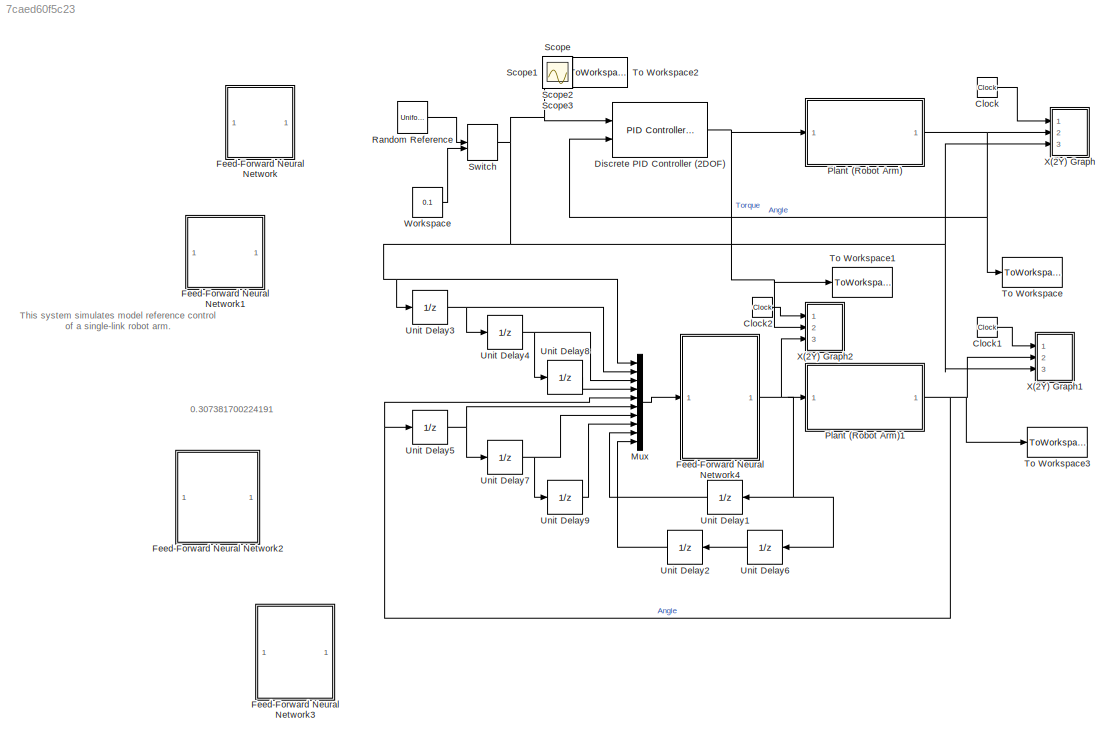
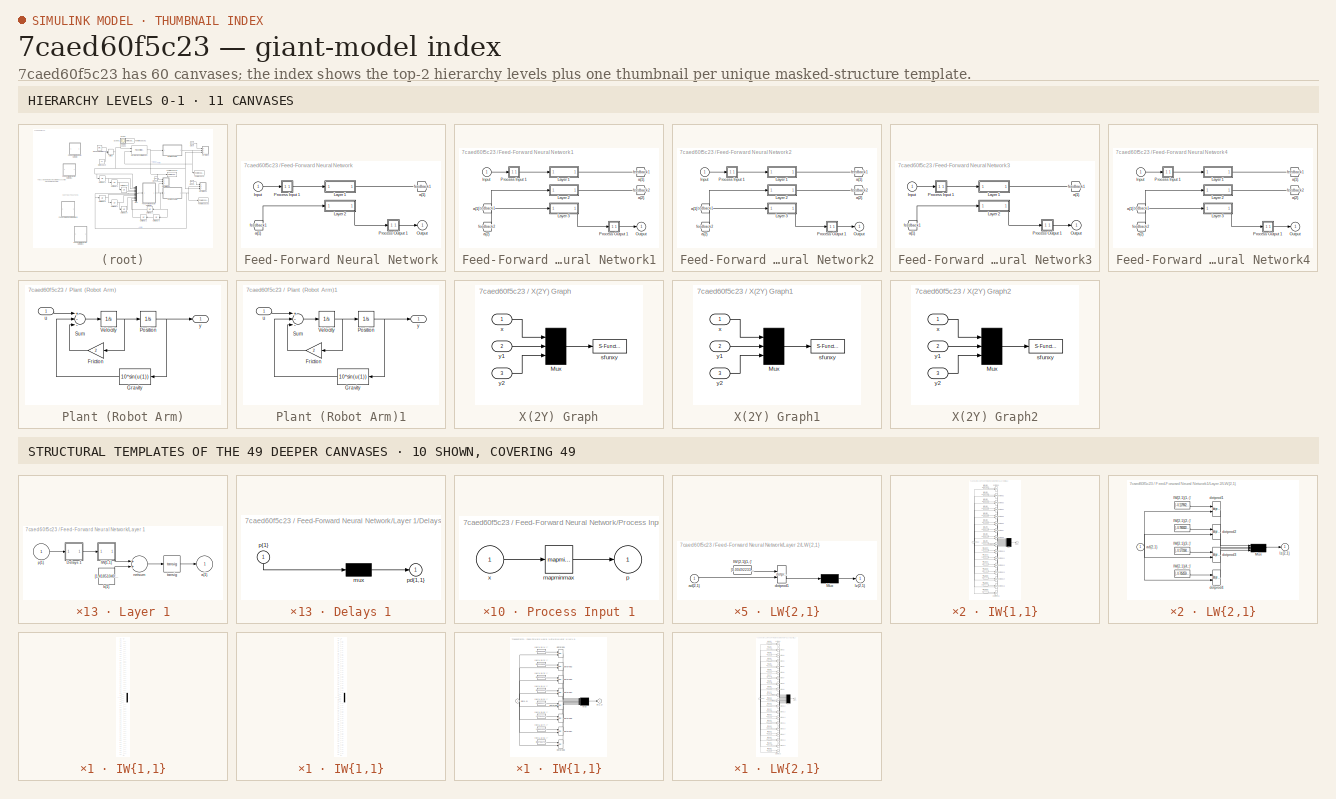
[diagram: thumbnail index - top-2 hierarchy levels (11 canvases) + 10 structural-template representatives of the remaining 49 canvases]
MODEL slx_7caed60f5c23
KIND model
CONFIG AbsTol = 1e-6
CONFIG EnableMultiTasking = off
CONFIG FixedStep = auto
CONFIG MaxStep = auto
CONFIG MinStep = auto
CONFIG RelTol = 1e-3
CONFIG SampleTimeConstraint = Unconstrained
CONFIG Solver = FixedStepAuto
CONFIG SolverName = FixedStepAuto
CONFIG StartTime = 0.0
CONFIG StopTime = 60
BLOCK [Clock] Clock
BLOCK [Clock] Clock1
BLOCK [Clock] Clock2
BLOCK [Reference] Discrete PID Controller (2DOF)  REF=simulink/Continuous/PID Controller (2DOF)
  Ports = [2, 1]
  SourceBlock = simulink/Continuous/PID Controller (2DOF)
  SourceProductBaseCode = SL
  SourceProductName = Simulink
  SourceType = PID 2dof
BLOCK [SubSystem] Feed-Forward Neural Network
  Ports = [1, 1]
  RequestExecContextInheritance = off
BLOCK [From] Feed-Forward Neural Network/ a{1} 
  GotoTag = feedback1
BLOCK [Inport] Feed-Forward Neural Network/Input
  IconDisplay = Port number
  PortDimensions = 8
BLOCK [SubSystem] Feed-Forward Neural Network/Layer 1
  Ports = [1, 1]
  RequestExecContextInheritance = off
BLOCK [SubSystem] Feed-Forward Neural Network/Layer 1/Delays 1
  Ports = [1, 1]
  RequestExecContextInheritance = off
BLOCK [Mux] Feed-Forward Neural Network/Layer 1/Delays 1/mux
  Inputs = 1
  Ports = [1, 1]
BLOCK [Outport] Feed-Forward Neural Network/Layer 1/Delays 1/pd{1,1}
  IconDisplay = Port number
BLOCK [Inport] Feed-Forward Neural Network/Layer 1/Delays 1/p{1}
  IconDisplay = Port number
  PortDimensions = 8
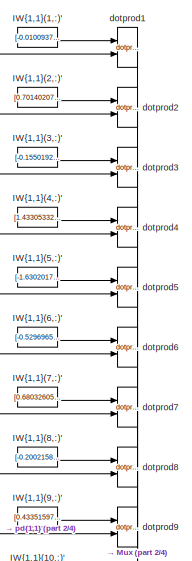
[diagram: Feed-Forward Neural Network/Layer 1/IW{1,1} - part 1/4, top center region]
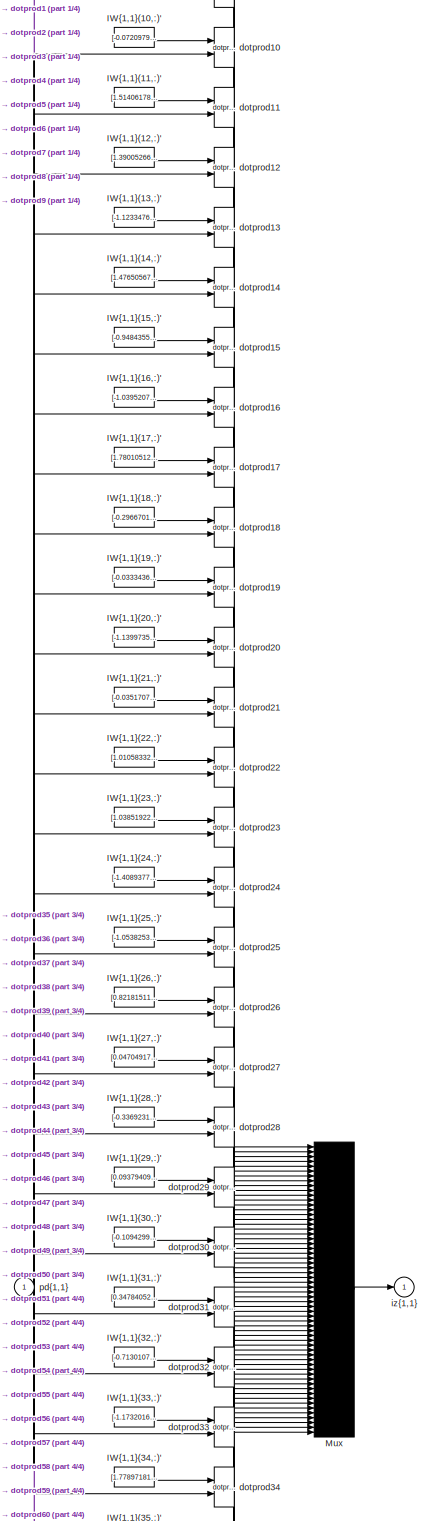
[diagram: Feed-Forward Neural Network/Layer 1/IW{1,1} - part 2/4, full width, middle band]
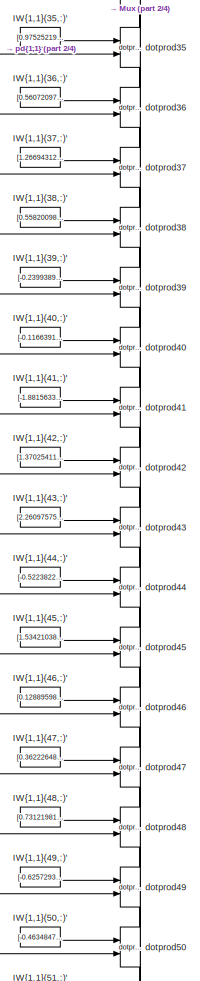
[diagram: Feed-Forward Neural Network/Layer 1/IW{1,1} - part 3/4, bottom center region]
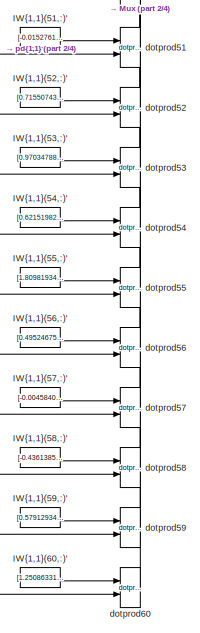
[diagram: Feed-Forward Neural Network/Layer 1/IW{1,1} - part 4/4, bottom center region]
BLOCK [SubSystem] Feed-Forward Neural Network/Layer 1/IW{1,1}
  Ports = [1, 1]
  RequestExecContextInheritance = off
BLOCK [Constant] Feed-Forward Neural Network/Layer 1/IW{1,1}/IW{1,1}(1,:)'
  Value = [-0.01009377639347205403430596248881556675769388675689697265625;-0.81917856322471305219323767232708632946014404296875;-1.0919884952677578748847508904873393476009368896484375;-0.3232934690770914443191941245459020137786865234375;1.0371983069879358030362936915480531752109527587890625;0.332566501638959455267041676052031107246875762939453125;-0.72214891052584950781323414048529230058193206787109375;0.41...<+52ch>
BLOCK [Constant] Feed-Forward Neural Network/Layer 1/IW{1,1}/IW{1,1}(10,:)'
  Value = [-0.0720979947310176616515065006751683540642261505126953125;1.1315755262161395489073356657172553241252899169921875;-0.69309946443650216618692638803622685372829437255859375;-0.1580631105350375487095249127378338016569614410400390625;-0.70708492198913841519924972089938819408416748046875;-0.9763414859311836391242422905634157359600067138671875;0.56334312317556867188983460437157191336154937744140625;-0....<+55ch>
BLOCK [Constant] Feed-Forward Neural Network/Layer 1/IW{1,1}/IW{1,1}(11,:)'
  Value = [1.514061787956713533986885522608645260334014892578125;-0.41268670620541703097927666021860204637050628662109375;-0.133355521691774558945553508237935602664947509765625;1.4642596982166242725043048267252743244171142578125;-0.92497175926368180309822264462127350270748138427734375;-0.0687966183859873847694643700378946959972381591796875;0.715766413497218589867543414584361016750335693359375;0.297493027725...<+41ch>
BLOCK [Constant] Feed-Forward Neural Network/Layer 1/IW{1,1}/IW{1,1}(12,:)'
  Value = [1.390052669090437120757997035980224609375;0.002873883030498494174642676313169431523419916629791259765625;-0.265197877421132155451033440840546973049640655517578125;-0.2012360557710944630738225669119856320321559906005859375;-0.73320460680185417512433332376531325280666351318359375;-0.0226500905621143909518533376967752701602876186370849609375;-0.0570080624637873747961869241862586932256817817687988281...<+50ch>
BLOCK [Constant] Feed-Forward Neural Network/Layer 1/IW{1,1}/IW{1,1}(13,:)'
  Value = [-1.1233476979256022953990168389282189309597015380859375;-1.2393693114673052235730210668407380580902099609375;0.7914246902064994149128551725880242884159088134765625;-0.274134462483511198716001899811089970171451568603515625;-0.7315570973101059859544648134033195674419403076171875;0.428567667581298328283168075358844362199306488037109375;1.018170137932393526369878600235097110271453857421875;0.49897495...<+46ch>
BLOCK [Constant] Feed-Forward Neural Network/Layer 1/IW{1,1}/IW{1,1}(14,:)'
  Value = [1.4765056748086795579411045764572918415069580078125;-0.90659967261472174104852683740318752825260162353515625;1.1508044721540480193056055213673971593379974365234375;-1.0136176640992273778607568601728416979312896728515625;-0.07767755483619455392219066425241180695593357086181640625;0.57299887905671254006989556728512980043888092041015625;0.449131233253424244633578155116993002593517303466796875;0.1613...<+52ch>
BLOCK [Constant] Feed-Forward Neural Network/Layer 1/IW{1,1}/IW{1,1}(15,:)'
  Value = [-0.94843552007180209617587252068915404379367828369140625;-0.455396495188023886502293180456035770475864410400390625;-0.71794256963177804919951086048968136310577392578125;-0.259356227336552891404863885327358730137348175048828125;-0.6977913420825629930988043270190246403217315673828125;1.4367856825259675002115500319632701575756072998046875;0.38097748667274744516220152945606969296932220458984375;-1.23...<+48ch>
BLOCK [Constant] Feed-Forward Neural Network/Layer 1/IW{1,1}/IW{1,1}(16,:)'
  Value = [-1.03952079910626782321969585609622299671173095703125;0.274781364075693590454108061749138869345188140869140625;-1.0171273753363585523601386739755980670452117919921875;-0.03878824548100874569644958000935730524361133575439453125;0.193393524233432978487456921357079409062862396240234375;0.832640986442755082208577732671983540058135986328125;-0.7503621573611758410748961978242732584476470947265625;-1.01...<+49ch>
BLOCK [Constant] Feed-Forward Neural Network/Layer 1/IW{1,1}/IW{1,1}(17,:)'
  Value = [1.7801051226057931220481123091303743422031402587890625;1.3780535999959975246298427009605802595615386962890625;0.1885363073008298473443034026786335743963718414306640625;0.365832667926227206312006501320865936577320098876953125;0.6397823368767736607054530395544134080410003662109375;0.379418365358508646867363722776644863188266754150390625;-0.26533033038375464229829958640038967132568359375;0.307523613...<+45ch>
BLOCK [Constant] Feed-Forward Neural Network/Layer 1/IW{1,1}/IW{1,1}(18,:)'
  Value = [-0.296670185432604427422376147660543210804462432861328125;-0.376072809350395387273380265469313599169254302978515625;-0.742727493493180901396044646389782428741455078125;0.86593116784423240783752362403902225196361541748046875;1.37064929615764707904190800036303699016571044921875;-0.59077170502804399188079287341679446399211883544921875;-0.150853642388064368429212436240050010383129119873046875;-0.8145...<+50ch>
BLOCK [Constant] Feed-Forward Neural Network/Layer 1/IW{1,1}/IW{1,1}(19,:)'
  Value = [-0.033343686056520986660256511413535918109118938446044921875;-0.5300304829595254840768348003621213138103485107421875;-0.66380007316216460555580169966560788452625274658203125;1.4047136071211827612614797544665634632110595703125;-1.4498046029545166302199277197360061109066009521484375;0.60291678893256517302035035754670388996601104736328125;-0.08866355731311535703920156947788200341165065765380859375;-...<+55ch>
BLOCK [Constant] Feed-Forward Neural Network/Layer 1/IW{1,1}/IW{1,1}(2,:)'
  Value = [0.70140207504615859068763938921620137989521026611328125;0.50190548995443251545367502330918796360492706298828125;1.178018179952304844704258357523940503597259521484375;1.2397835887663470888497840860509313642978668212890625;1.2796434023332323715038683076272718608379364013671875;-0.91185964599935942498376562070916406810283660888671875;-0.53150803539821700471890153494314290583133697509765625;0.6056446...<+47ch>
BLOCK [Constant] Feed-Forward Neural Network/Layer 1/IW{1,1}/IW{1,1}(20,:)'
  Value = [-1.139973592271053437485761605785228312015533447265625;0.922414963173714408384284979547373950481414794921875;0.573062580631909401773782519740052521228790283203125;-1.0638984585657997872232272129622288048267364501953125;0.26000003990170894585531868870020844042301177978515625;-1.0082968466580883859506911903736181557178497314453125;-0.427975846736409037962545198752195574343204498291015625;-0.4045240...<+48ch>
BLOCK [Constant] Feed-Forward Neural Network/Layer 1/IW{1,1}/IW{1,1}(21,:)'
  Value = [-0.035170709953433833272473663100754492916166782379150390625;-0.2048825226713566205472005776755395345389842987060546875;1.02054460527438362049679199117235839366912841796875;-1.0483393952073327692886550721595995128154754638671875;0.218116613354659649726130510316579602658748626708984375;-1.2810290950311611357648189368774183094501495361328125;0.9860421910966181702207222770084626972675323486328125;-0...<+55ch>
BLOCK [Constant] Feed-Forward Neural Network/Layer 1/IW{1,1}/IW{1,1}(22,:)'
  Value = [1.010583326137901583052780551952309906482696533203125;-0.34255096084721647908821751116192899644374847412109375;0.49744289643764882935528248708578757941722869873046875;0.81639407608297276386366547740180976688861846923828125;0.268321118702407546141586180965532548725605010986328125;-1.0453340103508159675271826927200891077518463134765625;1.0355195133497721027282523209578357636928558349609375;-0.53749...<+49ch>
BLOCK [Constant] Feed-Forward Neural Network/Layer 1/IW{1,1}/IW{1,1}(23,:)'
  Value = [1.038519220380671459480481644277460873126983642578125;0.833366743499137196948822747799567878246307373046875;1.2577080160119058493961574640707112848758697509765625;-0.401936187267794731159398224917822517454624176025390625;0.04902228607691017092662377763190306723117828369140625;-0.54247854896119485079708510966156609356403350830078125;-1.039179720087923808335972353233955800533294677734375;-0.5448646...<+46ch>
BLOCK [Constant] Feed-Forward Neural Network/Layer 1/IW{1,1}/IW{1,1}(24,:)'
  Value = [-1.4089377227153281335603196566808037459850311279296875;0.77299854810514367908780286597902886569499969482421875;0.309547994905805035070756048298790119588375091552734375;-0.279630711329400372111564365695812739431858062744140625;-1.453337035422787248961640216293744742870330810546875;0.139437025698908978466050712086143903434276580810546875;-0.56209102683994849325443965426529757678508758544921875;0.5...<+53ch>
BLOCK [Constant] Feed-Forward Neural Network/Layer 1/IW{1,1}/IW{1,1}(25,:)'
  Value = [-1.053825329600287741271813501953147351741790771484375;2.104248436455582460524738053209148347377777099609375;-1.389722016511392599369401068543083965778350830078125;0.70194513487137377705238350245053879916667938232421875;0.016033632287981595954118319014014559797942638397216796875;0.726493334124701295451131954905577003955841064453125;-0.138938571659139586955689082969911396503448486328125;0.48164231...<+46ch>
BLOCK [Constant] Feed-Forward Neural Network/Layer 1/IW{1,1}/IW{1,1}(26,:)'
  Value = [0.8218151121617001120256418289500288665294647216796875;1.237877827933333119148073819815181195735931396484375;0.578162601622759897423975417041219770908355712890625;-0.90524346095929486555320409024716354906558990478515625;-0.557227828939628633264646850875578820705413818359375;0.693063774200946891568264618399553000926971435546875;0.848423865073127725366930462769232690334320068359375;-0.7998183010585...<+40ch>
BLOCK [Constant] Feed-Forward Neural Network/Layer 1/IW{1,1}/IW{1,1}(27,:)'
  Value = [0.047049177951239286310514131628224276937544345855712890625;-0.491975786566918704689754804348922334611415863037109375;1.2519795722981628127712383502512238919734954833984375;-0.54908256817673317673467181521118618547916412353515625;-0.65890045944206165895451476899324916303157806396484375;-0.2162576647712697586189989351623808033764362335205078125;-0.09278042821038166854119566551162279210984706878662...<+64ch>
BLOCK [Constant] Feed-Forward Neural Network/Layer 1/IW{1,1}/IW{1,1}(28,:)'
  Value = [-0.3369231785042738902546943791094236075878143310546875;-0.181984775034675860805322145097306929528713226318359375;0.72097050985835930969614082641783170402050018310546875;0.389238215915795715549307942637824453413486480712890625;1.1885279226217166925749779693433083593845367431640625;-0.2162301922323874026066192755024530924856662750244140625;-0.55743284950293936486076518121990375220775604248046875;1...<+54ch>
BLOCK [Constant] Feed-Forward Neural Network/Layer 1/IW{1,1}/IW{1,1}(29,:)'
  Value = [0.09379409266803222233743753122325870208442211151123046875;0.8258233160961461205573641564114950597286224365234375;1.3081801207924230734391812802641652524471282958984375;0.1938697051900289125558884961719741113483905792236328125;0.573395538471701993188389678834937512874603271484375;-0.7356971128263525283585977376787923276424407958984375;0.182430235492571923838767133929650299251079559326171875;-1.25...<+49ch>
BLOCK [Constant] Feed-Forward Neural Network/Layer 1/IW{1,1}/IW{1,1}(3,:)'
  Value = [-0.1550192714260813786619763732232968322932720184326171875;0.267682004821501784430637371769989840686321258544921875;0.8213433311036910655644760481663979589939117431640625;0.2482384568506261768305876103113405406475067138671875;-0.61724220880742508565930393160670064389705657958984375;-0.79902255865863003325699764900491572916507720947265625;1.29132611134465502544799164752475917339324951171875;0.7532...<+49ch>
BLOCK [Constant] Feed-Forward Neural Network/Layer 1/IW{1,1}/IW{1,1}(30,:)'
  Value = [-0.10942991742337003502338887983569293282926082611083984375;-0.96617865662847624008691127528436481952667236328125;1.22815391380386440545180448680184781551361083984375;0.9209715069928978703472921552020125091075897216796875;-0.87794222936966936909897185614681802690029144287109375;0.58692975040539197006950189461349509656429290771484375;0.03017362296723884174109997502455371432006359100341796875;-0.90...<+52ch>
BLOCK [Constant] Feed-Forward Neural Network/Layer 1/IW{1,1}/IW{1,1}(31,:)'
  Value = [0.34784052246623431425831540764193050563335418701171875;0.7424319382244732867803804765571840107440948486328125;0.89792498586287472495115480342064984142780303955078125;1.099066964391795409028418362140655517578125;0.00058579181141991433501292618757361196912825107574462890625;-0.89695655979727340056939510759548284113407135009765625;1.25394388993594230186090499046258628368377685546875;0.9063532210672...<+41ch>
BLOCK [Constant] Feed-Forward Neural Network/Layer 1/IW{1,1}/IW{1,1}(32,:)'
  Value = [-0.71301072547602017959178510864148847758769989013671875;0.5241561595862809230794709947076626121997833251953125;0.3885115679967781066039833604008890688419342041015625;-0.69944953560710987350290679387398995459079742431640625;1.2447082577953547666282929640146903693675994873046875;0.3781402687772514870090390104451216757297515869140625;-1.0318004731634136117435218693572096526622772216796875;0.9363806...<+42ch>
BLOCK [Constant] Feed-Forward Neural Network/Layer 1/IW{1,1}/IW{1,1}(33,:)'
  Value = [-1.1732016294754872287597891045152209699153900146484375;-0.422969128171088615264494592338451184332370758056640625;0.54255586269967881474229898230987600982189178466796875;-0.73308841281237679954330133114126510918140411376953125;-0.97167834539178798980429974108119495213031768798828125;-1.202198002474001103934142520301975309848785400390625;-0.348202785759618882455157518052146770060062408447265625;-1...<+53ch>
BLOCK [Constant] Feed-Forward Neural Network/Layer 1/IW{1,1}/IW{1,1}(34,:)'
  Value = [1.77897181715445906746708715218119323253631591796875;-0.280453940129275436365929863313795067369937896728515625;0.367343171050295402846330716783995740115642547607421875;-1.008703116569453772655151624348945915699005126953125;0.2803758972512444547220411550370045006275177001953125;0.74306829139624663849161834150436334311962127685546875;-0.279494497759325277730368952688877470791339874267578125;0.98768...<+49ch>
BLOCK [Constant] Feed-Forward Neural Network/Layer 1/IW{1,1}/IW{1,1}(35,:)'
  Value = [0.97525219567861320957291582089965231716632843017578125;0.88646219952508398254309440744691528379917144775390625;-1.730996619538126335413608103408478200435638427734375;0.0396632946371748007496904619983979500830173492431640625;-0.409742039261921764392582190339453518390655517578125;-0.3665493088119438080951795200235210359096527099609375;1.41189287226400050911934158648364245891571044921875;0.06954074...<+48ch>
BLOCK [Constant] Feed-Forward Neural Network/Layer 1/IW{1,1}/IW{1,1}(36,:)'
  Value = [0.56072097014748345511492289006127975881099700927734375;-0.469901980631740989746703007767791859805583953857421875;0.6628153017091324983312006224878132343292236328125;0.7677647851080724450412162696011364459991455078125;-1.5570532384978843509770740638487040996551513671875;0.55547680871442739469756588732707314193248748779296875;0.399763330482430456758180525866919197142124176025390625;-0.601408206775...<+42ch>
BLOCK [Constant] Feed-Forward Neural Network/Layer 1/IW{1,1}/IW{1,1}(37,:)'
  Value = [1.2669431239388433407810907738166861236095428466796875;0.84499757606978864732383271984872408211231231689453125;-0.6865178873488713140460504291695542633533477783203125;0.86809844202686192726758918070117942988872528076171875;0.8608914789270685208322220205445773899555206298828125;1.177957103666323224189227403257973492145538330078125;-0.0379420015788152209523786950740031898021697998046875;-1.07598569...<+44ch>
BLOCK [Constant] Feed-Forward Neural Network/Layer 1/IW{1,1}/IW{1,1}(38,:)'
  Value = [0.55820098541315044116117860539816319942474365234375;0.79054831004162406937751939040026627480983734130859375;-0.8874852575703595647382826427929103374481201171875;-1.09062952986268868471597670577466487884521484375;-0.45622805513097752783124860798125155270099639892578125;-0.37040001200239436318639718592748977243900299072265625;-1.189528150446891974212348941364325582981109619140625;-1.11651607135004...<+38ch>
BLOCK [Constant] Feed-Forward Neural Network/Layer 1/IW{1,1}/IW{1,1}(39,:)'
  Value = [-0.2399389096781732455543334481262718327343463897705078125;1.3447224058359446008381610226933844387531280517578125;-1.38142976173474618661884960602037608623504638671875;0.474640863170868343434705138861318118870258331298828125;-0.1470266327579221321553148982275160960853099822998046875;-0.67018418152759551276176352985203266143798828125;-0.59239089958121649015510001845541410148143768310546875;0.13713...<+51ch>
BLOCK [Constant] Feed-Forward Neural Network/Layer 1/IW{1,1}/IW{1,1}(4,:)'
  Value = [1.4330533222863213183018160634674131870269775390625;-0.09029904425561195713267892415387905202805995941162109375;-0.1378620578092981940887540304174763150513172149658203125;-0.128678062876721510665589676136733032763004302978515625;0.700090148025589886771058445447124540805816650390625;0.59531505529047235025785766993067227303981781005859375;-0.08226765583024404915324367948414874263107776641845703125;...<+54ch>
BLOCK [Constant] Feed-Forward Neural Network/Layer 1/IW{1,1}/IW{1,1}(40,:)'
  Value = [-0.1166391943536552455729093935588025487959384918212890625;1.3594486796418383534046370186842978000640869140625;0.57698100738084712180153701410745270550251007080078125;-0.059919148073443929958248332923176349140703678131103515625;-0.789043368311738380072029030998237431049346923828125;-0.86628954342663500032273304896079935133457183837890625;0.14402892035788161795295536649064160883426666259765625;-0....<+52ch>
BLOCK [Constant] Feed-Forward Neural Network/Layer 1/IW{1,1}/IW{1,1}(41,:)'
  Value = [-1.881563343058816339947725282399915158748626708984375;0.9950257472784775902852061335579492151737213134765625;0.93709934505314451680391130139469169080257415771484375;-0.7473708296793655225798147512250579893589019775390625;-0.454191669232585137905289229820482432842254638671875;0.31070247408903550745407073918613605201244354248046875;-0.177938424903270664412247015206958167254924774169921875;-0.92376...<+48ch>
BLOCK [Constant] Feed-Forward Neural Network/Layer 1/IW{1,1}/IW{1,1}(42,:)'
  Value = [1.3702541153334115708872786854044534265995025634765625;-0.1156131328774818722848749530385248363018035888671875;0.614274810825514716583484187140129506587982177734375;0.318766942419542453901470935306861065328121185302734375;1.2991946873100921333588075867737643420696258544921875;-0.5215118465581591866708777160965837538242340087890625;0.565289984710197312978152694995515048503875732421875;0.9677004451...<+43ch>
BLOCK [Constant] Feed-Forward Neural Network/Layer 1/IW{1,1}/IW{1,1}(43,:)'
  Value = [2.260975757154053855657593885553069412708282470703125;-2.1510199031089261012539282091893255710601806640625;-0.077576990798844891461527595311054028570652008056640625;-0.4821861293228300038293809848255477845668792724609375;-0.365668656400341240964024791537667624652385711669921875;0.13451908107684185100794138634228147566318511962890625;0.232971221479439716262049842043779790401458740234375;-0.5691263...<+47ch>
BLOCK [Constant] Feed-Forward Neural Network/Layer 1/IW{1,1}/IW{1,1}(44,:)'
  Value = [-0.5223822035888729953256870430777780711650848388671875;-0.419199451858211669108555952334427274763584136962890625;0.312152287994981680885331343233701772987842559814453125;-0.39644961503704989613794396063894964754581451416015625;0.10427136538485380634622146089895977638661861419677734375;0.308491948074407051905154730775393545627593994140625;1.304266392973596477844466789974831044673919677734375;1.16...<+51ch>
BLOCK [Constant] Feed-Forward Neural Network/Layer 1/IW{1,1}/IW{1,1}(45,:)'
  Value = [1.534210386911081247518495729309506714344024658203125;-0.36943060246236936183805710243177600204944610595703125;-1.3810021468498721031181730722892098128795623779296875;1.937610501525079076401425481890328228473663330078125;-0.091496085529782889000927070810575969517230987548828125;-1.093079792816382678211084567010402679443359375;1.0732569773862798978569799146498553454875946044921875;-0.4018978359165...<+42ch>
BLOCK [Constant] Feed-Forward Neural Network/Layer 1/IW{1,1}/IW{1,1}(46,:)'
  Value = [0.1288959873434139813408449981579906307160854339599609375;-0.416959915904302536038272819496341980993747711181640625;0.5385013722251594803225316354655660688877105712890625;0.465201886438678935409285486457520164549350738525390625;-1.7869468184748829031605055206455290317535400390625;0.1867918035887883021484157097802381031215190887451171875;-0.5808952579994126619311600734363310039043426513671875;0.56...<+50ch>
BLOCK [Constant] Feed-Forward Neural Network/Layer 1/IW{1,1}/IW{1,1}(47,:)'
  Value = [0.36222648884403507718587889030459336936473846435546875;0.5520284332054365972197729206527583301067352294921875;-0.91340259002056656267853895769803784787654876708984375;-0.573216288087723402355777579941786825656890869140625;0.538586801260685366088409864460118114948272705078125;0.990522257548015705452826296095736324787139892578125;0.938203517005444798115831872564740478992462158203125;-0.67821259752...<+40ch>
BLOCK [Constant] Feed-Forward Neural Network/Layer 1/IW{1,1}/IW{1,1}(48,:)'
  Value = [0.73121981685810177875595172736211679875850677490234375;-0.274634926975565518691979605137021280825138092041015625;0.2147850429710086161971815954530029557645320892333984375;-0.390024797666452760491750950677669607102870941162109375;-1.0355270645634295778592104397830553352832794189453125;-1.2024609516377349205384916785988025367259979248046875;0.57731260016769481158149801558465696871280670166015625;1...<+53ch>
BLOCK [Constant] Feed-Forward Neural Network/Layer 1/IW{1,1}/IW{1,1}(49,:)'
  Value = [-0.62572930376387103645896559100947342813014984130859375;0.192305525516508091232736887832288630306720733642578125;0.29223319201677699918917596733081154525279998779296875;1.10515799470984266150708208442665636539459228515625;1.10419541007198862558880136930383741855621337890625;-0.362041175320139851923073592843138612806797027587890625;0.41853513630726524308300895427237264811992645263671875;-0.936345...<+48ch>
BLOCK [Constant] Feed-Forward Neural Network/Layer 1/IW{1,1}/IW{1,1}(5,:)'
  Value = [-1.6302017691206389660152353826561011373996734619140625;1.1658952120583834233258357926388271152973175048828125;0.328612534194750782745586548116989433765411376953125;0.057148484511901853633020209599635563790798187255859375;0.10199858774596597121853136513891513459384441375732421875;0.293689141264276809550892721745185554027557373046875;1.3574046633455922883371158604859374463558197021484375;0.5258140...<+47ch>
BLOCK [Constant] Feed-Forward Neural Network/Layer 1/IW{1,1}/IW{1,1}(50,:)'
  Value = [-0.46348471342679520290630534873344004154205322265625;0.144395497249082682689191869940259493887424468994140625;1.569600753927898661999051910242997109889984130859375;0.65189807807301225484053475156542845070362091064453125;1.799031349010675739918951876461505889892578125;0.08719481745500716474150948442911612801253795623779296875;0.38665738953421990853343004346243105828762054443359375;-1.077509303278...<+41ch>
BLOCK [Constant] Feed-Forward Neural Network/Layer 1/IW{1,1}/IW{1,1}(51,:)'
  Value = [-0.01527615504234090641755283712655000272206962108612060546875;0.88697721456426370512104995214031077921390533447265625;1.2210882097999109507924231365905143320560455322265625;0.498960703809830319332974113422096706926822662353515625;-1.3793098432327204339031823110417462885379791259765625;-1.1688876275862101206115539753227494657039642333984375;1.325778450150171039467750233598053455352783203125;0.069...<+54ch>
BLOCK [Constant] Feed-Forward Neural Network/Layer 1/IW{1,1}/IW{1,1}(52,:)'
  Value = [0.71550743237089575732312596301198936998844146728515625;-0.865346361151677623269051764509640634059906005859375;1.0974425824873133006320813365164212882518768310546875;0.5965439665360026122442604901152662932872772216796875;-1.010921177194115561093212818377651274204254150390625;-1.0352934979927310710223764544934965670108795166015625;-0.7936580582601122646480007460922934114933013916015625;-0.41136473...<+47ch>
BLOCK [Constant] Feed-Forward Neural Network/Layer 1/IW{1,1}/IW{1,1}(53,:)'
  Value = [0.970347886213300814262083804351277649402618408203125;1.3880928056877552823067389908828772604465484619140625;-0.220359308736878034551409655250608921051025390625;-0.2412131590352391274922894126575556583702564239501953125;-0.56985902808800192875793300117948092520236968994140625;0.40130853779968267414091087630367837846279144287109375;1.2578910474645230710422083575394935905933380126953125;-0.25411460...<+46ch>
BLOCK [Constant] Feed-Forward Neural Network/Layer 1/IW{1,1}/IW{1,1}(54,:)'
  Value = [0.6215198279374003487163236059132032096385955810546875;-1.629635888729266124386185765615664422512054443359375;0.189813216192437350660071615493507124483585357666015625;-0.06836090554733383062302465305037912912666797637939453125;0.35274989034390691333697986920014955103397369384765625;-0.475842857556607101710000051753013394773006439208984375;0.597827506479405190731313268770463764667510986328125;0.24...<+53ch>
BLOCK [Constant] Feed-Forward Neural Network/Layer 1/IW{1,1}/IW{1,1}(55,:)'
  Value = [1.8098193413499281678724628363852389156818389892578125;-0.09592364790899783610900186658909660764038562774658203125;-1.1330799946994758453655549601535312831401824951171875;0.5919175716670486142589879818842746317386627197265625;-1.044925954678059820679436597856692969799041748046875;-0.3521206025328933453266699871164746582508087158203125;-0.231675457456909816844614624642417766153812408447265625;-0.5...<+50ch>
BLOCK [Constant] Feed-Forward Neural Network/Layer 1/IW{1,1}/IW{1,1}(56,:)'
  Value = [0.49524675244069238377875308287912048399448394775390625;-0.32085303463104819510220977463177405297756195068359375;1.5868530634614510521629426875733770430088043212890625;0.07934255612787487199621949685024446807801723480224609375;-0.049147746670952723035963316533525357954204082489013671875;-0.167621864207881554609258500931900925934314727783203125;-0.10239989093653291407637340171277173794806003570556...<+63ch>
BLOCK [Constant] Feed-Forward Neural Network/Layer 1/IW{1,1}/IW{1,1}(57,:)'
  Value = [-0.004584091751976726754336244340493067284114658832550048828125;0.57095023784875997829857396936859004199504852294921875;0.99630031803517249411328293717815540730953216552734375;-0.448051294260545851511068349282140843570232391357421875;-0.1349218039294430848684669399517588317394256591796875;0.0024354417994565317855115704759327854844741523265838623046875;-1.356980261976751478414371376857161521911621...<+61ch>
BLOCK [Constant] Feed-Forward Neural Network/Layer 1/IW{1,1}/IW{1,1}(58,:)'
  Value = [-0.43613854272731555905551203977665863931179046630859375;-0.259467967369604701755037012844695709645748138427734375;-0.2173661717909125268288761390067520551383495330810546875;1.3584206321968093078567108022980391979217529296875;-0.8707305475482562950872988949413411319255828857421875;1.0281351707122923233583833280135877430438995361328125;0.054981595812180726612350412096930085681378841400146484375;-1...<+54ch>
BLOCK [Constant] Feed-Forward Neural Network/Layer 1/IW{1,1}/IW{1,1}(59,:)'
  Value = [0.57912934968435758609217600678675808012485504150390625;-0.019169885476493231379890858079306781291961669921875;1.048224020115640531258804912795312702655792236328125;-1.07616784288998434959694350254721939563751220703125;1.053626695484267461466743043274618685245513916015625;-0.638475744430138991702960993279702961444854736328125;1.3358629448222665292433930517290718853473663330078125;0.32574941002756...<+41ch>
BLOCK [Constant] Feed-Forward Neural Network/Layer 1/IW{1,1}/IW{1,1}(6,:)'
  Value = [-0.5296965562707980357259884840459562838077545166015625;-0.38973649361983742078763270910712890326976776123046875;0.781382901275863961387813105829991400241851806640625;-1.8999187984653505001375606298097409307956695556640625;0.327049510341089810783188340792548842728137969970703125;0.97702923276992403867069469924899749457836151123046875;0.0751277132824597904114938273778534494340419769287109375;0.739...<+51ch>
BLOCK [Constant] Feed-Forward Neural Network/Layer 1/IW{1,1}/IW{1,1}(60,:)'
  Value = [1.2508633191597102740644231744226999580860137939453125;-1.02487913267402586114940277184359729290008544921875;0.483219843313159092001995986720430664718151092529296875;-0.046964282878300685208916576129922759719192981719970703125;-0.930479706035839182476365749607793986797332763671875;-0.82052825178220090140968068226356990635395050048828125;-0.2486035869029936395957491868102806620299816131591796875;0...<+55ch>
BLOCK [Constant] Feed-Forward Neural Network/Layer 1/IW{1,1}/IW{1,1}(7,:)'
  Value = [0.68032605516399258238635638917912729084491729736328125;-0.82607080608675909072502463459386490285396575927734375;0.57667091589975749688079531551920808851718902587890625;1.147983462953082511859292935696430504322052001953125;0.034658174975503421022526850947542698122560977935791015625;-0.26517017097192663310778470986406318843364715576171875;-1.271746072867304011566602639504708349704742431640625;-0.9...<+52ch>
BLOCK [Constant] Feed-Forward Neural Network/Layer 1/IW{1,1}/IW{1,1}(8,:)'
  Value = [-0.2002158985673191671228465793319628573954105377197265625;1.2512917023421910034386428378638811409473419189453125;-0.3086854689243434535228516324423253536224365234375;1.4460723698274182691392297783750109374523162841796875;-0.810958505206266888620803001685999333858489990234375;-0.63250653250160071561225549885421060025691986083984375;0.420108068424603187107635449137887917459011077880859375;-0.08649...<+52ch>
BLOCK [Constant] Feed-Forward Neural Network/Layer 1/IW{1,1}/IW{1,1}(9,:)'
  Value = [0.433515971015396128773744521822663955390453338623046875;0.7393100955140632368767228399519808590412139892578125;1.160413870956238380216518635279498994350433349609375;0.787274914069288289653059109696187078952789306640625;1.141160026323889464805461102514527738094329833984375;0.87966431079810314397349202408804558217525482177734375;-0.8784005081573618145540649493341334164142608642578125;0.42061155803...<+43ch>
BLOCK [Mux] Feed-Forward Neural Network/Layer 1/IW{1,1}/Mux
  Inputs = 60
  Ports = [60, 1]
BLOCK [Reference] Feed-Forward Neural Network/Layer 1/IW{1,1}/dotprod1  REF=neural/Weight Functions/dotprod
  Ports = [2, 1]
  SourceBlock = neural/Weight Functions/dotprod
  SourceProductBaseCode = NN
  SourceProductName = Neural Network Toolbox
  SourceType = DOTPROD
BLOCK [Reference] Feed-Forward Neural Network/Layer 1/IW{1,1}/dotprod10  REF=neural/Weight Functions/dotprod
  Ports = [2, 1]
  SourceBlock = neural/Weight Functions/dotprod
  SourceProductBaseCode = NN
  SourceProductName = Neural Network Toolbox
  SourceType = DOTPROD
BLOCK [Reference] Feed-Forward Neural Network/Layer 1/IW{1,1}/dotprod11  REF=neural/Weight Functions/dotprod
  Ports = [2, 1]
  SourceBlock = neural/Weight Functions/dotprod
  SourceProductBaseCode = NN
  SourceProductName = Neural Network Toolbox
  SourceType = DOTPROD
BLOCK [Reference] Feed-Forward Neural Network/Layer 1/IW{1,1}/dotprod12  REF=neural/Weight Functions/dotprod
  Ports = [2, 1]
  SourceBlock = neural/Weight Functions/dotprod
  SourceProductBaseCode = NN
  SourceProductName = Neural Network Toolbox
  SourceType = DOTPROD
BLOCK [Reference] Feed-Forward Neural Network/Layer 1/IW{1,1}/dotprod13  REF=neural/Weight Functions/dotprod
  Ports = [2, 1]
  SourceBlock = neural/Weight Functions/dotprod
  SourceProductBaseCode = NN
  SourceProductName = Neural Network Toolbox
  SourceType = DOTPROD
BLOCK [Reference] Feed-Forward Neural Network/Layer 1/IW{1,1}/dotprod14  REF=neural/Weight Functions/dotprod
  Ports = [2, 1]
  SourceBlock = neural/Weight Functions/dotprod
  SourceProductBaseCode = NN
  SourceProductName = Neural Network Toolbox
  SourceType = DOTPROD
BLOCK [Reference] Feed-Forward Neural Network/Layer 1/IW{1,1}/dotprod15  REF=neural/Weight Functions/dotprod
  Ports = [2, 1]
  SourceBlock = neural/Weight Functions/dotprod
  SourceProductBaseCode = NN
  SourceProductName = Neural Network Toolbox
  SourceType = DOTPROD
BLOCK [Reference] Feed-Forward Neural Network/Layer 1/IW{1,1}/dotprod16  REF=neural/Weight Functions/dotprod
  Ports = [2, 1]
  SourceBlock = neural/Weight Functions/dotprod
  SourceProductBaseCode = NN
  SourceProductName = Neural Network Toolbox
  SourceType = DOTPROD
BLOCK [Reference] Feed-Forward Neural Network/Layer 1/IW{1,1}/dotprod17  REF=neural/Weight Functions/dotprod
  Ports = [2, 1]
  SourceBlock = neural/Weight Functions/dotprod
  SourceProductBaseCode = NN
  SourceProductName = Neural Network Toolbox
  SourceType = DOTPROD
BLOCK [Reference] Feed-Forward Neural Network/Layer 1/IW{1,1}/dotprod18  REF=neural/Weight Functions/dotprod
  Ports = [2, 1]
  SourceBlock = neural/Weight Functions/dotprod
  SourceProductBaseCode = NN
  SourceProductName = Neural Network Toolbox
  SourceType = DOTPROD
BLOCK [Reference] Feed-Forward Neural Network/Layer 1/IW{1,1}/dotprod19  REF=neural/Weight Functions/dotprod
  Ports = [2, 1]
  SourceBlock = neural/Weight Functions/dotprod
  SourceProductBaseCode = NN
  SourceProductName = Neural Network Toolbox
  SourceType = DOTPROD
BLOCK [Reference] Feed-Forward Neural Network/Layer 1/IW{1,1}/dotprod2  REF=neural/Weight Functions/dotprod
  Ports = [2, 1]
  SourceBlock = neural/Weight Functions/dotprod
  SourceProductBaseCode = NN
  SourceProductName = Neural Network Toolbox
  SourceType = DOTPROD
BLOCK [Reference] Feed-Forward Neural Network/Layer 1/IW{1,1}/dotprod20  REF=neural/Weight Functions/dotprod
  Ports = [2, 1]
  SourceBlock = neural/Weight Functions/dotprod
  SourceProductBaseCode = NN
  SourceProductName = Neural Network Toolbox
  SourceType = DOTPROD
BLOCK [Reference] Feed-Forward Neural Network/Layer 1/IW{1,1}/dotprod21  REF=neural/Weight Functions/dotprod
  Ports = [2, 1]
  SourceBlock = neural/Weight Functions/dotprod
  SourceProductBaseCode = NN
  SourceProductName = Neural Network Toolbox
  SourceType = DOTPROD
BLOCK [Reference] Feed-Forward Neural Network/Layer 1/IW{1,1}/dotprod22  REF=neural/Weight Functions/dotprod
  Ports = [2, 1]
  SourceBlock = neural/Weight Functions/dotprod
  SourceProductBaseCode = NN
  SourceProductName = Neural Network Toolbox
  SourceType = DOTPROD
BLOCK [Reference] Feed-Forward Neural Network/Layer 1/IW{1,1}/dotprod23  REF=neural/Weight Functions/dotprod
  Ports = [2, 1]
  SourceBlock = neural/Weight Functions/dotprod
  SourceProductBaseCode = NN
  SourceProductName = Neural Network Toolbox
  SourceType = DOTPROD
BLOCK [Reference] Feed-Forward Neural Network/Layer 1/IW{1,1}/dotprod24  REF=neural/Weight Functions/dotprod
  Ports = [2, 1]
  SourceBlock = neural/Weight Functions/dotprod
  SourceProductBaseCode = NN
  SourceProductName = Neural Network Toolbox
  SourceType = DOTPROD
BLOCK [Reference] Feed-Forward Neural Network/Layer 1/IW{1,1}/dotprod25  REF=neural/Weight Functions/dotprod
  Ports = [2, 1]
  SourceBlock = neural/Weight Functions/dotprod
  SourceProductBaseCode = NN
  SourceProductName = Neural Network Toolbox
  SourceType = DOTPROD
BLOCK [Reference] Feed-Forward Neural Network/Layer 1/IW{1,1}/dotprod26  REF=neural/Weight Functions/dotprod
  Ports = [2, 1]
  SourceBlock = neural/Weight Functions/dotprod
  SourceProductBaseCode = NN
  SourceProductName = Neural Network Toolbox
  SourceType = DOTPROD
BLOCK [Reference] Feed-Forward Neural Network/Layer 1/IW{1,1}/dotprod27  REF=neural/Weight Functions/dotprod
  Ports = [2, 1]
  SourceBlock = neural/Weight Functions/dotprod
  SourceProductBaseCode = NN
  SourceProductName = Neural Network Toolbox
  SourceType = DOTPROD
BLOCK [Reference] Feed-Forward Neural Network/Layer 1/IW{1,1}/dotprod28  REF=neural/Weight Functions/dotprod
  Ports = [2, 1]
  SourceBlock = neural/Weight Functions/dotprod
  SourceProductBaseCode = NN
  SourceProductName = Neural Network Toolbox
  SourceType = DOTPROD
BLOCK [Reference] Feed-Forward Neural Network/Layer 1/IW{1,1}/dotprod29  REF=neural/Weight Functions/dotprod
  Ports = [2, 1]
  SourceBlock = neural/Weight Functions/dotprod
  SourceProductBaseCode = NN
  SourceProductName = Neural Network Toolbox
  SourceType = DOTPROD
BLOCK [Reference] Feed-Forward Neural Network/Layer 1/IW{1,1}/dotprod3  REF=neural/Weight Functions/dotprod
  Ports = [2, 1]
  SourceBlock = neural/Weight Functions/dotprod
  SourceProductBaseCode = NN
  SourceProductName = Neural Network Toolbox
  SourceType = DOTPROD
BLOCK [Reference] Feed-Forward Neural Network/Layer 1/IW{1,1}/dotprod30  REF=neural/Weight Functions/dotprod
  Ports = [2, 1]
  SourceBlock = neural/Weight Functions/dotprod
  SourceProductBaseCode = NN
  SourceProductName = Neural Network Toolbox
  SourceType = DOTPROD
BLOCK [Reference] Feed-Forward Neural Network/Layer 1/IW{1,1}/dotprod31  REF=neural/Weight Functions/dotprod
  Ports = [2, 1]
  SourceBlock = neural/Weight Functions/dotprod
  SourceProductBaseCode = NN
  SourceProductName = Neural Network Toolbox
  SourceType = DOTPROD
BLOCK [Reference] Feed-Forward Neural Network/Layer 1/IW{1,1}/dotprod32  REF=neural/Weight Functions/dotprod
  Ports = [2, 1]
  SourceBlock = neural/Weight Functions/dotprod
  SourceProductBaseCode = NN
  SourceProductName = Neural Network Toolbox
  SourceType = DOTPROD
BLOCK [Reference] Feed-Forward Neural Network/Layer 1/IW{1,1}/dotprod33  REF=neural/Weight Functions/dotprod
  Ports = [2, 1]
  SourceBlock = neural/Weight Functions/dotprod
  SourceProductBaseCode = NN
  SourceProductName = Neural Network Toolbox
  SourceType = DOTPROD
BLOCK [Reference] Feed-Forward Neural Network/Layer 1/IW{1,1}/dotprod34  REF=neural/Weight Functions/dotprod
  Ports = [2, 1]
  SourceBlock = neural/Weight Functions/dotprod
  SourceProductBaseCode = NN
  SourceProductName = Neural Network Toolbox
  SourceType = DOTPROD
BLOCK [Reference] Feed-Forward Neural Network/Layer 1/IW{1,1}/dotprod35  REF=neural/Weight Functions/dotprod
  Ports = [2, 1]
  SourceBlock = neural/Weight Functions/dotprod
  SourceProductBaseCode = NN
  SourceProductName = Neural Network Toolbox
  SourceType = DOTPROD
BLOCK [Reference] Feed-Forward Neural Network/Layer 1/IW{1,1}/dotprod36  REF=neural/Weight Functions/dotprod
  Ports = [2, 1]
  SourceBlock = neural/Weight Functions/dotprod
  SourceProductBaseCode = NN
  SourceProductName = Neural Network Toolbox
  SourceType = DOTPROD
BLOCK [Reference] Feed-Forward Neural Network/Layer 1/IW{1,1}/dotprod37  REF=neural/Weight Functions/dotprod
  Ports = [2, 1]
  SourceBlock = neural/Weight Functions/dotprod
  SourceProductBaseCode = NN
  SourceProductName = Neural Network Toolbox
  SourceType = DOTPROD
BLOCK [Reference] Feed-Forward Neural Network/Layer 1/IW{1,1}/dotprod38  REF=neural/Weight Functions/dotprod
  Ports = [2, 1]
  SourceBlock = neural/Weight Functions/dotprod
  SourceProductBaseCode = NN
  SourceProductName = Neural Network Toolbox
  SourceType = DOTPROD
BLOCK [Reference] Feed-Forward Neural Network/Layer 1/IW{1,1}/dotprod39  REF=neural/Weight Functions/dotprod
  Ports = [2, 1]
  SourceBlock = neural/Weight Functions/dotprod
  SourceProductBaseCode = NN
  SourceProductName = Neural Network Toolbox
  SourceType = DOTPROD
BLOCK [Reference] Feed-Forward Neural Network/Layer 1/IW{1,1}/dotprod4  REF=neural/Weight Functions/dotprod
  Ports = [2, 1]
  SourceBlock = neural/Weight Functions/dotprod
  SourceProductBaseCode = NN
  SourceProductName = Neural Network Toolbox
  SourceType = DOTPROD
BLOCK [Reference] Feed-Forward Neural Network/Layer 1/IW{1,1}/dotprod40  REF=neural/Weight Functions/dotprod
  Ports = [2, 1]
  SourceBlock = neural/Weight Functions/dotprod
  SourceProductBaseCode = NN
  SourceProductName = Neural Network Toolbox
  SourceType = DOTPROD
BLOCK [Reference] Feed-Forward Neural Network/Layer 1/IW{1,1}/dotprod41  REF=neural/Weight Functions/dotprod
  Ports = [2, 1]
  SourceBlock = neural/Weight Functions/dotprod
  SourceProductBaseCode = NN
  SourceProductName = Neural Network Toolbox
  SourceType = DOTPROD
BLOCK [Reference] Feed-Forward Neural Network/Layer 1/IW{1,1}/dotprod42  REF=neural/Weight Functions/dotprod
  Ports = [2, 1]
  SourceBlock = neural/Weight Functions/dotprod
  SourceProductBaseCode = NN
  SourceProductName = Neural Network Toolbox
  SourceType = DOTPROD
BLOCK [Reference] Feed-Forward Neural Network/Layer 1/IW{1,1}/dotprod43  REF=neural/Weight Functions/dotprod
  Ports = [2, 1]
  SourceBlock = neural/Weight Functions/dotprod
  SourceProductBaseCode = NN
  SourceProductName = Neural Network Toolbox
  SourceType = DOTPROD
BLOCK [Reference] Feed-Forward Neural Network/Layer 1/IW{1,1}/dotprod44  REF=neural/Weight Functions/dotprod
  Ports = [2, 1]
  SourceBlock = neural/Weight Functions/dotprod
  SourceProductBaseCode = NN
  SourceProductName = Neural Network Toolbox
  SourceType = DOTPROD
BLOCK [Reference] Feed-Forward Neural Network/Layer 1/IW{1,1}/dotprod45  REF=neural/Weight Functions/dotprod
  Ports = [2, 1]
  SourceBlock = neural/Weight Functions/dotprod
  SourceProductBaseCode = NN
  SourceProductName = Neural Network Toolbox
  SourceType = DOTPROD
BLOCK [Reference] Feed-Forward Neural Network/Layer 1/IW{1,1}/dotprod46  REF=neural/Weight Functions/dotprod
  Ports = [2, 1]
  SourceBlock = neural/Weight Functions/dotprod
  SourceProductBaseCode = NN
  SourceProductName = Neural Network Toolbox
  SourceType = DOTPROD
BLOCK [Reference] Feed-Forward Neural Network/Layer 1/IW{1,1}/dotprod47  REF=neural/Weight Functions/dotprod
  Ports = [2, 1]
  SourceBlock = neural/Weight Functions/dotprod
  SourceProductBaseCode = NN
  SourceProductName = Neural Network Toolbox
  SourceType = DOTPROD
BLOCK [Reference] Feed-Forward Neural Network/Layer 1/IW{1,1}/dotprod48  REF=neural/Weight Functions/dotprod
  Ports = [2, 1]
  SourceBlock = neural/Weight Functions/dotprod
  SourceProductBaseCode = NN
  SourceProductName = Neural Network Toolbox
  SourceType = DOTPROD
BLOCK [Reference] Feed-Forward Neural Network/Layer 1/IW{1,1}/dotprod49  REF=neural/Weight Functions/dotprod
  Ports = [2, 1]
  SourceBlock = neural/Weight Functions/dotprod
  SourceProductBaseCode = NN
  SourceProductName = Neural Network Toolbox
  SourceType = DOTPROD
BLOCK [Reference] Feed-Forward Neural Network/Layer 1/IW{1,1}/dotprod5  REF=neural/Weight Functions/dotprod
  Ports = [2, 1]
  SourceBlock = neural/Weight Functions/dotprod
  SourceProductBaseCode = NN
  SourceProductName = Neural Network Toolbox
  SourceType = DOTPROD
BLOCK [Reference] Feed-Forward Neural Network/Layer 1/IW{1,1}/dotprod50  REF=neural/Weight Functions/dotprod
  Ports = [2, 1]
  SourceBlock = neural/Weight Functions/dotprod
  SourceProductBaseCode = NN
  SourceProductName = Neural Network Toolbox
  SourceType = DOTPROD
BLOCK [Reference] Feed-Forward Neural Network/Layer 1/IW{1,1}/dotprod51  REF=neural/Weight Functions/dotprod
  Ports = [2, 1]
  SourceBlock = neural/Weight Functions/dotprod
  SourceProductBaseCode = NN
  SourceProductName = Neural Network Toolbox
  SourceType = DOTPROD
BLOCK [Reference] Feed-Forward Neural Network/Layer 1/IW{1,1}/dotprod52  REF=neural/Weight Functions/dotprod
  Ports = [2, 1]
  SourceBlock = neural/Weight Functions/dotprod
  SourceProductBaseCode = NN
  SourceProductName = Neural Network Toolbox
  SourceType = DOTPROD
BLOCK [Reference] Feed-Forward Neural Network/Layer 1/IW{1,1}/dotprod53  REF=neural/Weight Functions/dotprod
  Ports = [2, 1]
  SourceBlock = neural/Weight Functions/dotprod
  SourceProductBaseCode = NN
  SourceProductName = Neural Network Toolbox
  SourceType = DOTPROD
BLOCK [Reference] Feed-Forward Neural Network/Layer 1/IW{1,1}/dotprod54  REF=neural/Weight Functions/dotprod
  Ports = [2, 1]
  SourceBlock = neural/Weight Functions/dotprod
  SourceProductBaseCode = NN
  SourceProductName = Neural Network Toolbox
  SourceType = DOTPROD
BLOCK [Reference] Feed-Forward Neural Network/Layer 1/IW{1,1}/dotprod55  REF=neural/Weight Functions/dotprod
  Ports = [2, 1]
  SourceBlock = neural/Weight Functions/dotprod
  SourceProductBaseCode = NN
  SourceProductName = Neural Network Toolbox
  SourceType = DOTPROD
BLOCK [Reference] Feed-Forward Neural Network/Layer 1/IW{1,1}/dotprod56  REF=neural/Weight Functions/dotprod
  Ports = [2, 1]
  SourceBlock = neural/Weight Functions/dotprod
  SourceProductBaseCode = NN
  SourceProductName = Neural Network Toolbox
  SourceType = DOTPROD
BLOCK [Reference] Feed-Forward Neural Network/Layer 1/IW{1,1}/dotprod57  REF=neural/Weight Functions/dotprod
  Ports = [2, 1]
  SourceBlock = neural/Weight Functions/dotprod
  SourceProductBaseCode = NN
  SourceProductName = Neural Network Toolbox
  SourceType = DOTPROD
BLOCK [Reference] Feed-Forward Neural Network/Layer 1/IW{1,1}/dotprod58  REF=neural/Weight Functions/dotprod
  Ports = [2, 1]
  SourceBlock = neural/Weight Functions/dotprod
  SourceProductBaseCode = NN
  SourceProductName = Neural Network Toolbox
  SourceType = DOTPROD
BLOCK [Reference] Feed-Forward Neural Network/Layer 1/IW{1,1}/dotprod59  REF=neural/Weight Functions/dotprod
  Ports = [2, 1]
  SourceBlock = neural/Weight Functions/dotprod
  SourceProductBaseCode = NN
  SourceProductName = Neural Network Toolbox
  SourceType = DOTPROD
BLOCK [Reference] Feed-Forward Neural Network/Layer 1/IW{1,1}/dotprod6  REF=neural/Weight Functions/dotprod
  Ports = [2, 1]
  SourceBlock = neural/Weight Functions/dotprod
  SourceProductBaseCode = NN
  SourceProductName = Neural Network Toolbox
  SourceType = DOTPROD
BLOCK [Reference] Feed-Forward Neural Network/Layer 1/IW{1,1}/dotprod60  REF=neural/Weight Functions/dotprod
  Ports = [2, 1]
  SourceBlock = neural/Weight Functions/dotprod
  SourceProductBaseCode = NN
  SourceProductName = Neural Network Toolbox
  SourceType = DOTPROD
BLOCK [Reference] Feed-Forward Neural Network/Layer 1/IW{1,1}/dotprod7  REF=neural/Weight Functions/dotprod
  Ports = [2, 1]
  SourceBlock = neural/Weight Functions/dotprod
  SourceProductBaseCode = NN
  SourceProductName = Neural Network Toolbox
  SourceType = DOTPROD
BLOCK [Reference] Feed-Forward Neural Network/Layer 1/IW{1,1}/dotprod8  REF=neural/Weight Functions/dotprod
  Ports = [2, 1]
  SourceBlock = neural/Weight Functions/dotprod
  SourceProductBaseCode = NN
  SourceProductName = Neural Network Toolbox
  SourceType = DOTPROD
BLOCK [Reference] Feed-Forward Neural Network/Layer 1/IW{1,1}/dotprod9  REF=neural/Weight Functions/dotprod
  Ports = [2, 1]
  SourceBlock = neural/Weight Functions/dotprod
  SourceProductBaseCode = NN
  SourceProductName = Neural Network Toolbox
  SourceType = DOTPROD
BLOCK [Outport] Feed-Forward Neural Network/Layer 1/IW{1,1}/iz{1,1}
  IconDisplay = Port number
BLOCK [Inport] Feed-Forward Neural Network/Layer 1/IW{1,1}/pd{1,1}
  IconDisplay = Port number
  PortDimensions = 8
BLOCK [Outport] Feed-Forward Neural Network/Layer 1/a{1}
  IconDisplay = Port number
  InitialOutput = [0;0;0;0;0;0;0;0;0;0;0;0;0;0;0;0;0;0;0;0;0;0;0;0;0;0;0;0;0;0;0;0;0;0;0;0;0;0;0;0;0;0;0;0;0;0;0;0;0;0;0;0;0;0;0;0;0;0;0;0]
BLOCK [Constant] Feed-Forward Neural Network/Layer 1/b{1}
  Value = [1.4185104005258810655476509055006317794322967529296875;-1.851338015551337701225520504522137343883514404296875;-2.5324399792361571570609157788567245006561279296875;-1.942914763780711151497371247387491166591644287109375;1.172822069967762725894999675801955163478851318359375;2.735945319742147940900167668587528169155120849609375;-1.8696776613995369498155696419416926801204681396484375;1.994855064416449...<+2909ch>
BLOCK [Sum] Feed-Forward Neural Network/Layer 1/netsum
  Inputs = 2
  Ports = [2, 1]
BLOCK [Inport] Feed-Forward Neural Network/Layer 1/p{1}
  IconDisplay = Port number
  PortDimensions = 8
BLOCK [Reference] Feed-Forward Neural Network/Layer 1/tansig  REF=neural/Transfer Functions/tansig
  Ports = [1, 1]
  SourceBlock = neural/Transfer Functions/tansig
  SourceProductBaseCode = NN
  SourceProductName = Neural Network Toolbox
  SourceType = TANSIG
BLOCK [SubSystem] Feed-Forward Neural Network/Layer 2
  Ports = [1, 1]
  RequestExecContextInheritance = off
BLOCK [SubSystem] Feed-Forward Neural Network/Layer 2/Delays 1
  Ports = [1, 1]
  RequestExecContextInheritance = off
BLOCK [Mux] Feed-Forward Neural Network/Layer 2/Delays 1/mux
  Inputs = 1
  Ports = [1, 1]
BLOCK [Outport] Feed-Forward Neural Network/Layer 2/Delays 1/pd{2,1}
  IconDisplay = Port number
BLOCK [Inport] Feed-Forward Neural Network/Layer 2/Delays 1/p{2}
  IconDisplay = Port number
  PortDimensions = 60
BLOCK [SubSystem] Feed-Forward Neural Network/Layer 2/LW{2,1}
  Ports = [1, 1]
  RequestExecContextInheritance = off
BLOCK [Constant] Feed-Forward Neural Network/Layer 2/LW{2,1}/IW{2,1}(1,:)'
  Value = [0.004922335615622427072712863349579492933116853237152099609375;-0.000568123825967846766103741540376859120442532002925872802734375;-0.088069540363433007623683579367934726178646087646484375;0.008040519008257716870868847536257817409932613372802734375;-1.1046255112634393302784019397222436964511871337890625;1.0155388829671150308087135272216983139514923095703125;-0.0584137446587948971910009277053177356...<+3101ch>
BLOCK [Mux] Feed-Forward Neural Network/Layer 2/LW{2,1}/Mux
  Inputs = 1
  Ports = [1, 1]
BLOCK [Inport] Feed-Forward Neural Network/Layer 2/LW{2,1}/ad{2,1}
  IconDisplay = Port number
  PortDimensions = 60
BLOCK [Reference] Feed-Forward Neural Network/Layer 2/LW{2,1}/dotprod1  REF=neural/Weight Functions/dotprod
  Ports = [2, 1]
  SourceBlock = neural/Weight Functions/dotprod
  SourceProductBaseCode = NN
  SourceProductName = Neural Network Toolbox
  SourceType = DOTPROD
BLOCK [Outport] Feed-Forward Neural Network/Layer 2/LW{2,1}/lz{2,1}
  IconDisplay = Port number
BLOCK [Inport] Feed-Forward Neural Network/Layer 2/a{1} 
  IconDisplay = Port number
  PortDimensions = 60
BLOCK [Outport] Feed-Forward Neural Network/Layer 2/a{2}
  IconDisplay = Port number
  InitialOutput = 0
BLOCK [Constant] Feed-Forward Neural Network/Layer 2/b{2}
  Value = -0.164986066534634545632798108272254467010498046875
BLOCK [Sum] Feed-Forward Neural Network/Layer 2/netsum
  Inputs = 2
  Ports = [2, 1]
BLOCK [Reference] Feed-Forward Neural Network/Layer 2/tansig  REF=neural/Transfer Functions/tansig
  Ports = [1, 1]
  SourceBlock = neural/Transfer Functions/tansig
  SourceProductBaseCode = NN
  SourceProductName = Neural Network Toolbox
  SourceType = TANSIG
BLOCK [Outport] Feed-Forward Neural Network/Output
  IconDisplay = Port number
  InitialOutput = 0
BLOCK [SubSystem] Feed-Forward Neural Network/Process Input 1
  Ports = [1, 1]
  RequestExecContextInheritance = off
BLOCK [Reference] Feed-Forward Neural Network/Process Input 1/mapminmax  REF=neural/Processing Functions/mapminmax
  Ports = [1, 1]
  SourceBlock = neural/Processing Functions/mapminmax
  SourceProductBaseCode = NN
  SourceProductName = Neural Network Toolbox
  SourceType = MAPMINMAX Preprocess
BLOCK [Outport] Feed-Forward Neural Network/Process Input 1/p
  IconDisplay = Port number
  PortDimensions = 8
BLOCK [Inport] Feed-Forward Neural Network/Process Input 1/x
  IconDisplay = Port number
  PortDimensions = 8
BLOCK [SubSystem] Feed-Forward Neural Network/Process Output 1
  Ports = [1, 1]
  RequestExecContextInheritance = off
BLOCK [Inport] Feed-Forward Neural Network/Process Output 1/a
  IconDisplay = Port number
  PortDimensions = 1
BLOCK [Reference] Feed-Forward Neural Network/Process Output 1/mapminmax_reverse  REF=neural/Processing Functions/mapminmax_reverse
  Ports = [1, 1]
  SourceBlock = neural/Processing Functions/mapminmax_reverse
  SourceProductBaseCode = NN
  SourceProductName = Neural Network Toolbox
  SourceType = MAPMINMAX Reverse Process
BLOCK [Outport] Feed-Forward Neural Network/Process Output 1/y
  IconDisplay = Port number
  PortDimensions = 1
BLOCK [Goto] Feed-Forward Neural Network/a{1}
  GotoTag = feedback1
BLOCK [SubSystem] Feed-Forward Neural Network1
  Ports = [1, 1]
  RequestExecContextInheritance = off
BLOCK [From] Feed-Forward Neural Network1/ a{1} 
  GotoTag = feedback1
BLOCK [From] Feed-Forward Neural Network1/ a{2} 
  GotoTag = feedback2
BLOCK [Inport] Feed-Forward Neural Network1/Input
  IconDisplay = Port number
  PortDimensions = 8
BLOCK [SubSystem] Feed-Forward Neural Network1/Layer 1
  Ports = [1, 1]
  RequestExecContextInheritance = off
BLOCK [SubSystem] Feed-Forward Neural Network1/Layer 1/Delays 1
  Ports = [1, 1]
  RequestExecContextInheritance = off
BLOCK [Mux] Feed-Forward Neural Network1/Layer 1/Delays 1/mux
  Inputs = 1
  Ports = [1, 1]
BLOCK [Outport] Feed-Forward Neural Network1/Layer 1/Delays 1/pd{1,1}
  IconDisplay = Port number
BLOCK [Inport] Feed-Forward Neural Network1/Layer 1/Delays 1/p{1}
  IconDisplay = Port number
  PortDimensions = 8
BLOCK [SubSystem] Feed-Forward Neural Network1/Layer 1/IW{1,1}
  Ports = [1, 1]
  RequestExecContextInheritance = off
BLOCK [Constant] Feed-Forward Neural Network1/Layer 1/IW{1,1}/IW{1,1}(1,:)'
  Value = [-0.489435165671598337855385807415586896240711212158203125;-0.59790642458332443620605545220314525067806243896484375;0.9462514542685998009119430207647383213043212890625;0.87465564536648532367735242587514221668243408203125;-1.4123419584819483230120340522262267768383026123046875;0.364318026214990597910770020462223328649997711181640625;0.476243895384673543436093723357771523296833038330078125;-0.941614...<+48ch>
BLOCK [Constant] Feed-Forward Neural Network1/Layer 1/IW{1,1}/IW{1,1}(10,:)'
  Value = [0.24784818454698787082435273987357504665851593017578125;0.428137490507039142340062198854866437613964080810546875;-0.279368989082627694475746693569817580282688140869140625;0.635561926772618246417323462083004415035247802734375;-0.2661724130434099944153558681136928498744964599609375;0.84937640623256982497224498729337938129901885986328125;1.1481977763386710389426070832996629178524017333984375;0.14703...<+51ch>
BLOCK [Constant] Feed-Forward Neural Network1/Layer 1/IW{1,1}/IW{1,1}(11,:)'
  Value = [0.4509913927567001934448853717185556888580322265625;0.7052495398937128623373382652061991393566131591796875;-0.7838302343464118582261335177463479340076446533203125;1.4900741834051085543677572786691598594188690185546875;-0.527849453687423864067795875598676502704620361328125;-1.02175108583142648654984441236592829227447509765625;-0.52620304449603716445693635250790975987911224365234375;-0.623800221172...<+41ch>
BLOCK [Constant] Feed-Forward Neural Network1/Layer 1/IW{1,1}/IW{1,1}(12,:)'
  Value = [-1.6021052877080024234857091869344003498554229736328125;-0.400230307522328410119172303893719799816608428955078125;0.77757489461041362499571505395579151809215545654296875;0.2472458939471125216602587215675157494843006134033203125;-0.1976112083793134244213973715886822901666164398193359375;0.04669389623471220662764835651614703238010406494140625;0.511283230600608984417476676753722131252288818359375;-0...<+56ch>
BLOCK [Constant] Feed-Forward Neural Network1/Layer 1/IW{1,1}/IW{1,1}(13,:)'
  Value = [-1.6051933424153304041936962676118128001689910888671875;-1.5266914996233234003142342771752737462520599365234375;0.332608030744975857739831326398416422307491302490234375;-0.59175031390800969521848173826583661139011383056640625;0.45672389039967864476921022287569940090179443359375;-0.1611477461390518894912560199372819624841213226318359375;0.0258266856071377344516992735634630662389099597930908203125;...<+55ch>
BLOCK [Constant] Feed-Forward Neural Network1/Layer 1/IW{1,1}/IW{1,1}(14,:)'
  Value = [-0.20824009402255339029608194323373027145862579345703125;-0.63002483804711406634169179596938192844390869140625;0.6012849457953872711613030332955531775951385498046875;0.1919364347106604640202931477688252925872802734375;-0.56970968188246418062448128694086335599422454833984375;0.2051097651594903925609258976692217402160167694091796875;0.260356801348437638665700433193705976009368896484375;1.5726063671...<+43ch>
BLOCK [Constant] Feed-Forward Neural Network1/Layer 1/IW{1,1}/IW{1,1}(15,:)'
  Value = [0.6453341252687445628311024847789667546749114990234375;-0.5310115058985160896298793886671774089336395263671875;-0.48721002209239483438096840473008342087268829345703125;-0.63616173475083803712237795480177737772464752197265625;-0.455222345196995281657592613555607385933399200439453125;-0.20214300406766472217867658400791697204113006591796875;0.85975492967386080156444450039998628199100494384765625;-0....<+54ch>
BLOCK [Constant] Feed-Forward Neural Network1/Layer 1/IW{1,1}/IW{1,1}(16,:)'
  Value = [-1.2705032748254423413669655928970314562320709228515625;0.460182504971557937434312179902917705476284027099609375;-0.7014528933886319261858943718834780156612396240234375;-1.3600973186092204514352488331496715545654296875;-0.380943287230387894748417920709471218287944793701171875;-0.182287628267785828395375347099616192281246185302734375;0.76493247291822685784978830270119942724704742431640625;-0.14689...<+51ch>
BLOCK [Constant] Feed-Forward Neural Network1/Layer 1/IW{1,1}/IW{1,1}(2,:)'
  Value = [0.05544360121873585789398219958457048051059246063232421875;-0.6084945450961765089914479176513850688934326171875;0.8236590711365157080336985018220730125904083251953125;0.0942136023378637166292293159131077118217945098876953125;-0.10857743809028670700644880753316101618111133575439453125;0.02981406738831320069049723997522960416972637176513671875;0.19842163773260218517791031445085536688566207885742187...<+56ch>
BLOCK [Constant] Feed-Forward Neural Network1/Layer 1/IW{1,1}/IW{1,1}(3,:)'
  Value = [-0.293870924391490262461701377105782739818096160888671875;0.48987560205334046425917904343805275857448577880859375;-0.226064051583725611482833528498304076492786407470703125;0.54526247608860656246321241269470192492008209228515625;-1.0762508709854230470881475412170402705669403076171875;0.54304733376469815908649252378381788730621337890625;0.0237025381828885155222064184954433585517108440399169921875;-...<+57ch>
BLOCK [Constant] Feed-Forward Neural Network1/Layer 1/IW{1,1}/IW{1,1}(4,:)'
  Value = [1.46243602440109743412222087499685585498809814453125;-0.6143515017476561812515001292922534048557281494140625;-0.813339714393659818369997083209455013275146484375;0.12431520627244212195972039580738055519759654998779296875;1.0257454781333077420413246727548539638519287109375;-1.3024201622922590981801249654381535947322845458984375;0.57650698104107267472073772296425886452198028564453125;0.2053734627936...<+41ch>
BLOCK [Constant] Feed-Forward Neural Network1/Layer 1/IW{1,1}/IW{1,1}(5,:)'
  Value = [0.2161689026789992140731300196421216242015361785888671875;-1.068678632626362201563097187317907810211181640625;0.57330147110937723642365426712785847485065460205078125;0.08697750843062114489701031061485991813242435455322265625;-0.325667357124172607285572667024098336696624755859375;-0.04243784278384317432131211944579263217747211456298828125;1.123940770278660128411729601793922483921051025390625;1.301...<+50ch>
BLOCK [Constant] Feed-Forward Neural Network1/Layer 1/IW{1,1}/IW{1,1}(6,:)'
  Value = [-1.2478069984792659052885710480040870606899261474609375;-0.1258253740427072997487556449414114467799663543701171875;-0.88679456135978573794176327282912097871303558349609375;-0.2182788795135275072833991316656465642154216766357421875;-0.7833970842850959126479892802308313548564910888671875;0.9419426170986813229291101379203610122203826904296875;-1.05803585202793914987751122680492699146270751953125;0.9...<+52ch>
BLOCK [Constant] Feed-Forward Neural Network1/Layer 1/IW{1,1}/IW{1,1}(7,:)'
  Value = [1.59052415695107551840692394762299954891204833984375;-1.407606543352498018606411278597079217433929443359375;-0.33944053433563514676762906674412079155445098876953125;-0.72464187144598124490357804461382329463958740234375;1.7120549882542188679934724859776906669139862060546875;-0.74145695282181967034063063692883588373661041259765625;0.50968036339168032444746359033160842955112457275390625;0.8365012774...<+44ch>
BLOCK [Constant] Feed-Forward Neural Network1/Layer 1/IW{1,1}/IW{1,1}(8,:)'
  Value = [0.0659504331933596088521909450719249434769153594970703125;-0.98697499307263447665405919906334020197391510009765625;1.1401596825984083860561213441542349755764007568359375;-1.0640028818961406731347096865647472441196441650390625;-0.4904056650842238962439978422480635344982147216796875;-0.361254192958798736601266909929108805954456329345703125;-0.41512670811280916183250155881978571414947509765625;-0.43...<+52ch>
BLOCK [Constant] Feed-Forward Neural Network1/Layer 1/IW{1,1}/IW{1,1}(9,:)'
  Value = [0.9288936158440825874293977904017083346843719482421875;0.1536580527370895177252663188482983969151973724365234375;-1.1504658879815246041999898807262070477008819580078125;-0.5619971281848823441151807855931110680103302001953125;-0.304875849992781444708356275441474281251430511474609375;-0.857832390191720417504939177888445556163787841796875;0.6730201883496238490778296181815676391124725341796875;0.3308...<+51ch>
BLOCK [Mux] Feed-Forward Neural Network1/Layer 1/IW{1,1}/Mux
  Inputs = 16
  Ports = [16, 1]
BLOCK [Reference] Feed-Forward Neural Network1/Layer 1/IW{1,1}/dotprod1  REF=neural/Weight Functions/dotprod
  Ports = [2, 1]
  SourceBlock = neural/Weight Functions/dotprod
  SourceProductBaseCode = NN
  SourceProductName = Neural Network Toolbox
  SourceType = DOTPROD
BLOCK [Reference] Feed-Forward Neural Network1/Layer 1/IW{1,1}/dotprod10  REF=neural/Weight Functions/dotprod
  Ports = [2, 1]
  SourceBlock = neural/Weight Functions/dotprod
  SourceProductBaseCode = NN
  SourceProductName = Neural Network Toolbox
  SourceType = DOTPROD
BLOCK [Reference] Feed-Forward Neural Network1/Layer 1/IW{1,1}/dotprod11  REF=neural/Weight Functions/dotprod
  Ports = [2, 1]
  SourceBlock = neural/Weight Functions/dotprod
  SourceProductBaseCode = NN
  SourceProductName = Neural Network Toolbox
  SourceType = DOTPROD
BLOCK [Reference] Feed-Forward Neural Network1/Layer 1/IW{1,1}/dotprod12  REF=neural/Weight Functions/dotprod
  Ports = [2, 1]
  SourceBlock = neural/Weight Functions/dotprod
  SourceProductBaseCode = NN
  SourceProductName = Neural Network Toolbox
  SourceType = DOTPROD
BLOCK [Reference] Feed-Forward Neural Network1/Layer 1/IW{1,1}/dotprod13  REF=neural/Weight Functions/dotprod
  Ports = [2, 1]
  SourceBlock = neural/Weight Functions/dotprod
  SourceProductBaseCode = NN
  SourceProductName = Neural Network Toolbox
  SourceType = DOTPROD
BLOCK [Reference] Feed-Forward Neural Network1/Layer 1/IW{1,1}/dotprod14  REF=neural/Weight Functions/dotprod
  Ports = [2, 1]
  SourceBlock = neural/Weight Functions/dotprod
  SourceProductBaseCode = NN
  SourceProductName = Neural Network Toolbox
  SourceType = DOTPROD
BLOCK [Reference] Feed-Forward Neural Network1/Layer 1/IW{1,1}/dotprod15  REF=neural/Weight Functions/dotprod
  Ports = [2, 1]
  SourceBlock = neural/Weight Functions/dotprod
  SourceProductBaseCode = NN
  SourceProductName = Neural Network Toolbox
  SourceType = DOTPROD
BLOCK [Reference] Feed-Forward Neural Network1/Layer 1/IW{1,1}/dotprod16  REF=neural/Weight Functions/dotprod
  Ports = [2, 1]
  SourceBlock = neural/Weight Functions/dotprod
  SourceProductBaseCode = NN
  SourceProductName = Neural Network Toolbox
  SourceType = DOTPROD
BLOCK [Reference] Feed-Forward Neural Network1/Layer 1/IW{1,1}/dotprod2  REF=neural/Weight Functions/dotprod
  Ports = [2, 1]
  SourceBlock = neural/Weight Functions/dotprod
  SourceProductBaseCode = NN
  SourceProductName = Neural Network Toolbox
  SourceType = DOTPROD
BLOCK [Reference] Feed-Forward Neural Network1/Layer 1/IW{1,1}/dotprod3  REF=neural/Weight Functions/dotprod
  Ports = [2, 1]
  SourceBlock = neural/Weight Functions/dotprod
  SourceProductBaseCode = NN
  SourceProductName = Neural Network Toolbox
  SourceType = DOTPROD
BLOCK [Reference] Feed-Forward Neural Network1/Layer 1/IW{1,1}/dotprod4  REF=neural/Weight Functions/dotprod
  Ports = [2, 1]
  SourceBlock = neural/Weight Functions/dotprod
  SourceProductBaseCode = NN
  SourceProductName = Neural Network Toolbox
  SourceType = DOTPROD
BLOCK [Reference] Feed-Forward Neural Network1/Layer 1/IW{1,1}/dotprod5  REF=neural/Weight Functions/dotprod
  Ports = [2, 1]
  SourceBlock = neural/Weight Functions/dotprod
  SourceProductBaseCode = NN
  SourceProductName = Neural Network Toolbox
  SourceType = DOTPROD
BLOCK [Reference] Feed-Forward Neural Network1/Layer 1/IW{1,1}/dotprod6  REF=neural/Weight Functions/dotprod
  Ports = [2, 1]
  SourceBlock = neural/Weight Functions/dotprod
  SourceProductBaseCode = NN
  SourceProductName = Neural Network Toolbox
  SourceType = DOTPROD
BLOCK [Reference] Feed-Forward Neural Network1/Layer 1/IW{1,1}/dotprod7  REF=neural/Weight Functions/dotprod
  Ports = [2, 1]
  SourceBlock = neural/Weight Functions/dotprod
  SourceProductBaseCode = NN
  SourceProductName = Neural Network Toolbox
  SourceType = DOTPROD
BLOCK [Reference] Feed-Forward Neural Network1/Layer 1/IW{1,1}/dotprod8  REF=neural/Weight Functions/dotprod
  Ports = [2, 1]
  SourceBlock = neural/Weight Functions/dotprod
  SourceProductBaseCode = NN
  SourceProductName = Neural Network Toolbox
  SourceType = DOTPROD
BLOCK [Reference] Feed-Forward Neural Network1/Layer 1/IW{1,1}/dotprod9  REF=neural/Weight Functions/dotprod
  Ports = [2, 1]
  SourceBlock = neural/Weight Functions/dotprod
  SourceProductBaseCode = NN
  SourceProductName = Neural Network Toolbox
  SourceType = DOTPROD
BLOCK [Outport] Feed-Forward Neural Network1/Layer 1/IW{1,1}/iz{1,1}
  IconDisplay = Port number
BLOCK [Inport] Feed-Forward Neural Network1/Layer 1/IW{1,1}/pd{1,1}
  IconDisplay = Port number
  PortDimensions = 8
BLOCK [Outport] Feed-Forward Neural Network1/Layer 1/a{1}
  IconDisplay = Port number
  InitialOutput = [0;0;0;0;0;0;0;0;0;0;0;0;0;0;0;0]
BLOCK [Constant] Feed-Forward Neural Network1/Layer 1/b{1}
  Value = [1.8177211990044617184736353010521270334720611572265625;-0.5718808903184184888601748752989806234836578369140625;-0.950352181855710131941350482520647346973419189453125;-1.8939601440818349953332244695047847926616668701171875;0.11820181188819434137116104466258548200130462646484375;1.217228516374946334366313749342225492000579833984375;-0.219178003024152356914555639377795159816741943359375;-0.328242486...<+499ch>
BLOCK [Sum] Feed-Forward Neural Network1/Layer 1/netsum
  Inputs = 2
  Ports = [2, 1]
BLOCK [Inport] Feed-Forward Neural Network1/Layer 1/p{1}
  IconDisplay = Port number
  PortDimensions = 8
BLOCK [Reference] Feed-Forward Neural Network1/Layer 1/tansig  REF=neural/Transfer Functions/tansig
  Ports = [1, 1]
  SourceBlock = neural/Transfer Functions/tansig
  SourceProductBaseCode = NN
  SourceProductName = Neural Network Toolbox
  SourceType = TANSIG
BLOCK [SubSystem] Feed-Forward Neural Network1/Layer 2
  Ports = [1, 1]
  RequestExecContextInheritance = off
BLOCK [SubSystem] Feed-Forward Neural Network1/Layer 2/Delays 1
  Ports = [1, 1]
  RequestExecContextInheritance = off
BLOCK [Mux] Feed-Forward Neural Network1/Layer 2/Delays 1/mux
  Inputs = 1
  Ports = [1, 1]
BLOCK [Outport] Feed-Forward Neural Network1/Layer 2/Delays 1/pd{2,1}
  IconDisplay = Port number
BLOCK [Inport] Feed-Forward Neural Network1/Layer 2/Delays 1/p{2}
  IconDisplay = Port number
  PortDimensions = 16
BLOCK [SubSystem] Feed-Forward Neural Network1/Layer 2/LW{2,1}
  Ports = [1, 1]
  RequestExecContextInheritance = off
BLOCK [Constant] Feed-Forward Neural Network1/Layer 2/LW{2,1}/IW{2,1}(1,:)'
  Value = [-0.11795628438408246874136153792278491891920566558837890625;-0.7266789733215304192270878047565929591655731201171875;-0.01225474918483036683436449010287105920724570751190185546875;1.02269129686591053740585266496054828166961669921875;0.5591836780849244181723634028458036482334136962890625;0.42706217586793082663376708296709693968296051025390625;-0.41738829383252612492682942502142395824193954467773437...<+512ch>
BLOCK [Constant] Feed-Forward Neural Network1/Layer 2/LW{2,1}/IW{2,1}(2,:)'
  Value = [-0.70693226414642784671826802878058515489101409912109375;0.256775847609288121464743426258792169392108917236328125;-0.94969196839098402040946211855043657124042510986328125;-0.424726446476546837249799182245624251663684844970703125;0.11347593592205339196876678897751844488084316253662109375;0.008291581221170109261553449186976649798452854156494140625;0.1784639836572024240712863729640957899391651153564...<+561ch>
BLOCK [Constant] Feed-Forward Neural Network1/Layer 2/LW{2,1}/IW{2,1}(3,:)'
  Value = [-0.177218403680896530172361735822050832211971282958984375;-1.6435982186071356192513803762267343699932098388671875;-0.365543489992732950621956433678860776126384735107421875;-0.64029549655489381709827512167976237833499908447265625;-0.05527517403068492318762849890845245681703090667724609375;-0.0192559918460919743399273329487186856567859649658203125;-0.796389030637631556430733326124027371406555175781...<+509ch>
BLOCK [Constant] Feed-Forward Neural Network1/Layer 2/LW{2,1}/IW{2,1}(4,:)'
  Value = [-0.7454559855908058363382906463812105357646942138671875;-0.1806292113311284974752624066240969114005565643310546875;-0.54735698289510048564210364929749630391597747802734375;0.7599786448544338934851793965208344161510467529296875;0.83126805597514608070497388325748033821582794189453125;0.11427376477351146311089991058906889520585536956787109375;1.2631282692396996747419279927271418273448944091796875;0....<+514ch>
BLOCK [Mux] Feed-Forward Neural Network1/Layer 2/LW{2,1}/Mux
  Ports = [4, 1]
BLOCK [Inport] Feed-Forward Neural Network1/Layer 2/LW{2,1}/ad{2,1}
  IconDisplay = Port number
  PortDimensions = 16
BLOCK [Reference] Feed-Forward Neural Network1/Layer 2/LW{2,1}/dotprod1  REF=neural/Weight Functions/dotprod
  Ports = [2, 1]
  SourceBlock = neural/Weight Functions/dotprod
  SourceProductBaseCode = NN
  SourceProductName = Neural Network Toolbox
  SourceType = DOTPROD
BLOCK [Reference] Feed-Forward Neural Network1/Layer 2/LW{2,1}/dotprod2  REF=neural/Weight Functions/dotprod
  Ports = [2, 1]
  SourceBlock = neural/Weight Functions/dotprod
  SourceProductBaseCode = NN
  SourceProductName = Neural Network Toolbox
  SourceType = DOTPROD
BLOCK [Reference] Feed-Forward Neural Network1/Layer 2/LW{2,1}/dotprod3  REF=neural/Weight Functions/dotprod
  Ports = [2, 1]
  SourceBlock = neural/Weight Functions/dotprod
  SourceProductBaseCode = NN
  SourceProductName = Neural Network Toolbox
  SourceType = DOTPROD
BLOCK [Reference] Feed-Forward Neural Network1/Layer 2/LW{2,1}/dotprod4  REF=neural/Weight Functions/dotprod
  Ports = [2, 1]
  SourceBlock = neural/Weight Functions/dotprod
  SourceProductBaseCode = NN
  SourceProductName = Neural Network Toolbox
  SourceType = DOTPROD
BLOCK [Outport] Feed-Forward Neural Network1/Layer 2/LW{2,1}/lz{2,1}
  IconDisplay = Port number
BLOCK [Inport] Feed-Forward Neural Network1/Layer 2/a{1} 
  IconDisplay = Port number
  PortDimensions = 16
BLOCK [Outport] Feed-Forward Neural Network1/Layer 2/a{2}
  IconDisplay = Port number
  InitialOutput = [0;0;0;0]
BLOCK [Constant] Feed-Forward Neural Network1/Layer 2/b{2}
  Value = [-1.776988831187364947794549152604304254055023193359375;0.466203393098353846557557744745281524956226348876953125;-0.2715561877299965676257897939649410545825958251953125;-1.43122454359940132206929774838499724864959716796875]
BLOCK [Sum] Feed-Forward Neural Network1/Layer 2/netsum
  Inputs = 2
  Ports = [2, 1]
BLOCK [Reference] Feed-Forward Neural Network1/Layer 2/tansig  REF=neural/Transfer Functions/tansig
  Ports = [1, 1]
  SourceBlock = neural/Transfer Functions/tansig
  SourceProductBaseCode = NN
  SourceProductName = Neural Network Toolbox
  SourceType = TANSIG
BLOCK [SubSystem] Feed-Forward Neural Network1/Layer 3
  Ports = [1, 1]
  RequestExecContextInheritance = off
BLOCK [SubSystem] Feed-Forward Neural Network1/Layer 3/Delays 1
  Ports = [1, 1]
  RequestExecContextInheritance = off
BLOCK [Mux] Feed-Forward Neural Network1/Layer 3/Delays 1/mux
  Inputs = 1
  Ports = [1, 1]
BLOCK [Outport] Feed-Forward Neural Network1/Layer 3/Delays 1/pd{3,2}
  IconDisplay = Port number
BLOCK [Inport] Feed-Forward Neural Network1/Layer 3/Delays 1/p{3}
  IconDisplay = Port number
  PortDimensions = 4
BLOCK [SubSystem] Feed-Forward Neural Network1/Layer 3/LW{3,2}
  Ports = [1, 1]
  RequestExecContextInheritance = off
BLOCK [Constant] Feed-Forward Neural Network1/Layer 3/LW{3,2}/IW{3,2}(1,:)'
  Value = [-0.8539034967679299814591331596602685749530792236328125;1.09024610933651100452834725729189813137054443359375;-0.03959408350371797224998005049201310612261295318603515625;0.76830465253955981808076103334315121173858642578125]
BLOCK [Mux] Feed-Forward Neural Network1/Layer 3/LW{3,2}/Mux
  Inputs = 1
  Ports = [1, 1]
BLOCK [Inport] Feed-Forward Neural Network1/Layer 3/LW{3,2}/ad{3,2}
  IconDisplay = Port number
  PortDimensions = 4
BLOCK [Reference] Feed-Forward Neural Network1/Layer 3/LW{3,2}/dotprod1  REF=neural/Weight Functions/dotprod
  Ports = [2, 1]
  SourceBlock = neural/Weight Functions/dotprod
  SourceProductBaseCode = NN
  SourceProductName = Neural Network Toolbox
  SourceType = DOTPROD
BLOCK [Outport] Feed-Forward Neural Network1/Layer 3/LW{3,2}/lz{3,2}
  IconDisplay = Port number
BLOCK [Inport] Feed-Forward Neural Network1/Layer 3/a{2} 
  IconDisplay = Port number
  PortDimensions = 4
BLOCK [Outport] Feed-Forward Neural Network1/Layer 3/a{3}
  IconDisplay = Port number
  InitialOutput = 0
BLOCK [Constant] Feed-Forward Neural Network1/Layer 3/b{3}
  Value = -0.61124917495152597535224003877374343574047088623046875
BLOCK [Sum] Feed-Forward Neural Network1/Layer 3/netsum
  Inputs = 2
  Ports = [2, 1]
BLOCK [Reference] Feed-Forward Neural Network1/Layer 3/purelin  REF=neural/Transfer Functions/purelin
  Ports = [1, 1]
  SourceBlock = neural/Transfer Functions/purelin
  SourceProductBaseCode = NN
  SourceProductName = Neural Network Toolbox
  SourceType = PURELIN
BLOCK [Outport] Feed-Forward Neural Network1/Output
  IconDisplay = Port number
  InitialOutput = 0
BLOCK [SubSystem] Feed-Forward Neural Network1/Process Input 1
  Ports = [1, 1]
  RequestExecContextInheritance = off
BLOCK [Reference] Feed-Forward Neural Network1/Process Input 1/mapminmax  REF=neural/Processing Functions/mapminmax
  Ports = [1, 1]
  SourceBlock = neural/Processing Functions/mapminmax
  SourceProductBaseCode = NN
  SourceProductName = Neural Network Toolbox
  SourceType = MAPMINMAX Preprocess
BLOCK [Outport] Feed-Forward Neural Network1/Process Input 1/p
  IconDisplay = Port number
  PortDimensions = 8
BLOCK [Inport] Feed-Forward Neural Network1/Process Input 1/x
  IconDisplay = Port number
  PortDimensions = 8
BLOCK [SubSystem] Feed-Forward Neural Network1/Process Output 1
  Ports = [1, 1]
  RequestExecContextInheritance = off
BLOCK [Inport] Feed-Forward Neural Network1/Process Output 1/a
  IconDisplay = Port number
  PortDimensions = 1
BLOCK [Reference] Feed-Forward Neural Network1/Process Output 1/mapminmax_reverse  REF=neural/Processing Functions/mapminmax_reverse
  Ports = [1, 1]
  SourceBlock = neural/Processing Functions/mapminmax_reverse
  SourceProductBaseCode = NN
  SourceProductName = Neural Network Toolbox
  SourceType = MAPMINMAX Reverse Process
BLOCK [Outport] Feed-Forward Neural Network1/Process Output 1/y
  IconDisplay = Port number
  PortDimensions = 1
BLOCK [Goto] Feed-Forward Neural Network1/a{1}
  GotoTag = feedback1
BLOCK [Goto] Feed-Forward Neural Network1/a{2}
  GotoTag = feedback2
BLOCK [SubSystem] Feed-Forward Neural Network2
  Ports = [1, 1]
  RequestExecContextInheritance = off
BLOCK [From] Feed-Forward Neural Network2/ a{1} 
  GotoTag = feedback1
BLOCK [From] Feed-Forward Neural Network2/ a{2} 
  GotoTag = feedback2
BLOCK [Inport] Feed-Forward Neural Network2/Input
  IconDisplay = Port number
  PortDimensions = 8
BLOCK [SubSystem] Feed-Forward Neural Network2/Layer 1
  Ports = [1, 1]
  RequestExecContextInheritance = off
BLOCK [SubSystem] Feed-Forward Neural Network2/Layer 1/Delays 1
  Ports = [1, 1]
  RequestExecContextInheritance = off
BLOCK [Mux] Feed-Forward Neural Network2/Layer 1/Delays 1/mux
  Inputs = 1
  Ports = [1, 1]
BLOCK [Outport] Feed-Forward Neural Network2/Layer 1/Delays 1/pd{1,1}
  IconDisplay = Port number
BLOCK [Inport] Feed-Forward Neural Network2/Layer 1/Delays 1/p{1}
  IconDisplay = Port number
  PortDimensions = 8
BLOCK [SubSystem] Feed-Forward Neural Network2/Layer 1/IW{1,1}
  Ports = [1, 1]
  RequestExecContextInheritance = off
BLOCK [Constant] Feed-Forward Neural Network2/Layer 1/IW{1,1}/IW{1,1}(1,:)'
  Value = [-1.0896782249808210085717519177705980837345123291015625;-0.503732082865798957982406136579811573028564453125;0.46177185684601107507063488810672424733638763427734375;1.2907283367527793149776016434771008789539337158203125;0.8628404996305312213422666900441981852054595947265625;-0.5778247336084152419033443948137573897838592529296875;0.95484917018315373926640177160152234137058258056640625;0.14990123053...<+45ch>
BLOCK [Constant] Feed-Forward Neural Network2/Layer 1/IW{1,1}/IW{1,1}(10,:)'
  Value = [0.91377866464282941905139523441903293132781982421875;0.70797825359879340556545912477304227650165557861328125;0.382797024240748129386702203191816806793212890625;0.316087995801745569313112582676694728434085845947265625;0.164557931672933477340592389737139455974102020263671875;-1.191069692984400685276114018051885068416595458984375;0.280041454964746028277744471779442392289638519287109375;1.68112811540...<+40ch>
BLOCK [Constant] Feed-Forward Neural Network2/Layer 1/IW{1,1}/IW{1,1}(11,:)'
  Value = [-0.0501759257609501185815048529548221267759799957275390625;-0.327967679411266754829767933188122697174549102783203125;0.42851406919279444451831295737065374851226806640625;0.212754145103897673863002637517638504505157470703125;-0.5456997102037977054322936965036205947399139404296875;0.2124135341597568615856772566985455341637134552001953125;0.31113924406051263193972999943071044981479644775390625;0.921...<+48ch>
BLOCK [Constant] Feed-Forward Neural Network2/Layer 1/IW{1,1}/IW{1,1}(12,:)'
  Value = [-0.3850282010856405090493126408546231687068939208984375;-0.03592068021917012299315530299281817860901355743408203125;-0.2041009523528064806274784359629848040640354156494140625;-0.664305242693947750609595459536649286746978759765625;-1.086072114292379264810506356297992169857025146484375;-0.50437244999738339856776292435824871063232421875;1.218640053146353263713308479054830968379974365234375;0.0716989...<+50ch>
BLOCK [Constant] Feed-Forward Neural Network2/Layer 1/IW{1,1}/IW{1,1}(13,:)'
  Value = [1.1869734433823693198206683518947102129459381103515625;-1.4890505731403933520340387985925190150737762451171875;-0.34960474758288995200672388818929903209209442138671875;0.77737519931089693603354362494428642094135284423828125;0.440774930287862132249898650115937925875186920166015625;0.1593388654841198237566146644894615747034549713134765625;-0.2425254393927148421905570785384043119847774505615234375;-...<+56ch>
BLOCK [Constant] Feed-Forward Neural Network2/Layer 1/IW{1,1}/IW{1,1}(14,:)'
  Value = [-1.2894153754636110686959682425367645919322967529296875;-0.94284247732387871376857901850598864257335662841796875;0.90115381249514026062996663313242606818675994873046875;-0.371007867094769017146660416983650065958499908447265625;-0.6148865342275879886102529781055636703968048095703125;0.9512203983454359246252352022565901279449462890625;0.64472477621669910252677482276340015232563018798828125;-0.41065...<+49ch>
BLOCK [Constant] Feed-Forward Neural Network2/Layer 1/IW{1,1}/IW{1,1}(15,:)'
  Value = [0.55785202451898141529085251022479496896266937255859375;-0.0448678277161593530575345312172430567443370819091796875;0.42355564503483933425087570867617614567279815673828125;-0.44219942586643645743293973282561637461185455322265625;0.120728713829701572723962499367189593613147735595703125;-1.428381323262932323103768794680945575237274169921875;-0.1335947933985340563278754189013852737843990325927734375;...<+55ch>
BLOCK [Constant] Feed-Forward Neural Network2/Layer 1/IW{1,1}/IW{1,1}(16,:)'
  Value = [-0.265994996646676085116922649831394664943218231201171875;0.88038116794127063702291025037993676960468292236328125;0.457903975140497021545371580941719003021717071533203125;1.03686456565328111167900715372525155544281005859375;-0.413744205617428140175917405940708704292774200439453125;0.413445838387245745426668008803972043097019195556640625;-1.1993071302647140274899584255763329565525054931640625;0.55...<+51ch>
BLOCK [Constant] Feed-Forward Neural Network2/Layer 1/IW{1,1}/IW{1,1}(2,:)'
  Value = [0.18509426728151490149087976533337496221065521240234375;0.3293631527428437788529436147655360400676727294921875;0.416993283048705587479076939416700042784214019775390625;-0.336590309467502624141133082957821898162364959716796875;-0.824869660611103672209765136358328163623809814453125;1.0833657851167528551883378895581699907779693603515625;-1.19078186813195685544997104443609714508056640625;-0.134030160...<+46ch>
BLOCK [Constant] Feed-Forward Neural Network2/Layer 1/IW{1,1}/IW{1,1}(3,:)'
  Value = [-0.046451124239469239463051764005285804159939289093017578125;1.174294816601300084357717423699796199798583984375;0.2330876722373442788693864713422954082489013671875;-0.01104191827853419176352911534877421217970550060272216796875;-0.364817787935423243350641087090480141341686248779296875;-0.933113944959905960985224737669341266155242919921875;-0.74154367112909824744093612025608308613300323486328125;0....<+54ch>
BLOCK [Constant] Feed-Forward Neural Network2/Layer 1/IW{1,1}/IW{1,1}(4,:)'
  Value = [-0.7180316547412715078024803005973808467388153076171875;-0.4548934228217100805835571009083651006221771240234375;0.287403130340123158514842316435533575713634490966796875;1.2556680687887411540515358865377493202686309814453125;-0.08341697602347157569635527352147619239985942840576171875;0.4942646910188355224846645796787925064563751220703125;-1.1153597039299818494129112877999432384967803955078125;-0.2...<+55ch>
BLOCK [Constant] Feed-Forward Neural Network2/Layer 1/IW{1,1}/IW{1,1}(5,:)'
  Value = [-0.0131698712420588413818389739162739715538918972015380859375;0.42305812523963937099580334688653238117694854736328125;-0.82188868403591264222285417417879216372966766357421875;0.62737416943382962042363715227111242711544036865234375;-0.92143042561298649228973545177723281085491180419921875;0.524898845222787624464899636222980916500091552734375;0.810507949620977274918232069467194378376007080078125;-1....<+52ch>
BLOCK [Constant] Feed-Forward Neural Network2/Layer 1/IW{1,1}/IW{1,1}(6,:)'
  Value = [1.1792752604014278272615001696976833045482635498046875;-1.1206159868222560493933315228787250816822052001953125;0.3828866780886339693523723326507024466991424560546875;0.53138043772799647967985947616398334503173828125;-0.28880861289860948470931134579586796462535858154296875;0.79516330822080039109067683966713957488536834716796875;0.0990778272476224575182612852586316876113414764404296875;0.4412497634...<+44ch>
BLOCK [Constant] Feed-Forward Neural Network2/Layer 1/IW{1,1}/IW{1,1}(7,:)'
  Value = [0.38366422668884514468601309999939985573291778564453125;0.2451224383294741404615280089274165220558643341064453125;0.358021020234488174249776193391880951821804046630859375;-1.00761348363729741350880431127734482288360595703125;1.257770545498239744830470954184420406818389892578125;-0.2694550030446645205728373184683732688426971435546875;-0.51436210162283757529877448178012855350971221923828125;0.37149...<+47ch>
BLOCK [Constant] Feed-Forward Neural Network2/Layer 1/IW{1,1}/IW{1,1}(8,:)'
  Value = [0.2270856745079706529022445238297223113477230072021484375;0.8952002694438083718608822891837917268276214599609375;0.3029593492990978464973750305944122374057769775390625;-0.413868045985654742224824076402001082897186279296875;-0.81938235496646039113244341933750547468662261962890625;0.61308319924496046393613823966006748378276824951171875;0.49394196254239963739252061714068986475467681884765625;-0.9824...<+46ch>
BLOCK [Constant] Feed-Forward Neural Network2/Layer 1/IW{1,1}/IW{1,1}(9,:)'
  Value = [-1.6275797736738824017521665155072696506977081298828125;1.47944400650204688218991577741689980030059814453125;-0.278718594866931734799209152697585523128509521484375;0.1945991159806247650099209067775518633425235748291015625;-1.2258305208119761875451558807981200516223907470703125;-0.0268262970692592465915549126975747640244662761688232421875;-0.2424049298216806314076876560648088343441486358642578125;...<+56ch>
BLOCK [Mux] Feed-Forward Neural Network2/Layer 1/IW{1,1}/Mux
  Inputs = 16
  Ports = [16, 1]
BLOCK [Reference] Feed-Forward Neural Network2/Layer 1/IW{1,1}/dotprod1  REF=neural/Weight Functions/dotprod
  Ports = [2, 1]
  SourceBlock = neural/Weight Functions/dotprod
  SourceProductBaseCode = NN
  SourceProductName = Neural Network Toolbox
  SourceType = DOTPROD
BLOCK [Reference] Feed-Forward Neural Network2/Layer 1/IW{1,1}/dotprod10  REF=neural/Weight Functions/dotprod
  Ports = [2, 1]
  SourceBlock = neural/Weight Functions/dotprod
  SourceProductBaseCode = NN
  SourceProductName = Neural Network Toolbox
  SourceType = DOTPROD
BLOCK [Reference] Feed-Forward Neural Network2/Layer 1/IW{1,1}/dotprod11  REF=neural/Weight Functions/dotprod
  Ports = [2, 1]
  SourceBlock = neural/Weight Functions/dotprod
  SourceProductBaseCode = NN
  SourceProductName = Neural Network Toolbox
  SourceType = DOTPROD
BLOCK [Reference] Feed-Forward Neural Network2/Layer 1/IW{1,1}/dotprod12  REF=neural/Weight Functions/dotprod
  Ports = [2, 1]
  SourceBlock = neural/Weight Functions/dotprod
  SourceProductBaseCode = NN
  SourceProductName = Neural Network Toolbox
  SourceType = DOTPROD
BLOCK [Reference] Feed-Forward Neural Network2/Layer 1/IW{1,1}/dotprod13  REF=neural/Weight Functions/dotprod
  Ports = [2, 1]
  SourceBlock = neural/Weight Functions/dotprod
  SourceProductBaseCode = NN
  SourceProductName = Neural Network Toolbox
  SourceType = DOTPROD
BLOCK [Reference] Feed-Forward Neural Network2/Layer 1/IW{1,1}/dotprod14  REF=neural/Weight Functions/dotprod
  Ports = [2, 1]
  SourceBlock = neural/Weight Functions/dotprod
  SourceProductBaseCode = NN
  SourceProductName = Neural Network Toolbox
  SourceType = DOTPROD
BLOCK [Reference] Feed-Forward Neural Network2/Layer 1/IW{1,1}/dotprod15  REF=neural/Weight Functions/dotprod
  Ports = [2, 1]
  SourceBlock = neural/Weight Functions/dotprod
  SourceProductBaseCode = NN
  SourceProductName = Neural Network Toolbox
  SourceType = DOTPROD
BLOCK [Reference] Feed-Forward Neural Network2/Layer 1/IW{1,1}/dotprod16  REF=neural/Weight Functions/dotprod
  Ports = [2, 1]
  SourceBlock = neural/Weight Functions/dotprod
  SourceProductBaseCode = NN
  SourceProductName = Neural Network Toolbox
  SourceType = DOTPROD
BLOCK [Reference] Feed-Forward Neural Network2/Layer 1/IW{1,1}/dotprod2  REF=neural/Weight Functions/dotprod
  Ports = [2, 1]
  SourceBlock = neural/Weight Functions/dotprod
  SourceProductBaseCode = NN
  SourceProductName = Neural Network Toolbox
  SourceType = DOTPROD
BLOCK [Reference] Feed-Forward Neural Network2/Layer 1/IW{1,1}/dotprod3  REF=neural/Weight Functions/dotprod
  Ports = [2, 1]
  SourceBlock = neural/Weight Functions/dotprod
  SourceProductBaseCode = NN
  SourceProductName = Neural Network Toolbox
  SourceType = DOTPROD
BLOCK [Reference] Feed-Forward Neural Network2/Layer 1/IW{1,1}/dotprod4  REF=neural/Weight Functions/dotprod
  Ports = [2, 1]
  SourceBlock = neural/Weight Functions/dotprod
  SourceProductBaseCode = NN
  SourceProductName = Neural Network Toolbox
  SourceType = DOTPROD
BLOCK [Reference] Feed-Forward Neural Network2/Layer 1/IW{1,1}/dotprod5  REF=neural/Weight Functions/dotprod
  Ports = [2, 1]
  SourceBlock = neural/Weight Functions/dotprod
  SourceProductBaseCode = NN
  SourceProductName = Neural Network Toolbox
  SourceType = DOTPROD
BLOCK [Reference] Feed-Forward Neural Network2/Layer 1/IW{1,1}/dotprod6  REF=neural/Weight Functions/dotprod
  Ports = [2, 1]
  SourceBlock = neural/Weight Functions/dotprod
  SourceProductBaseCode = NN
  SourceProductName = Neural Network Toolbox
  SourceType = DOTPROD
BLOCK [Reference] Feed-Forward Neural Network2/Layer 1/IW{1,1}/dotprod7  REF=neural/Weight Functions/dotprod
  Ports = [2, 1]
  SourceBlock = neural/Weight Functions/dotprod
  SourceProductBaseCode = NN
  SourceProductName = Neural Network Toolbox
  SourceType = DOTPROD
BLOCK [Reference] Feed-Forward Neural Network2/Layer 1/IW{1,1}/dotprod8  REF=neural/Weight Functions/dotprod
  Ports = [2, 1]
  SourceBlock = neural/Weight Functions/dotprod
  SourceProductBaseCode = NN
  SourceProductName = Neural Network Toolbox
  SourceType = DOTPROD
BLOCK [Reference] Feed-Forward Neural Network2/Layer 1/IW{1,1}/dotprod9  REF=neural/Weight Functions/dotprod
  Ports = [2, 1]
  SourceBlock = neural/Weight Functions/dotprod
  SourceProductBaseCode = NN
  SourceProductName = Neural Network Toolbox
  SourceType = DOTPROD
BLOCK [Outport] Feed-Forward Neural Network2/Layer 1/IW{1,1}/iz{1,1}
  IconDisplay = Port number
BLOCK [Inport] Feed-Forward Neural Network2/Layer 1/IW{1,1}/pd{1,1}
  IconDisplay = Port number
  PortDimensions = 8
BLOCK [Outport] Feed-Forward Neural Network2/Layer 1/a{1}
  IconDisplay = Port number
  InitialOutput = [0;0;0;0;0;0;0;0;0;0;0;0;0;0;0;0]
BLOCK [Constant] Feed-Forward Neural Network2/Layer 1/b{1}
  Value = [2.358824954249396199656985118053853511810302734375;-2.08589175668702164756496131303720176219940185546875;1.82409665682451649360018564038909971714019775390625;1.1878362626829053194654761682613752782344818115234375;-1.5212904357912691022391982187400572001934051513671875;-0.353825237583402840702007097206660546362400054931640625;0.11617284632853763781668021692894399166107177734375;-0.0499736150091860...<+480ch>
BLOCK [Sum] Feed-Forward Neural Network2/Layer 1/netsum
  Inputs = 2
  Ports = [2, 1]
BLOCK [Inport] Feed-Forward Neural Network2/Layer 1/p{1}
  IconDisplay = Port number
  PortDimensions = 8
BLOCK [Reference] Feed-Forward Neural Network2/Layer 1/tansig  REF=neural/Transfer Functions/tansig
  Ports = [1, 1]
  SourceBlock = neural/Transfer Functions/tansig
  SourceProductBaseCode = NN
  SourceProductName = Neural Network Toolbox
  SourceType = TANSIG
BLOCK [SubSystem] Feed-Forward Neural Network2/Layer 2
  Ports = [1, 1]
  RequestExecContextInheritance = off
BLOCK [SubSystem] Feed-Forward Neural Network2/Layer 2/Delays 1
  Ports = [1, 1]
  RequestExecContextInheritance = off
BLOCK [Mux] Feed-Forward Neural Network2/Layer 2/Delays 1/mux
  Inputs = 1
  Ports = [1, 1]
BLOCK [Outport] Feed-Forward Neural Network2/Layer 2/Delays 1/pd{2,1}
  IconDisplay = Port number
BLOCK [Inport] Feed-Forward Neural Network2/Layer 2/Delays 1/p{2}
  IconDisplay = Port number
  PortDimensions = 16
BLOCK [SubSystem] Feed-Forward Neural Network2/Layer 2/LW{2,1}
  Ports = [1, 1]
  RequestExecContextInheritance = off
BLOCK [Constant] Feed-Forward Neural Network2/Layer 2/LW{2,1}/IW{2,1}(1,:)'
  Value = [-0.6594972729694126289956557229743339121341705322265625;0.1476097307792673951620798789008404128253459930419921875;-0.151175241958499351202505067703896202147006988525390625;-0.110261867133580715449880926826153881847858428955078125;-0.23070902135897786155993571810540743172168731689453125;-0.506810958286312729370592933264560997486114501953125;-0.26552971913282263916045167206902988255023956298828125;...<+520ch>
BLOCK [Constant] Feed-Forward Neural Network2/Layer 2/LW{2,1}/IW{2,1}(2,:)'
  Value = [0.2648162570572922813738614422618411481380462646484375;-0.1858559820824874642131163682279293425381183624267578125;-0.07858770698579771452063624792572227306663990020751953125;0.1541513433748264716438569621459464542567729949951171875;-0.0287644612474524906386985634298980585299432277679443359375;-0.2135593589599068808926318752128281630575656890869140625;0.75367754059851232995015379856340587139129638...<+523ch>
BLOCK [Constant] Feed-Forward Neural Network2/Layer 2/LW{2,1}/IW{2,1}(3,:)'
  Value = [-0.71436050511048476696629450088948942720890045166015625;-0.022705916584941442104561559744979604147374629974365234375;0.5094090202413779078227662466815672814846038818359375;-0.228505596533807919801262187320389784872531890869140625;0.9654834450341331919531739913509227335453033447265625;0.76735797699747354538857280203956179320812225341796875;0.323344430748082889426342489969101734459400177001953125;...<+500ch>
BLOCK [Constant] Feed-Forward Neural Network2/Layer 2/LW{2,1}/IW{2,1}(4,:)'
  Value = [-0.0912870968386541303818404458070290274918079376220703125;0.492939381413453558966608625269145704805850982666015625;-0.231686932534215184187331715293112210929393768310546875;0.496509378902914078057762026219279505312442779541015625;-0.10849371759279254068264464194726315326988697052001953125;-0.29104683193505664906552965476294048130512237548828125;-0.052316697723725560931207212433946551755070686340...<+508ch>
BLOCK [Mux] Feed-Forward Neural Network2/Layer 2/LW{2,1}/Mux
  Ports = [4, 1]
BLOCK [Inport] Feed-Forward Neural Network2/Layer 2/LW{2,1}/ad{2,1}
  IconDisplay = Port number
  PortDimensions = 16
BLOCK [Reference] Feed-Forward Neural Network2/Layer 2/LW{2,1}/dotprod1  REF=neural/Weight Functions/dotprod
  Ports = [2, 1]
  SourceBlock = neural/Weight Functions/dotprod
  SourceProductBaseCode = NN
  SourceProductName = Neural Network Toolbox
  SourceType = DOTPROD
BLOCK [Reference] Feed-Forward Neural Network2/Layer 2/LW{2,1}/dotprod2  REF=neural/Weight Functions/dotprod
  Ports = [2, 1]
  SourceBlock = neural/Weight Functions/dotprod
  SourceProductBaseCode = NN
  SourceProductName = Neural Network Toolbox
  SourceType = DOTPROD
BLOCK [Reference] Feed-Forward Neural Network2/Layer 2/LW{2,1}/dotprod3  REF=neural/Weight Functions/dotprod
  Ports = [2, 1]
  SourceBlock = neural/Weight Functions/dotprod
  SourceProductBaseCode = NN
  SourceProductName = Neural Network Toolbox
  SourceType = DOTPROD
BLOCK [Reference] Feed-Forward Neural Network2/Layer 2/LW{2,1}/dotprod4  REF=neural/Weight Functions/dotprod
  Ports = [2, 1]
  SourceBlock = neural/Weight Functions/dotprod
  SourceProductBaseCode = NN
  SourceProductName = Neural Network Toolbox
  SourceType = DOTPROD
BLOCK [Outport] Feed-Forward Neural Network2/Layer 2/LW{2,1}/lz{2,1}
  IconDisplay = Port number
BLOCK [Inport] Feed-Forward Neural Network2/Layer 2/a{1} 
  IconDisplay = Port number
  PortDimensions = 16
BLOCK [Outport] Feed-Forward Neural Network2/Layer 2/a{2}
  IconDisplay = Port number
  InitialOutput = [0;0;0;0]
BLOCK [Constant] Feed-Forward Neural Network2/Layer 2/b{2}
  Value = [1.3067001229081813828969416135805658996105194091796875;-0.307737613247487662437862354636308737099170684814453125;-0.218267082939996137636029516215785406529903411865234375;-1.629139543432121417509961247560568153858184814453125]
BLOCK [Sum] Feed-Forward Neural Network2/Layer 2/netsum
  Inputs = 2
  Ports = [2, 1]
BLOCK [Reference] Feed-Forward Neural Network2/Layer 2/tansig  REF=neural/Transfer Functions/tansig
  Ports = [1, 1]
  SourceBlock = neural/Transfer Functions/tansig
  SourceProductBaseCode = NN
  SourceProductName = Neural Network Toolbox
  SourceType = TANSIG
BLOCK [SubSystem] Feed-Forward Neural Network2/Layer 3
  Ports = [1, 1]
  RequestExecContextInheritance = off
BLOCK [SubSystem] Feed-Forward Neural Network2/Layer 3/Delays 1
  Ports = [1, 1]
  RequestExecContextInheritance = off
BLOCK [Mux] Feed-Forward Neural Network2/Layer 3/Delays 1/mux
  Inputs = 1
  Ports = [1, 1]
BLOCK [Outport] Feed-Forward Neural Network2/Layer 3/Delays 1/pd{3,2}
  IconDisplay = Port number
BLOCK [Inport] Feed-Forward Neural Network2/Layer 3/Delays 1/p{3}
  IconDisplay = Port number
  PortDimensions = 4
BLOCK [SubSystem] Feed-Forward Neural Network2/Layer 3/LW{3,2}
  Ports = [1, 1]
  RequestExecContextInheritance = off
BLOCK [Constant] Feed-Forward Neural Network2/Layer 3/LW{3,2}/IW{3,2}(1,:)'
  Value = [1.492226408659255820765565658803097903728485107421875;0.757785035388692573832258858601562678813934326171875;-0.520170703698166647654943517409265041351318359375;0.0228306386022358691334499525282808463089168071746826171875]
BLOCK [Mux] Feed-Forward Neural Network2/Layer 3/LW{3,2}/Mux
  Inputs = 1
  Ports = [1, 1]
BLOCK [Inport] Feed-Forward Neural Network2/Layer 3/LW{3,2}/ad{3,2}
  IconDisplay = Port number
  PortDimensions = 4
BLOCK [Reference] Feed-Forward Neural Network2/Layer 3/LW{3,2}/dotprod1  REF=neural/Weight Functions/dotprod
  Ports = [2, 1]
  SourceBlock = neural/Weight Functions/dotprod
  SourceProductBaseCode = NN
  SourceProductName = Neural Network Toolbox
  SourceType = DOTPROD
BLOCK [Outport] Feed-Forward Neural Network2/Layer 3/LW{3,2}/lz{3,2}
  IconDisplay = Port number
BLOCK [Inport] Feed-Forward Neural Network2/Layer 3/a{2} 
  IconDisplay = Port number
  PortDimensions = 4
BLOCK [Outport] Feed-Forward Neural Network2/Layer 3/a{3}
  IconDisplay = Port number
  InitialOutput = 0
BLOCK [Constant] Feed-Forward Neural Network2/Layer 3/b{3}
  Value = -0.5444785410143004877880912317777983844280242919921875
BLOCK [Sum] Feed-Forward Neural Network2/Layer 3/netsum
  Inputs = 2
  Ports = [2, 1]
BLOCK [Reference] Feed-Forward Neural Network2/Layer 3/purelin  REF=neural/Transfer Functions/purelin
  Ports = [1, 1]
  SourceBlock = neural/Transfer Functions/purelin
  SourceProductBaseCode = NN
  SourceProductName = Neural Network Toolbox
  SourceType = PURELIN
BLOCK [Outport] Feed-Forward Neural Network2/Output
  IconDisplay = Port number
  InitialOutput = 0
BLOCK [SubSystem] Feed-Forward Neural Network2/Process Input 1
  Ports = [1, 1]
  RequestExecContextInheritance = off
BLOCK [Reference] Feed-Forward Neural Network2/Process Input 1/mapminmax  REF=neural/Processing Functions/mapminmax
  Ports = [1, 1]
  SourceBlock = neural/Processing Functions/mapminmax
  SourceProductBaseCode = NN
  SourceProductName = Neural Network Toolbox
  SourceType = MAPMINMAX Preprocess
BLOCK [Outport] Feed-Forward Neural Network2/Process Input 1/p
  IconDisplay = Port number
  PortDimensions = 8
BLOCK [Inport] Feed-Forward Neural Network2/Process Input 1/x
  IconDisplay = Port number
  PortDimensions = 8
BLOCK [SubSystem] Feed-Forward Neural Network2/Process Output 1
  Ports = [1, 1]
  RequestExecContextInheritance = off
BLOCK [Inport] Feed-Forward Neural Network2/Process Output 1/a
  IconDisplay = Port number
  PortDimensions = 1
BLOCK [Reference] Feed-Forward Neural Network2/Process Output 1/mapminmax_reverse  REF=neural/Processing Functions/mapminmax_reverse
  Ports = [1, 1]
  SourceBlock = neural/Processing Functions/mapminmax_reverse
  SourceProductBaseCode = NN
  SourceProductName = Neural Network Toolbox
  SourceType = MAPMINMAX Reverse Process
BLOCK [Outport] Feed-Forward Neural Network2/Process Output 1/y
  IconDisplay = Port number
  PortDimensions = 1
BLOCK [Goto] Feed-Forward Neural Network2/a{1}
  GotoTag = feedback1
BLOCK [Goto] Feed-Forward Neural Network2/a{2}
  GotoTag = feedback2
BLOCK [SubSystem] Feed-Forward Neural Network3
  Ports = [1, 1]
  RequestExecContextInheritance = off
BLOCK [From] Feed-Forward Neural Network3/ a{1} 
  GotoTag = feedback1
BLOCK [Inport] Feed-Forward Neural Network3/Input
  IconDisplay = Port number
  PortDimensions = 10
BLOCK [SubSystem] Feed-Forward Neural Network3/Layer 1
  Ports = [1, 1]
  RequestExecContextInheritance = off
BLOCK [SubSystem] Feed-Forward Neural Network3/Layer 1/Delays 1
  Ports = [1, 1]
  RequestExecContextInheritance = off
BLOCK [Mux] Feed-Forward Neural Network3/Layer 1/Delays 1/mux
  Inputs = 1
  Ports = [1, 1]
BLOCK [Outport] Feed-Forward Neural Network3/Layer 1/Delays 1/pd{1,1}
  IconDisplay = Port number
BLOCK [Inport] Feed-Forward Neural Network3/Layer 1/Delays 1/p{1}
  IconDisplay = Port number
  PortDimensions = 10
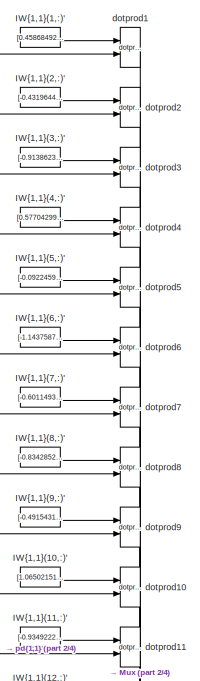
[diagram: Feed-Forward Neural Network3/Layer 1/IW{1,1} - part 1/4, top center region]
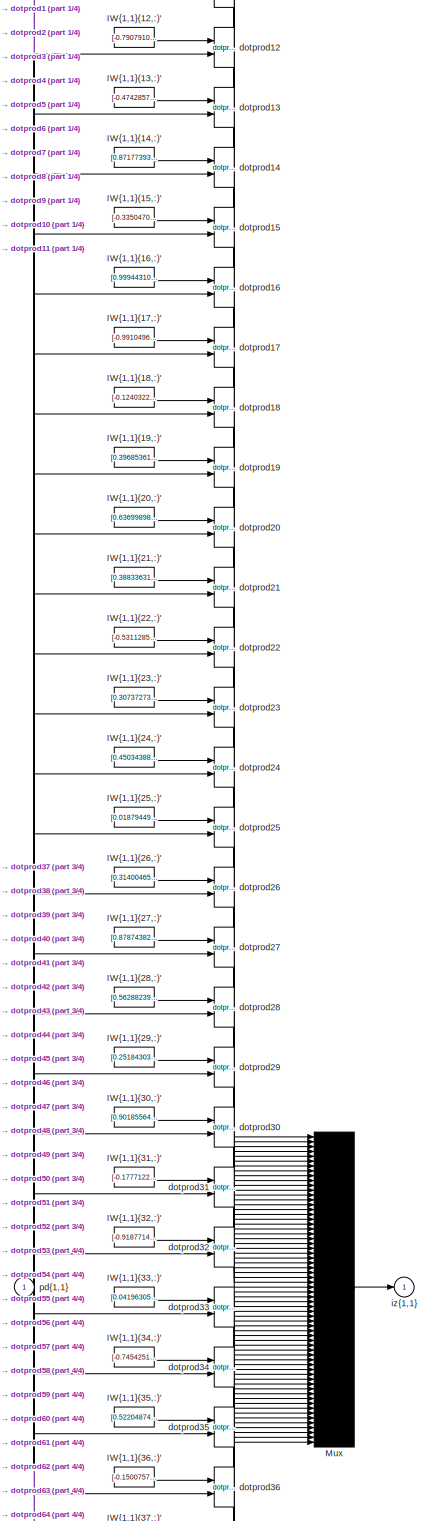
[diagram: Feed-Forward Neural Network3/Layer 1/IW{1,1} - part 2/4, full width, middle band]
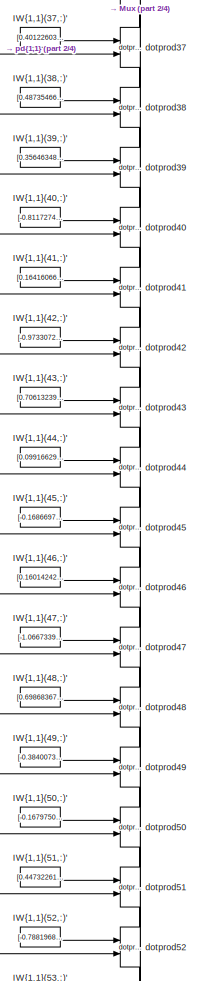
[diagram: Feed-Forward Neural Network3/Layer 1/IW{1,1} - part 3/4, bottom center region]
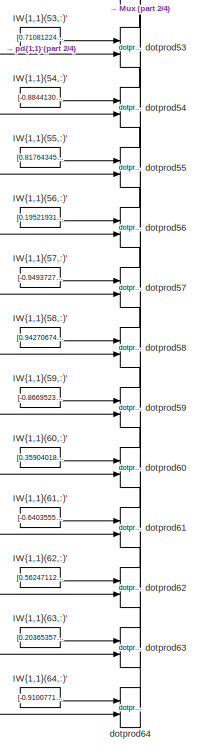
[diagram: Feed-Forward Neural Network3/Layer 1/IW{1,1} - part 4/4, bottom center region]
BLOCK [SubSystem] Feed-Forward Neural Network3/Layer 1/IW{1,1}
  Ports = [1, 1]
  RequestExecContextInheritance = off
BLOCK [Constant] Feed-Forward Neural Network3/Layer 1/IW{1,1}/IW{1,1}(1,:)'
  Value = [0.45868492826623252778261985440622083842754364013671875;0.92289285731776471433107644770643673837184906005859375;-0.9045151079076070299578304911847226321697235107421875;0.6809770305948614765867432652157731354236602783203125;0.087608306906038213579535067765391431748867034912109375;-0.66859815839908964818505410221405327320098876953125;0.59153382468235282676261022061225958168506622314453125;0.6696369...<+161ch>
BLOCK [Constant] Feed-Forward Neural Network3/Layer 1/IW{1,1}/IW{1,1}(10,:)'
  Value = [1.0650215194068157753548575783497653901576995849609375;0.923145532654704226160902180708944797515869140625;-0.28571602112830019049027896471670828759670257568359375;0.2206176877894590881989955732933594845235347747802734375;0.391759031266789181646714723683544434607028961181640625;0.4150000499566035561116450480767525732517242431640625;0.860171860662010789866371851530857384204864501953125;0.0858881248...<+154ch>
BLOCK [Constant] Feed-Forward Neural Network3/Layer 1/IW{1,1}/IW{1,1}(11,:)'
  Value = [-0.93492223934107243632496420104871504008769989013671875;0.356879505478416347852288481590221635997295379638671875;-0.042209624670428151638201796913563157431781291961669921875;0.6022490918690073247176997028873302042484283447265625;-1.3686982846566972948920692942920140922069549560546875;0.40979658750527558908061109832488000392913818359375;0.1714981863599602529557586194641771726310253143310546875;-0...<+166ch>
BLOCK [Constant] Feed-Forward Neural Network3/Layer 1/IW{1,1}/IW{1,1}(12,:)'
  Value = [-0.790791049648713606501360118272714316844940185546875;1.636635942456649228660126027534715831279754638671875;0.1645966634930366712108451565654831938445568084716796875;0.423800984374966327461464743464603088796138763427734375;-0.480947159258651557589558933614171110093593597412109375;-0.336459083953336790528965138946659862995147705078125;-0.29103815338116156841152815104578621685504913330078125;0.365...<+164ch>
BLOCK [Constant] Feed-Forward Neural Network3/Layer 1/IW{1,1}/IW{1,1}(13,:)'
  Value = [-0.47428576549192869027393726355512626469135284423828125;0.481480766900708678779352567289606668055057525634765625;0.73462601397020887983302372958860360085964202880859375;-0.759579012370747985727348350337706506252288818359375;-2.289916762842977959735435433685779571533203125;-0.1033609967207107793729647937652771361172199249267578125;-1.0397695114935359139707315989653579890727996826171875;-0.1146175...<+158ch>
BLOCK [Constant] Feed-Forward Neural Network3/Layer 1/IW{1,1}/IW{1,1}(14,:)'
  Value = [0.87177393789064960838430806688847951591014862060546875;-0.4062935623759871273108501554816029965877532958984375;-0.184561604501509435305450779196689836680889129638671875;-0.30955013114295903964290346266352571547031402587890625;-1.07748704376167214746828904026187956333160400390625;0.5280876054022181076419428791268728673458099365234375;-0.9211683717671104165702899990719743072986602783203125;0.42571...<+160ch>
BLOCK [Constant] Feed-Forward Neural Network3/Layer 1/IW{1,1}/IW{1,1}(15,:)'
  Value = [-0.335047058088355165228477972050313837826251983642578125;0.20537436519986662641912289473111741244792938232421875;-0.370389460774058376646422630074084736406803131103515625;-1.0764725130322230217672085927915759384632110595703125;0.9400904265613887478281185394735075533390045166015625;-0.90491999311588988685883805374032817780971527099609375;0.270630872633476904365323889578576199710369110107421875;0....<+167ch>
BLOCK [Constant] Feed-Forward Neural Network3/Layer 1/IW{1,1}/IW{1,1}(16,:)'
  Value = [0.9994431028540848860330925162998028099536895751953125;-0.07201816354893468552500479518130305223166942596435546875;0.9869266919961894313217953822459094226360321044921875;-0.037193845598922033179878354758329805918037891387939453125;0.0896492565684388897917500571566051803529262542724609375;0.030134033081079487914610837151485611684620380401611328125;0.575077665257467285364612052944721654057502746582...<+165ch>
BLOCK [Constant] Feed-Forward Neural Network3/Layer 1/IW{1,1}/IW{1,1}(17,:)'
  Value = [-0.991049601348017450419547458295710384845733642578125;0.1767823626110802404109989538483205251395702362060546875;-0.77042637580729300683657356785261072218418121337890625;1.0369587591067332965621972107328474521636962890625;-0.8204067837491482162448619419592432677745819091796875;-0.8007430151625019032479713132488541305065155029296875;0.09562009879907318321556886075995862483978271484375;-0.557942205...<+158ch>
BLOCK [Constant] Feed-Forward Neural Network3/Layer 1/IW{1,1}/IW{1,1}(18,:)'
  Value = [-0.12403228488311750232764296697496320120990276336669921875;-0.856750459537330311121650083805434405803680419921875;0.192918443102331804706039974917075596749782562255859375;1.03664335999274204169751101289875805377960205078125;-0.246904966516503676654537002832512371242046356201171875;-1.04666463077165872164187021553516387939453125;-0.033336987951685347064678666129111661575734615325927734375;0.85594...<+157ch>
BLOCK [Constant] Feed-Forward Neural Network3/Layer 1/IW{1,1}/IW{1,1}(19,:)'
  Value = [0.39685361726252110781132387273828499019145965576171875;-0.7385100253306242645834345239563845098018646240234375;-0.032023900811615581274427455582554102875292301177978515625;-1.0360471954462855403988896796363405883312225341796875;0.024414108875345917615273805267861462198197841644287109375;-0.54557027817496128729857218786492012441158294677734375;-0.825321885041145009154206491075456142425537109375;-...<+166ch>
BLOCK [Constant] Feed-Forward Neural Network3/Layer 1/IW{1,1}/IW{1,1}(2,:)'
  Value = [-0.4319644670862052837634337265626527369022369384765625;1.131663563801270644404439735808409750461578369140625;-0.3687061577706416404254241570015437901020050048828125;-0.366144655751171221869100236290250904858112335205078125;-1.1602768057870693763078406846034340560436248779296875;0.1935191644854985237866884517643484286963939666748046875;-1.1688198788845378661704899059259332716464996337890625;0.596...<+166ch>
BLOCK [Constant] Feed-Forward Neural Network3/Layer 1/IW{1,1}/IW{1,1}(20,:)'
  Value = [0.63699898538872490316720131886540912091732025146484375;1.22411360040730965437205668422393500804901123046875;-0.2390034119129008927107093995800823904573917388916015625;-0.4946309213569535234711338489432819187641143798828125;-0.310348111937733095455627108094631694257259368896484375;0.64481659009713354624437897655298002064228057861328125;-0.406894473883987861650979311889386735856533050537109375;-0....<+165ch>
BLOCK [Constant] Feed-Forward Neural Network3/Layer 1/IW{1,1}/IW{1,1}(21,:)'
  Value = [0.38833631078315045126458926461054943501949310302734375;-0.477922123057430703330084043045644648373126983642578125;-0.480202975146608534995351647012284956872463226318359375;-0.55323452941971229535056409076787531375885009765625;0.9656831493714037595310628603328950703144073486328125;-0.77207012724652568369521077329409308731555938720703125;0.819346846772037284978296156623400747776031494140625;1.23766...<+160ch>
BLOCK [Constant] Feed-Forward Neural Network3/Layer 1/IW{1,1}/IW{1,1}(22,:)'
  Value = [-0.53112855068060838004129209366510622203350067138671875;0.41770532386455538897962469491176307201385498046875;0.877645280928558424449192898464389145374298095703125;0.71215987560110016740821947678341530263423919677734375;-0.762781721122099298781904508359730243682861328125;0.5052308643133749388454134532366879284381866455078125;0.70107445065553763985377599965431727468967437744140625;0.93754961899415...<+153ch>
BLOCK [Constant] Feed-Forward Neural Network3/Layer 1/IW{1,1}/IW{1,1}(23,:)'
  Value = [0.307372736331202711657084591934108175337314605712890625;-0.05892926126433717382013810492935590445995330810546875;-0.8454741438367745498538852189085446298122406005859375;-0.90214871964219345290558749184128828346729278564453125;0.52882827674761923031354626800748519599437713623046875;-0.91735938960778806716689359745942056179046630859375;0.439037397626755587776159472923609428107738494873046875;-0.84...<+164ch>
BLOCK [Constant] Feed-Forward Neural Network3/Layer 1/IW{1,1}/IW{1,1}(24,:)'
  Value = [0.4503438888826376551577368445578031241893768310546875;0.7786736499867739080826822828385047614574432373046875;-0.1252306288409761325652880259440280497074127197265625;-0.377179788931731818646397869088104926049709320068359375;0.56682512736796419883233966174884699285030364990234375;0.7596722035946166240449883844121359288692474365234375;-1.1299355991591040204724549766979180276393890380859375;-0.30400...<+161ch>
BLOCK [Constant] Feed-Forward Neural Network3/Layer 1/IW{1,1}/IW{1,1}(25,:)'
  Value = [0.0187944911497716395099022435033475630916655063629150390625;-0.29171160022622633078981380094774067401885986328125;-0.6290327137339668528426273041986860334873199462890625;-0.60111063940849718267855905651231296360492706298828125;-0.84503479054379526669293909435509704053401947021484375;1.00065376837120112440970842726528644561767578125;-1.0220616759307910026421950533404015004634857177734375;0.238131...<+163ch>
BLOCK [Constant] Feed-Forward Neural Network3/Layer 1/IW{1,1}/IW{1,1}(26,:)'
  Value = [0.314004653024913926717687218115315772593021392822265625;0.28496225052615298256597498038900084793567657470703125;-0.020555819018938083220238155490733333863317966461181640625;-0.768406212368593966033358810818754136562347412109375;-0.702615478109754665325681344256736338138580322265625;-1.189394172537658445065744672319851815700531005859375;-0.90344082742903542015966422695782966911792755126953125;-0....<+169ch>
BLOCK [Constant] Feed-Forward Neural Network3/Layer 1/IW{1,1}/IW{1,1}(27,:)'
  Value = [0.87874382907473036485868078671046532690525054931640625;0.60810217822310008717323626115103252232074737548828125;-0.292770568818674081779107609690981917083263397216796875;-1.0529162479607714342222379855229519307613372802734375;-0.65486630135451984191519159139716066420078277587890625;-0.797220628919749874086164709297008812427520751953125;0.1839437904078597696422292528950492851436138153076171875;-0....<+167ch>
BLOCK [Constant] Feed-Forward Neural Network3/Layer 1/IW{1,1}/IW{1,1}(28,:)'
  Value = [0.56288239110132021192356432948145084083080291748046875;-0.9167817868636156664052805354003794491291046142578125;-0.37108127426537418358520881156437098979949951171875;-0.94968441008708370798530040701734833419322967529296875;-0.828961314456096776126514669158495962619781494140625;-0.34260164506463797184920849758782424032688140869140625;0.56198258845486204204888736057910136878490447998046875;0.463369...<+162ch>
BLOCK [Constant] Feed-Forward Neural Network3/Layer 1/IW{1,1}/IW{1,1}(29,:)'
  Value = [0.251843034229094986375940834477660246193408966064453125;-0.307514231193741272019082089173025451600551605224609375;1.017125500204711929796985714347101747989654541015625;0.460524441656800342936861625275923870503902435302734375;0.79131721944803856683137155414442531764507293701171875;0.57246841923376201588524736507679335772991180419921875;0.7128468337145701383406048989854753017425537109375;-0.636456...<+155ch>
BLOCK [Constant] Feed-Forward Neural Network3/Layer 1/IW{1,1}/IW{1,1}(3,:)'
  Value = [-0.91386232745777451480506670122849754989147186279296875;-0.45074517661076374253070753184147179126739501953125;0.7779681185418085842542268437682650983333587646484375;0.301880156597266358087239268570556305348873138427734375;-0.36510036078684515725711889899685047566890716552734375;0.435149932138041872775602314504794776439666748046875;0.744516076638678470089871552772819995880126953125;0.799362630134...<+157ch>
BLOCK [Constant] Feed-Forward Neural Network3/Layer 1/IW{1,1}/IW{1,1}(30,:)'
  Value = [0.9018556480275676801028339468757621943950653076171875;-0.78729557282458861866558663678006269037723541259765625;-0.019885436964666249048949708821965032257139682769775390625;0.052447295981474760517837552242781384848058223724365234375;-0.889009231846008329824826432741247117519378662109375;-0.9610547041058754569320399241405539214611053466796875;-0.1820182977433941196032662901416188105940818786621093...<+170ch>
BLOCK [Constant] Feed-Forward Neural Network3/Layer 1/IW{1,1}/IW{1,1}(31,:)'
  Value = [-0.177712244314512435305886128844576887786388397216796875;-1.2044180642528250491096741825458593666553497314453125;0.476297722669175194187829447400872595608234405517578125;1.027514245695015038251085570664145052433013916015625;0.301166659778433432048672102609998546540737152099609375;-0.75506722651343294305803510724217630922794342041015625;0.07699562646007508670553676211056881584227085113525390625;0...<+165ch>
BLOCK [Constant] Feed-Forward Neural Network3/Layer 1/IW{1,1}/IW{1,1}(32,:)'
  Value = [-0.91877149613463160449100541882216930389404296875;-0.7041488799692736666457903993432410061359405517578125;-0.6902299079520906044393768752343021333217620849609375;0.181024345450790935529994385433383285999298095703125;0.8149545053124309657022195096942596137523651123046875;-0.188996880097075659055150254062027670443058013916015625;0.5324856393693753187079664712655358016490936279296875;0.666802556228...<+153ch>
BLOCK [Constant] Feed-Forward Neural Network3/Layer 1/IW{1,1}/IW{1,1}(33,:)'
  Value = [0.04196305319293618107945320616636308841407299041748046875;0.76655853000515727924124576020403765141963958740234375;0.80603316035365557556957583074108697474002838134765625;-0.370158384866360989917666302062571048736572265625;-0.6648584293383577037417353494674898684024810791015625;-1.088403289602522416856800191453658044338226318359375;-0.5881887256931204177590188919566571712493896484375;0.4631445745...<+158ch>
BLOCK [Constant] Feed-Forward Neural Network3/Layer 1/IW{1,1}/IW{1,1}(34,:)'
  Value = [-0.745425193763594950979722852935083210468292236328125;0.8437511723446655675928695927723310887813568115234375;-0.35519126498091413424162965384311974048614501953125;1.145983154683168692145045497454702854156494140625;-0.8181579621718093608961908103083260357379913330078125;0.34044035693652052732005586221930570900440216064453125;0.0200030161024008119874384448166892980225384235382080078125;0.565146433...<+156ch>
BLOCK [Constant] Feed-Forward Neural Network3/Layer 1/IW{1,1}/IW{1,1}(35,:)'
  Value = [0.5220487465308909502681444791960529983043670654296875;-0.38328664517104515940815190333523787558078765869140625;0.1705678755793129663942409024457447230815887451171875;-0.5505032642886000804338664238457567989826202392578125;0.91195652457662113032910156107391230762004852294921875;0.549813390225727172122560659772716462612152099609375;0.56085932523472081800974819998373277485370635986328125;-0.7331191...<+158ch>
BLOCK [Constant] Feed-Forward Neural Network3/Layer 1/IW{1,1}/IW{1,1}(36,:)'
  Value = [-0.1500757408864716868635014179744757711887359619140625;-0.923805194473154234202638690476305782794952392578125;-0.392113893842136518319563265322358347475528717041015625;0.8983622595558229395606986145139671862125396728515625;-0.73945226212211079275249403508496470749378204345703125;0.73171210756552962362064818080398254096508026123046875;-0.5093700522200486080492964902077801525592803955078125;0.2343...<+165ch>
BLOCK [Constant] Feed-Forward Neural Network3/Layer 1/IW{1,1}/IW{1,1}(37,:)'
  Value = [0.40122603676745061118680268918978981673717498779296875;0.9489721667510442326687325476086698472499847412109375;0.9650136349198590313136492113699205219745635986328125;-0.461708720525743576690302916176733560860157012939453125;0.462280823831634546383639872146886773407459259033203125;-0.302021292443089617307805383461527526378631591796875;-1.121888991919543610009668554994277656078338623046875;0.608583...<+161ch>
BLOCK [Constant] Feed-Forward Neural Network3/Layer 1/IW{1,1}/IW{1,1}(38,:)'
  Value = [0.48735466340841171462017200610716827213764190673828125;0.1660571009135219655572512920116423629224300384521484375;0.98444903279443429777728624685551039874553680419921875;-0.58142103790658816730996250043972395360469818115234375;-0.81514060009158650910165988534572534263134002685546875;0.8406389862650691657819379543070681393146514892578125;0.09088775929998775537921318345979670993983745574951171875;0...<+162ch>
BLOCK [Constant] Feed-Forward Neural Network3/Layer 1/IW{1,1}/IW{1,1}(39,:)'
  Value = [0.35646348590771481656958030725945718586444854736328125;-0.8942120032138476393157588972826488316059112548828125;0.499219065371001857744914786962908692657947540283203125;0.428384098335756247077910074949613772332668304443359375;-1.02259216879095315988479342195205390453338623046875;-0.8539655339702594272210944836842827498912811279296875;0.259630100426019694292989470341126434504985809326171875;-0.723...<+163ch>
BLOCK [Constant] Feed-Forward Neural Network3/Layer 1/IW{1,1}/IW{1,1}(4,:)'
  Value = [0.57704299014256321687099671180476434528827667236328125;-0.3297771120958981061477288676542229950428009033203125;0.6499294520401475150350734111270867288112640380859375;0.5681734445177462067277929236297495663166046142578125;1.1424874290442026403269437651033513247966766357421875;0.32833120954897643262171413880423642694950103759765625;-0.74775060928833336770793493997189216315746307373046875;0.5152596...<+155ch>
BLOCK [Constant] Feed-Forward Neural Network3/Layer 1/IW{1,1}/IW{1,1}(40,:)'
  Value = [-0.8117274343416946980056536631309427320957183837890625;-1.065920559880181084366768118343316018581390380859375;0.51720231546692574386980822964687831699848175048828125;-0.434361952170224940861231743838288821280002593994140625;0.0190341195698830838167747714351207832805812358856201171875;0.367593061946847488030698514194227755069732666015625;-0.7189283397463122060599971518968231976032257080078125;-0....<+167ch>
BLOCK [Constant] Feed-Forward Neural Network3/Layer 1/IW{1,1}/IW{1,1}(41,:)'
  Value = [0.164160667665698090100789841017103753983974456787109375;0.95738171703772845244628797445329837501049041748046875;0.7062699381101247286807165437494404613971710205078125;0.399933604794525610071076471285778097808361053466796875;0.7171371306546976409634908122825436294078826904296875;-1.1202839080823354667160174358286894857883453369140625;-0.1853772287894561443533092415236751548945903778076171875;-0.7...<+168ch>
BLOCK [Constant] Feed-Forward Neural Network3/Layer 1/IW{1,1}/IW{1,1}(42,:)'
  Value = [-0.97330727500253766404370026066317223012447357177734375;-0.6376090744330138448958678054623305797576904296875;0.56613088501629127424763510134653188288211822509765625;0.66429044491389854787399826818727888166904449462890625;0.63823090480270783242389143197215162217617034912109375;0.89940392939894631130215429948293603956699371337890625;-0.426425485051496966359962925707804970443248748779296875;0.77548...<+161ch>
BLOCK [Constant] Feed-Forward Neural Network3/Layer 1/IW{1,1}/IW{1,1}(43,:)'
  Value = [0.70613239244119008208855348129873163998126983642578125;-0.0032671817422963238784772155298696816316805779933929443359375;0.367882464476378123752198234797106124460697174072265625;0.53716568114694995816904565799632109701633453369140625;-0.60385405900132227419163655213196761906147003173828125;0.56356107810884370490356332084047608077526092529296875;-1.2335498781115941113739609136246144771575927734375...<+169ch>
BLOCK [Constant] Feed-Forward Neural Network3/Layer 1/IW{1,1}/IW{1,1}(44,:)'
  Value = [0.0991662970499278817460009349815663881599903106689453125;-0.23734506227607410355773254195810295641422271728515625;0.62818548146802388743026313022710382938385009765625;-0.9129688653862937375293995501124300062656402587890625;-0.2172478617775137343937075229405309073626995086669921875;-0.01335464061911364151702397151666446006856858730316162109375;1.137547187144944960124348654062487185001373291015625...<+170ch>
BLOCK [Constant] Feed-Forward Neural Network3/Layer 1/IW{1,1}/IW{1,1}(45,:)'
  Value = [-0.1686697583546842571511348296553478576242923736572265625;0.525569051946446652578970315516926348209381103515625;-0.7477028093603312886017420169082470238208770751953125;0.748042650913563367254255354055203497409820556640625;0.9218607481481113641308411388308741152286529541015625;-0.395022844379094129063645368660218082368373870849609375;-0.92733777555402951975338510237634181976318359375;0.0132672175...<+161ch>
BLOCK [Constant] Feed-Forward Neural Network3/Layer 1/IW{1,1}/IW{1,1}(46,:)'
  Value = [0.1601424200775466155644011223557754419744014739990234375;-0.47571559161783427693848125272779725492000579833984375;0.390102210125831183606948115993873216211795806884765625;-0.545689954050754710834780780714936554431915283203125;-0.1706928204696639694848414592343033291399478912353515625;1.021403706467001626378987566567957401275634765625;-0.820522700882862832116870777099393308162689208984375;-1.1603...<+164ch>
BLOCK [Constant] Feed-Forward Neural Network3/Layer 1/IW{1,1}/IW{1,1}(47,:)'
  Value = [-1.0667339586099202630720128581742756068706512451171875;0.78778700900907894233426986829726956784725189208984375;0.42322582107684547647608042097999714314937591552734375;0.486047035425058504554129967800690792500972747802734375;-0.056824286572496336689130913555345614440739154815673828125;0.84373266382901757065582160066696815192699432373046875;-1.0525997952128711698804863772238604724407196044921875;0...<+169ch>
BLOCK [Constant] Feed-Forward Neural Network3/Layer 1/IW{1,1}/IW{1,1}(48,:)'
  Value = [0.69868367682404952656582963754772208631038665771484375;0.186654436275727364513699058079509995877742767333984375;-0.5551675067174670630265609361231327056884765625;0.29542233086625302451722063779016025364398956298828125;0.413705506317406934702063381337211467325687408447265625;0.507571029405457618821628784644417464733123779296875;-0.91132337455524015101815393791184760630130767822265625;-0.281992313...<+156ch>
BLOCK [Constant] Feed-Forward Neural Network3/Layer 1/IW{1,1}/IW{1,1}(49,:)'
  Value = [-0.384007359998857544791661666749860160052776336669921875;-0.71047128787840529984265458551817573606967926025390625;0.710237209934762692142840023734606802463531494140625;-0.93633402362902395932309218551381491124629974365234375;0.62169053389579664870012720712111331522464752197265625;-0.75186685838180411511899592369445599615573883056640625;0.177732391685496204924987750928266905248165130615234375;0.1...<+161ch>
BLOCK [Constant] Feed-Forward Neural Network3/Layer 1/IW{1,1}/IW{1,1}(5,:)'
  Value = [-0.09224594672063546330065264555742032825946807861328125;-0.38378360533188493608491853592568077147006988525390625;0.223639240732848965098611415669438429176807403564453125;0.276602420404264248698922301628044806420803070068359375;0.99449927835907292461570250452496111392974853515625;0.93383877466768672181984811686561442911624908447265625;-0.77997967173394344708725611781119368970394134521484375;0.949...<+166ch>
BLOCK [Constant] Feed-Forward Neural Network3/Layer 1/IW{1,1}/IW{1,1}(50,:)'
  Value = [-0.1679750521464102586133293470993521623313426971435546875;-0.865077149963036529101145788445137441158294677734375;0.67389365879715235063684986016596667468547821044921875;-0.6470971894533705803809198187082074582576751708984375;-0.5836682750283272991254079897771589457988739013671875;0.420528835051041216530620658886618912220001220703125;-0.8720034350370198250601561085204593837261199951171875;0.68974...<+162ch>
BLOCK [Constant] Feed-Forward Neural Network3/Layer 1/IW{1,1}/IW{1,1}(51,:)'
  Value = [0.44732261364571035411330512943095527589321136474609375;0.1758470803218625533315133679934660904109477996826171875;-0.233367352704531738627480308423400856554508209228515625;0.349371613537245995217972449609078466892242431640625;-0.90367897199846314304494399038958363234996795654296875;-0.478498032148415963771270753568387590348720550537109375;-0.64969492800252914843639473474468104541301727294921875;1...<+165ch>
BLOCK [Constant] Feed-Forward Neural Network3/Layer 1/IW{1,1}/IW{1,1}(52,:)'
  Value = [-0.78819682681515190747489896239130757749080657958984375;0.388407732942888939131620418265811167657375335693359375;0.35989973075219394704760134118259884417057037353515625;0.66243263412910746712469745034468360245227813720703125;-0.015223181998556357952256945509361685253679752349853515625;-0.55855499675429876038634802171145565807819366455078125;-0.5733713000237565804440009742393158376216888427734375...<+170ch>
BLOCK [Constant] Feed-Forward Neural Network3/Layer 1/IW{1,1}/IW{1,1}(53,:)'
  Value = [0.71081224858643443642591819298104383051395416259765625;-0.69067337054457633715998099432908929884433746337890625;0.258485018155751256063723531042342074215412139892578125;0.7073769827294917877935631622676737606525421142578125;0.1627053995707752609423124567911145277321338653564453125;-0.264998526388344923798712216012063436210155487060546875;1.055188745046411469274971750564873218536376953125;-0.4751...<+164ch>
BLOCK [Constant] Feed-Forward Neural Network3/Layer 1/IW{1,1}/IW{1,1}(54,:)'
  Value = [-0.8844130665775005173401268621091730892658233642578125;0.36312469072718922546982867061160504817962646484375;0.75033849106744099355381649729679338634014129638671875;0.09625505924436449090020317953531048260629177093505859375;0.72668641538420686298849204831640236079692840576171875;1.0379795885681117884047353072674013674259185791015625;-0.50402024763513775251766446672263555228710174560546875;0.40738...<+164ch>
BLOCK [Constant] Feed-Forward Neural Network3/Layer 1/IW{1,1}/IW{1,1}(55,:)'
  Value = [0.8176434584012703954414291729335673153400421142578125;-0.10935843617257516580121290417082491330802440643310546875;-1.0678496021682188921175793439033441245555877685546875;0.8030475963791838811545176213257946074008941650390625;-0.255839013256880409841187429265119135379791259765625;-1.2786444587533540850898816643166355788707733154296875;-0.183883969521893619880614778594463132321834564208984375;-0.0...<+168ch>
BLOCK [Constant] Feed-Forward Neural Network3/Layer 1/IW{1,1}/IW{1,1}(56,:)'
  Value = [0.1952193141698427003571936211301363073289394378662109375;0.402225719391471392416548269466147758066654205322265625;0.1036611251834579083830334411686635576188564300537109375;-0.1468207782462005173140795477593201212584972381591796875;-0.31994243490119866901721934482338838279247283935546875;-1.0496896435332054853262206961517222225666046142578125;-0.906120277690495412592497359582921490073204040527343...<+171ch>
BLOCK [Constant] Feed-Forward Neural Network3/Layer 1/IW{1,1}/IW{1,1}(57,:)'
  Value = [-0.9493727955993092049169490564963780343532562255859375;-0.335615815333427158773105247746570967137813568115234375;0.2368186182419703411650147018008283339440822601318359375;0.7252467914222713307736967180971987545490264892578125;-0.428905396388163218102107521190191619098186492919921875;0.7210413471556280651242332169204019010066986083984375;0.11247903770765843578516296474845148622989654541015625;0.7...<+162ch>
BLOCK [Constant] Feed-Forward Neural Network3/Layer 1/IW{1,1}/IW{1,1}(58,:)'
  Value = [0.94270674126308040552402189860004000365734100341796875;-0.135860400719931051494171470039873383939266204833984375;-1.05692479304946829188338597305119037628173828125;0.93612502985123169363390616126707755029201507568359375;0.0670282852011160057426053526796749792993068695068359375;0.68125601756195663938342477194964885711669921875;0.042234328149349742442808519626851193606853485107421875;0.38897064486...<+157ch>
BLOCK [Constant] Feed-Forward Neural Network3/Layer 1/IW{1,1}/IW{1,1}(59,:)'
  Value = [-0.8669523545897386274106111159198917448520660400390625;0.901720221085302142682849080301821231842041015625;-0.406824442344712100538828281059977598488330841064453125;-0.386446498945273109182352300194907002151012420654296875;-0.1953606819501915448089590654490166343748569488525390625;1.024995155631098331383554977946914732456207275390625;0.478714144885362957726471222485997714102268218994140625;-0.353...<+163ch>
BLOCK [Constant] Feed-Forward Neural Network3/Layer 1/IW{1,1}/IW{1,1}(6,:)'
  Value = [-1.1437587265543982528726019154419191181659698486328125;-1.1455093095544304215849251704639755189418792724609375;-0.42315702137301214325049159015179611742496490478515625;-0.79131674418211961352653815993107855319976806640625;0.50078581960100765346766138463863171637058258056640625;0.64058661303697073119423066600575111806392669677734375;-0.401792931913857731540673512427019886672496795654296875;0.3592...<+160ch>
BLOCK [Constant] Feed-Forward Neural Network3/Layer 1/IW{1,1}/IW{1,1}(60,:)'
  Value = [0.3590401829143894385509838684811256825923919677734375;-0.203844352651413707189220758664305321872234344482421875;-0.028674353306721182821359406034389394335448741912841796875;0.1898780270719273299828699919089558534324169158935546875;-0.97107737206335542623492074199020862579345703125;-0.7049470997716416054146293390658684074878692626953125;0.041026748217958097786350890601170249283313751220703125;-1....<+168ch>
BLOCK [Constant] Feed-Forward Neural Network3/Layer 1/IW{1,1}/IW{1,1}(61,:)'
  Value = [-0.64035559688825760549235610596952028572559356689453125;0.74513611107510546727183964321739040315151214599609375;-0.7848448124750111443148625767207704484462738037109375;0.73062370659019337804096494437544606626033782958984375;-1.327406872915831481662962687551043927669525146484375;0.44985153691166879230678432577406056225299835205078125;0.242066233793844898247726860063266940414905548095703125;-0.133...<+158ch>
BLOCK [Constant] Feed-Forward Neural Network3/Layer 1/IW{1,1}/IW{1,1}(62,:)'
  Value = [0.56247112982970903782842242435435764491558074951171875;-0.74969872442936613676778279113932512700557708740234375;-0.29933358265625631400297379514086060225963592529296875;0.558077793128705312852844144799746572971343994140625;-1.0314085660909235730997579594259150326251983642578125;-0.96914425047493291121014635791652835905551910400390625;-0.78641950874881827449058846468687988817691802978515625;0.707...<+165ch>
BLOCK [Constant] Feed-Forward Neural Network3/Layer 1/IW{1,1}/IW{1,1}(63,:)'
  Value = [0.2036535758647045335489877970758243463933467864990234375;0.18824162646012132515949133448884822428226470947265625;0.055030042589781870410181596753318444825708866119384765625;-0.1219277958454305366142733646483975462615489959716796875;0.93690798210580006344372350213234312832355499267578125;0.57814017757580604683909086816129274666309356689453125;0.9188476004671548569291417152271606028079986572265625...<+170ch>
BLOCK [Constant] Feed-Forward Neural Network3/Layer 1/IW{1,1}/IW{1,1}(64,:)'
  Value = [-0.9100771309814212894906404471839778125286102294921875;-0.666302301310716327265026848181150853633880615234375;-0.460355056312492738612718312651850283145904541015625;0.52572845760131858838803964317776262760162353515625;0.92898705103636747271167450890061445534229278564453125;-0.456615502282086083152279343266854993999004364013671875;0.72570389526679590641577988208155147731304168701171875;0.87399028...<+160ch>
BLOCK [Constant] Feed-Forward Neural Network3/Layer 1/IW{1,1}/IW{1,1}(7,:)'
  Value = [-0.6011493278455954936134730814956128597259521484375;-0.94397276205370861390520076383836567401885986328125;-0.63936467363710303146717706113122403621673583984375;-0.323930740023200269828151931505999527871608734130859375;0.8082167859878934823569807122112251818180084228515625;-0.995454398462420453341792381252162158489227294921875;0.84903160133359578676248702322482131421566009521484375;-0.17825023682...<+160ch>
BLOCK [Constant] Feed-Forward Neural Network3/Layer 1/IW{1,1}/IW{1,1}(8,:)'
  Value = [-0.83428521927244070344187321097706444561481475830078125;0.35537394497407337468075638753361999988555908203125;0.6093596734300064099443261511623859405517578125;-1.132505948065638090582751829060725867748260498046875;0.536982872837481917116519980481825768947601318359375;-0.7799684295941042844191315452917478978633880615234375;0.33586439695868453014782062382437288761138916015625;-0.9731860010931754345...<+139ch>
BLOCK [Constant] Feed-Forward Neural Network3/Layer 1/IW{1,1}/IW{1,1}(9,:)'
  Value = [-0.49154311227124203309557515240157954394817352294921875;0.70347695075763005956304141363943926990032196044921875;-0.051520579344400518895241702921339310705661773681640625;0.6370740768855644997614717794931493699550628662109375;0.56851958404243474465289409636170603334903717041015625;-1.0275247477109650251492212191806174814701080322265625;-0.49961662332965872668211204654653556644916534423828125;-0.8...<+158ch>
BLOCK [Mux] Feed-Forward Neural Network3/Layer 1/IW{1,1}/Mux
  Inputs = 64
  Ports = [64, 1]
BLOCK [Reference] Feed-Forward Neural Network3/Layer 1/IW{1,1}/dotprod1  REF=neural/Weight Functions/dotprod
  Ports = [2, 1]
  SourceBlock = neural/Weight Functions/dotprod
  SourceProductBaseCode = NN
  SourceProductName = Neural Network Toolbox
  SourceType = DOTPROD
BLOCK [Reference] Feed-Forward Neural Network3/Layer 1/IW{1,1}/dotprod10  REF=neural/Weight Functions/dotprod
  Ports = [2, 1]
  SourceBlock = neural/Weight Functions/dotprod
  SourceProductBaseCode = NN
  SourceProductName = Neural Network Toolbox
  SourceType = DOTPROD
BLOCK [Reference] Feed-Forward Neural Network3/Layer 1/IW{1,1}/dotprod11  REF=neural/Weight Functions/dotprod
  Ports = [2, 1]
  SourceBlock = neural/Weight Functions/dotprod
  SourceProductBaseCode = NN
  SourceProductName = Neural Network Toolbox
  SourceType = DOTPROD
BLOCK [Reference] Feed-Forward Neural Network3/Layer 1/IW{1,1}/dotprod12  REF=neural/Weight Functions/dotprod
  Ports = [2, 1]
  SourceBlock = neural/Weight Functions/dotprod
  SourceProductBaseCode = NN
  SourceProductName = Neural Network Toolbox
  SourceType = DOTPROD
BLOCK [Reference] Feed-Forward Neural Network3/Layer 1/IW{1,1}/dotprod13  REF=neural/Weight Functions/dotprod
  Ports = [2, 1]
  SourceBlock = neural/Weight Functions/dotprod
  SourceProductBaseCode = NN
  SourceProductName = Neural Network Toolbox
  SourceType = DOTPROD
BLOCK [Reference] Feed-Forward Neural Network3/Layer 1/IW{1,1}/dotprod14  REF=neural/Weight Functions/dotprod
  Ports = [2, 1]
  SourceBlock = neural/Weight Functions/dotprod
  SourceProductBaseCode = NN
  SourceProductName = Neural Network Toolbox
  SourceType = DOTPROD
BLOCK [Reference] Feed-Forward Neural Network3/Layer 1/IW{1,1}/dotprod15  REF=neural/Weight Functions/dotprod
  Ports = [2, 1]
  SourceBlock = neural/Weight Functions/dotprod
  SourceProductBaseCode = NN
  SourceProductName = Neural Network Toolbox
  SourceType = DOTPROD
BLOCK [Reference] Feed-Forward Neural Network3/Layer 1/IW{1,1}/dotprod16  REF=neural/Weight Functions/dotprod
  Ports = [2, 1]
  SourceBlock = neural/Weight Functions/dotprod
  SourceProductBaseCode = NN
  SourceProductName = Neural Network Toolbox
  SourceType = DOTPROD
BLOCK [Reference] Feed-Forward Neural Network3/Layer 1/IW{1,1}/dotprod17  REF=neural/Weight Functions/dotprod
  Ports = [2, 1]
  SourceBlock = neural/Weight Functions/dotprod
  SourceProductBaseCode = NN
  SourceProductName = Neural Network Toolbox
  SourceType = DOTPROD
BLOCK [Reference] Feed-Forward Neural Network3/Layer 1/IW{1,1}/dotprod18  REF=neural/Weight Functions/dotprod
  Ports = [2, 1]
  SourceBlock = neural/Weight Functions/dotprod
  SourceProductBaseCode = NN
  SourceProductName = Neural Network Toolbox
  SourceType = DOTPROD
BLOCK [Reference] Feed-Forward Neural Network3/Layer 1/IW{1,1}/dotprod19  REF=neural/Weight Functions/dotprod
  Ports = [2, 1]
  SourceBlock = neural/Weight Functions/dotprod
  SourceProductBaseCode = NN
  SourceProductName = Neural Network Toolbox
  SourceType = DOTPROD
BLOCK [Reference] Feed-Forward Neural Network3/Layer 1/IW{1,1}/dotprod2  REF=neural/Weight Functions/dotprod
  Ports = [2, 1]
  SourceBlock = neural/Weight Functions/dotprod
  SourceProductBaseCode = NN
  SourceProductName = Neural Network Toolbox
  SourceType = DOTPROD
BLOCK [Reference] Feed-Forward Neural Network3/Layer 1/IW{1,1}/dotprod20  REF=neural/Weight Functions/dotprod
  Ports = [2, 1]
  SourceBlock = neural/Weight Functions/dotprod
  SourceProductBaseCode = NN
  SourceProductName = Neural Network Toolbox
  SourceType = DOTPROD
BLOCK [Reference] Feed-Forward Neural Network3/Layer 1/IW{1,1}/dotprod21  REF=neural/Weight Functions/dotprod
  Ports = [2, 1]
  SourceBlock = neural/Weight Functions/dotprod
  SourceProductBaseCode = NN
  SourceProductName = Neural Network Toolbox
  SourceType = DOTPROD
BLOCK [Reference] Feed-Forward Neural Network3/Layer 1/IW{1,1}/dotprod22  REF=neural/Weight Functions/dotprod
  Ports = [2, 1]
  SourceBlock = neural/Weight Functions/dotprod
  SourceProductBaseCode = NN
  SourceProductName = Neural Network Toolbox
  SourceType = DOTPROD
BLOCK [Reference] Feed-Forward Neural Network3/Layer 1/IW{1,1}/dotprod23  REF=neural/Weight Functions/dotprod
  Ports = [2, 1]
  SourceBlock = neural/Weight Functions/dotprod
  SourceProductBaseCode = NN
  SourceProductName = Neural Network Toolbox
  SourceType = DOTPROD
BLOCK [Reference] Feed-Forward Neural Network3/Layer 1/IW{1,1}/dotprod24  REF=neural/Weight Functions/dotprod
  Ports = [2, 1]
  SourceBlock = neural/Weight Functions/dotprod
  SourceProductBaseCode = NN
  SourceProductName = Neural Network Toolbox
  SourceType = DOTPROD
BLOCK [Reference] Feed-Forward Neural Network3/Layer 1/IW{1,1}/dotprod25  REF=neural/Weight Functions/dotprod
  Ports = [2, 1]
  SourceBlock = neural/Weight Functions/dotprod
  SourceProductBaseCode = NN
  SourceProductName = Neural Network Toolbox
  SourceType = DOTPROD
BLOCK [Reference] Feed-Forward Neural Network3/Layer 1/IW{1,1}/dotprod26  REF=neural/Weight Functions/dotprod
  Ports = [2, 1]
  SourceBlock = neural/Weight Functions/dotprod
  SourceProductBaseCode = NN
  SourceProductName = Neural Network Toolbox
  SourceType = DOTPROD
BLOCK [Reference] Feed-Forward Neural Network3/Layer 1/IW{1,1}/dotprod27  REF=neural/Weight Functions/dotprod
  Ports = [2, 1]
  SourceBlock = neural/Weight Functions/dotprod
  SourceProductBaseCode = NN
  SourceProductName = Neural Network Toolbox
  SourceType = DOTPROD
BLOCK [Reference] Feed-Forward Neural Network3/Layer 1/IW{1,1}/dotprod28  REF=neural/Weight Functions/dotprod
  Ports = [2, 1]
  SourceBlock = neural/Weight Functions/dotprod
  SourceProductBaseCode = NN
  SourceProductName = Neural Network Toolbox
  SourceType = DOTPROD
BLOCK [Reference] Feed-Forward Neural Network3/Layer 1/IW{1,1}/dotprod29  REF=neural/Weight Functions/dotprod
  Ports = [2, 1]
  SourceBlock = neural/Weight Functions/dotprod
  SourceProductBaseCode = NN
  SourceProductName = Neural Network Toolbox
  SourceType = DOTPROD
BLOCK [Reference] Feed-Forward Neural Network3/Layer 1/IW{1,1}/dotprod3  REF=neural/Weight Functions/dotprod
  Ports = [2, 1]
  SourceBlock = neural/Weight Functions/dotprod
  SourceProductBaseCode = NN
  SourceProductName = Neural Network Toolbox
  SourceType = DOTPROD
BLOCK [Reference] Feed-Forward Neural Network3/Layer 1/IW{1,1}/dotprod30  REF=neural/Weight Functions/dotprod
  Ports = [2, 1]
  SourceBlock = neural/Weight Functions/dotprod
  SourceProductBaseCode = NN
  SourceProductName = Neural Network Toolbox
  SourceType = DOTPROD
BLOCK [Reference] Feed-Forward Neural Network3/Layer 1/IW{1,1}/dotprod31  REF=neural/Weight Functions/dotprod
  Ports = [2, 1]
  SourceBlock = neural/Weight Functions/dotprod
  SourceProductBaseCode = NN
  SourceProductName = Neural Network Toolbox
  SourceType = DOTPROD
BLOCK [Reference] Feed-Forward Neural Network3/Layer 1/IW{1,1}/dotprod32  REF=neural/Weight Functions/dotprod
  Ports = [2, 1]
  SourceBlock = neural/Weight Functions/dotprod
  SourceProductBaseCode = NN
  SourceProductName = Neural Network Toolbox
  SourceType = DOTPROD
BLOCK [Reference] Feed-Forward Neural Network3/Layer 1/IW{1,1}/dotprod33  REF=neural/Weight Functions/dotprod
  Ports = [2, 1]
  SourceBlock = neural/Weight Functions/dotprod
  SourceProductBaseCode = NN
  SourceProductName = Neural Network Toolbox
  SourceType = DOTPROD
BLOCK [Reference] Feed-Forward Neural Network3/Layer 1/IW{1,1}/dotprod34  REF=neural/Weight Functions/dotprod
  Ports = [2, 1]
  SourceBlock = neural/Weight Functions/dotprod
  SourceProductBaseCode = NN
  SourceProductName = Neural Network Toolbox
  SourceType = DOTPROD
BLOCK [Reference] Feed-Forward Neural Network3/Layer 1/IW{1,1}/dotprod35  REF=neural/Weight Functions/dotprod
  Ports = [2, 1]
  SourceBlock = neural/Weight Functions/dotprod
  SourceProductBaseCode = NN
  SourceProductName = Neural Network Toolbox
  SourceType = DOTPROD
BLOCK [Reference] Feed-Forward Neural Network3/Layer 1/IW{1,1}/dotprod36  REF=neural/Weight Functions/dotprod
  Ports = [2, 1]
  SourceBlock = neural/Weight Functions/dotprod
  SourceProductBaseCode = NN
  SourceProductName = Neural Network Toolbox
  SourceType = DOTPROD
BLOCK [Reference] Feed-Forward Neural Network3/Layer 1/IW{1,1}/dotprod37  REF=neural/Weight Functions/dotprod
  Ports = [2, 1]
  SourceBlock = neural/Weight Functions/dotprod
  SourceProductBaseCode = NN
  SourceProductName = Neural Network Toolbox
  SourceType = DOTPROD
BLOCK [Reference] Feed-Forward Neural Network3/Layer 1/IW{1,1}/dotprod38  REF=neural/Weight Functions/dotprod
  Ports = [2, 1]
  SourceBlock = neural/Weight Functions/dotprod
  SourceProductBaseCode = NN
  SourceProductName = Neural Network Toolbox
  SourceType = DOTPROD
BLOCK [Reference] Feed-Forward Neural Network3/Layer 1/IW{1,1}/dotprod39  REF=neural/Weight Functions/dotprod
  Ports = [2, 1]
  SourceBlock = neural/Weight Functions/dotprod
  SourceProductBaseCode = NN
  SourceProductName = Neural Network Toolbox
  SourceType = DOTPROD
BLOCK [Reference] Feed-Forward Neural Network3/Layer 1/IW{1,1}/dotprod4  REF=neural/Weight Functions/dotprod
  Ports = [2, 1]
  SourceBlock = neural/Weight Functions/dotprod
  SourceProductBaseCode = NN
  SourceProductName = Neural Network Toolbox
  SourceType = DOTPROD
BLOCK [Reference] Feed-Forward Neural Network3/Layer 1/IW{1,1}/dotprod40  REF=neural/Weight Functions/dotprod
  Ports = [2, 1]
  SourceBlock = neural/Weight Functions/dotprod
  SourceProductBaseCode = NN
  SourceProductName = Neural Network Toolbox
  SourceType = DOTPROD
BLOCK [Reference] Feed-Forward Neural Network3/Layer 1/IW{1,1}/dotprod41  REF=neural/Weight Functions/dotprod
  Ports = [2, 1]
  SourceBlock = neural/Weight Functions/dotprod
  SourceProductBaseCode = NN
  SourceProductName = Neural Network Toolbox
  SourceType = DOTPROD
BLOCK [Reference] Feed-Forward Neural Network3/Layer 1/IW{1,1}/dotprod42  REF=neural/Weight Functions/dotprod
  Ports = [2, 1]
  SourceBlock = neural/Weight Functions/dotprod
  SourceProductBaseCode = NN
  SourceProductName = Neural Network Toolbox
  SourceType = DOTPROD
BLOCK [Reference] Feed-Forward Neural Network3/Layer 1/IW{1,1}/dotprod43  REF=neural/Weight Functions/dotprod
  Ports = [2, 1]
  SourceBlock = neural/Weight Functions/dotprod
  SourceProductBaseCode = NN
  SourceProductName = Neural Network Toolbox
  SourceType = DOTPROD
BLOCK [Reference] Feed-Forward Neural Network3/Layer 1/IW{1,1}/dotprod44  REF=neural/Weight Functions/dotprod
  Ports = [2, 1]
  SourceBlock = neural/Weight Functions/dotprod
  SourceProductBaseCode = NN
  SourceProductName = Neural Network Toolbox
  SourceType = DOTPROD
BLOCK [Reference] Feed-Forward Neural Network3/Layer 1/IW{1,1}/dotprod45  REF=neural/Weight Functions/dotprod
  Ports = [2, 1]
  SourceBlock = neural/Weight Functions/dotprod
  SourceProductBaseCode = NN
  SourceProductName = Neural Network Toolbox
  SourceType = DOTPROD
BLOCK [Reference] Feed-Forward Neural Network3/Layer 1/IW{1,1}/dotprod46  REF=neural/Weight Functions/dotprod
  Ports = [2, 1]
  SourceBlock = neural/Weight Functions/dotprod
  SourceProductBaseCode = NN
  SourceProductName = Neural Network Toolbox
  SourceType = DOTPROD
BLOCK [Reference] Feed-Forward Neural Network3/Layer 1/IW{1,1}/dotprod47  REF=neural/Weight Functions/dotprod
  Ports = [2, 1]
  SourceBlock = neural/Weight Functions/dotprod
  SourceProductBaseCode = NN
  SourceProductName = Neural Network Toolbox
  SourceType = DOTPROD
BLOCK [Reference] Feed-Forward Neural Network3/Layer 1/IW{1,1}/dotprod48  REF=neural/Weight Functions/dotprod
  Ports = [2, 1]
  SourceBlock = neural/Weight Functions/dotprod
  SourceProductBaseCode = NN
  SourceProductName = Neural Network Toolbox
  SourceType = DOTPROD
BLOCK [Reference] Feed-Forward Neural Network3/Layer 1/IW{1,1}/dotprod49  REF=neural/Weight Functions/dotprod
  Ports = [2, 1]
  SourceBlock = neural/Weight Functions/dotprod
  SourceProductBaseCode = NN
  SourceProductName = Neural Network Toolbox
  SourceType = DOTPROD
BLOCK [Reference] Feed-Forward Neural Network3/Layer 1/IW{1,1}/dotprod5  REF=neural/Weight Functions/dotprod
  Ports = [2, 1]
  SourceBlock = neural/Weight Functions/dotprod
  SourceProductBaseCode = NN
  SourceProductName = Neural Network Toolbox
  SourceType = DOTPROD
BLOCK [Reference] Feed-Forward Neural Network3/Layer 1/IW{1,1}/dotprod50  REF=neural/Weight Functions/dotprod
  Ports = [2, 1]
  SourceBlock = neural/Weight Functions/dotprod
  SourceProductBaseCode = NN
  SourceProductName = Neural Network Toolbox
  SourceType = DOTPROD
BLOCK [Reference] Feed-Forward Neural Network3/Layer 1/IW{1,1}/dotprod51  REF=neural/Weight Functions/dotprod
  Ports = [2, 1]
  SourceBlock = neural/Weight Functions/dotprod
  SourceProductBaseCode = NN
  SourceProductName = Neural Network Toolbox
  SourceType = DOTPROD
BLOCK [Reference] Feed-Forward Neural Network3/Layer 1/IW{1,1}/dotprod52  REF=neural/Weight Functions/dotprod
  Ports = [2, 1]
  SourceBlock = neural/Weight Functions/dotprod
  SourceProductBaseCode = NN
  SourceProductName = Neural Network Toolbox
  SourceType = DOTPROD
BLOCK [Reference] Feed-Forward Neural Network3/Layer 1/IW{1,1}/dotprod53  REF=neural/Weight Functions/dotprod
  Ports = [2, 1]
  SourceBlock = neural/Weight Functions/dotprod
  SourceProductBaseCode = NN
  SourceProductName = Neural Network Toolbox
  SourceType = DOTPROD
BLOCK [Reference] Feed-Forward Neural Network3/Layer 1/IW{1,1}/dotprod54  REF=neural/Weight Functions/dotprod
  Ports = [2, 1]
  SourceBlock = neural/Weight Functions/dotprod
  SourceProductBaseCode = NN
  SourceProductName = Neural Network Toolbox
  SourceType = DOTPROD
BLOCK [Reference] Feed-Forward Neural Network3/Layer 1/IW{1,1}/dotprod55  REF=neural/Weight Functions/dotprod
  Ports = [2, 1]
  SourceBlock = neural/Weight Functions/dotprod
  SourceProductBaseCode = NN
  SourceProductName = Neural Network Toolbox
  SourceType = DOTPROD
BLOCK [Reference] Feed-Forward Neural Network3/Layer 1/IW{1,1}/dotprod56  REF=neural/Weight Functions/dotprod
  Ports = [2, 1]
  SourceBlock = neural/Weight Functions/dotprod
  SourceProductBaseCode = NN
  SourceProductName = Neural Network Toolbox
  SourceType = DOTPROD
BLOCK [Reference] Feed-Forward Neural Network3/Layer 1/IW{1,1}/dotprod57  REF=neural/Weight Functions/dotprod
  Ports = [2, 1]
  SourceBlock = neural/Weight Functions/dotprod
  SourceProductBaseCode = NN
  SourceProductName = Neural Network Toolbox
  SourceType = DOTPROD
BLOCK [Reference] Feed-Forward Neural Network3/Layer 1/IW{1,1}/dotprod58  REF=neural/Weight Functions/dotprod
  Ports = [2, 1]
  SourceBlock = neural/Weight Functions/dotprod
  SourceProductBaseCode = NN
  SourceProductName = Neural Network Toolbox
  SourceType = DOTPROD
BLOCK [Reference] Feed-Forward Neural Network3/Layer 1/IW{1,1}/dotprod59  REF=neural/Weight Functions/dotprod
  Ports = [2, 1]
  SourceBlock = neural/Weight Functions/dotprod
  SourceProductBaseCode = NN
  SourceProductName = Neural Network Toolbox
  SourceType = DOTPROD
BLOCK [Reference] Feed-Forward Neural Network3/Layer 1/IW{1,1}/dotprod6  REF=neural/Weight Functions/dotprod
  Ports = [2, 1]
  SourceBlock = neural/Weight Functions/dotprod
  SourceProductBaseCode = NN
  SourceProductName = Neural Network Toolbox
  SourceType = DOTPROD
BLOCK [Reference] Feed-Forward Neural Network3/Layer 1/IW{1,1}/dotprod60  REF=neural/Weight Functions/dotprod
  Ports = [2, 1]
  SourceBlock = neural/Weight Functions/dotprod
  SourceProductBaseCode = NN
  SourceProductName = Neural Network Toolbox
  SourceType = DOTPROD
BLOCK [Reference] Feed-Forward Neural Network3/Layer 1/IW{1,1}/dotprod61  REF=neural/Weight Functions/dotprod
  Ports = [2, 1]
  SourceBlock = neural/Weight Functions/dotprod
  SourceProductBaseCode = NN
  SourceProductName = Neural Network Toolbox
  SourceType = DOTPROD
BLOCK [Reference] Feed-Forward Neural Network3/Layer 1/IW{1,1}/dotprod62  REF=neural/Weight Functions/dotprod
  Ports = [2, 1]
  SourceBlock = neural/Weight Functions/dotprod
  SourceProductBaseCode = NN
  SourceProductName = Neural Network Toolbox
  SourceType = DOTPROD
BLOCK [Reference] Feed-Forward Neural Network3/Layer 1/IW{1,1}/dotprod63  REF=neural/Weight Functions/dotprod
  Ports = [2, 1]
  SourceBlock = neural/Weight Functions/dotprod
  SourceProductBaseCode = NN
  SourceProductName = Neural Network Toolbox
  SourceType = DOTPROD
BLOCK [Reference] Feed-Forward Neural Network3/Layer 1/IW{1,1}/dotprod64  REF=neural/Weight Functions/dotprod
  Ports = [2, 1]
  SourceBlock = neural/Weight Functions/dotprod
  SourceProductBaseCode = NN
  SourceProductName = Neural Network Toolbox
  SourceType = DOTPROD
BLOCK [Reference] Feed-Forward Neural Network3/Layer 1/IW{1,1}/dotprod7  REF=neural/Weight Functions/dotprod
  Ports = [2, 1]
  SourceBlock = neural/Weight Functions/dotprod
  SourceProductBaseCode = NN
  SourceProductName = Neural Network Toolbox
  SourceType = DOTPROD
BLOCK [Reference] Feed-Forward Neural Network3/Layer 1/IW{1,1}/dotprod8  REF=neural/Weight Functions/dotprod
  Ports = [2, 1]
  SourceBlock = neural/Weight Functions/dotprod
  SourceProductBaseCode = NN
  SourceProductName = Neural Network Toolbox
  SourceType = DOTPROD
BLOCK [Reference] Feed-Forward Neural Network3/Layer 1/IW{1,1}/dotprod9  REF=neural/Weight Functions/dotprod
  Ports = [2, 1]
  SourceBlock = neural/Weight Functions/dotprod
  SourceProductBaseCode = NN
  SourceProductName = Neural Network Toolbox
  SourceType = DOTPROD
BLOCK [Outport] Feed-Forward Neural Network3/Layer 1/IW{1,1}/iz{1,1}
  IconDisplay = Port number
BLOCK [Inport] Feed-Forward Neural Network3/Layer 1/IW{1,1}/pd{1,1}
  IconDisplay = Port number
  PortDimensions = 10
BLOCK [Outport] Feed-Forward Neural Network3/Layer 1/a{1}
  IconDisplay = Port number
  InitialOutput = [0;0;0;0;0;0;0;0;0;0;0;0;0;0;0;0;0;0;0;0;0;0;0;0;0;0;0;0;0;0;0;0;0;0;0;0;0;0;0;0;0;0;0;0;0;0;0;0;0;0;0;0;0;0;0;0;0;0;0;0;0;0;0;0]
BLOCK [Constant] Feed-Forward Neural Network3/Layer 1/b{1}
  Value = [-2.220554526108073023493716391385532915592193603515625;2.844581498928099083656206857995130121707916259765625;2.078169492498810111413831691606901586055755615234375;-2.029270175461566960706250029033981263637542724609375;-2.426489549756672747804486789391376078128814697265625;1.61633311785925126713436839054338634014129638671875;1.130843904024311452616302631213329732418060302734375;1.57738598273865870...<+3133ch>
BLOCK [Sum] Feed-Forward Neural Network3/Layer 1/netsum
  Inputs = 2
  Ports = [2, 1]
BLOCK [Inport] Feed-Forward Neural Network3/Layer 1/p{1}
  IconDisplay = Port number
  PortDimensions = 10
BLOCK [Reference] Feed-Forward Neural Network3/Layer 1/tansig  REF=neural/Transfer Functions/tansig
  Ports = [1, 1]
  SourceBlock = neural/Transfer Functions/tansig
  SourceProductBaseCode = NN
  SourceProductName = Neural Network Toolbox
  SourceType = TANSIG
BLOCK [SubSystem] Feed-Forward Neural Network3/Layer 2
  Ports = [1, 1]
  RequestExecContextInheritance = off
BLOCK [SubSystem] Feed-Forward Neural Network3/Layer 2/Delays 1
  Ports = [1, 1]
  RequestExecContextInheritance = off
BLOCK [Mux] Feed-Forward Neural Network3/Layer 2/Delays 1/mux
  Inputs = 1
  Ports = [1, 1]
BLOCK [Outport] Feed-Forward Neural Network3/Layer 2/Delays 1/pd{2,1}
  IconDisplay = Port number
BLOCK [Inport] Feed-Forward Neural Network3/Layer 2/Delays 1/p{2}
  IconDisplay = Port number
  PortDimensions = 64
BLOCK [SubSystem] Feed-Forward Neural Network3/Layer 2/LW{2,1}
  Ports = [1, 1]
  RequestExecContextInheritance = off
BLOCK [Constant] Feed-Forward Neural Network3/Layer 2/LW{2,1}/IW{2,1}(1,:)'
  Value = [0.12067922521810868496938695670905872248113155364990234375;-1.694028628953349713270881693460978567600250244140625;0.017898084696688069950010202546764048747718334197998046875;0.1462404280658673727533169994785566814243793487548828125;-0.68745145746781799456215367172262631356716156005859375;0.052165993395190644876802110729840933345258235931396484375;-0.18331655297476001642564824578585103154182434082...<+3258ch>
BLOCK [Mux] Feed-Forward Neural Network3/Layer 2/LW{2,1}/Mux
  Inputs = 1
  Ports = [1, 1]
BLOCK [Inport] Feed-Forward Neural Network3/Layer 2/LW{2,1}/ad{2,1}
  IconDisplay = Port number
  PortDimensions = 64
BLOCK [Reference] Feed-Forward Neural Network3/Layer 2/LW{2,1}/dotprod1  REF=neural/Weight Functions/dotprod
  Ports = [2, 1]
  SourceBlock = neural/Weight Functions/dotprod
  SourceProductBaseCode = NN
  SourceProductName = Neural Network Toolbox
  SourceType = DOTPROD
BLOCK [Outport] Feed-Forward Neural Network3/Layer 2/LW{2,1}/lz{2,1}
  IconDisplay = Port number
BLOCK [Inport] Feed-Forward Neural Network3/Layer 2/a{1} 
  IconDisplay = Port number
  PortDimensions = 64
BLOCK [Outport] Feed-Forward Neural Network3/Layer 2/a{2}
  IconDisplay = Port number
  InitialOutput = 0
BLOCK [Constant] Feed-Forward Neural Network3/Layer 2/b{2}
  Value = 0.003805666205256865407269284418134702718816697597503662109375
BLOCK [Sum] Feed-Forward Neural Network3/Layer 2/netsum
  Inputs = 2
  Ports = [2, 1]
BLOCK [Reference] Feed-Forward Neural Network3/Layer 2/tansig  REF=neural/Transfer Functions/tansig
  Ports = [1, 1]
  SourceBlock = neural/Transfer Functions/tansig
  SourceProductBaseCode = NN
  SourceProductName = Neural Network Toolbox
  SourceType = TANSIG
BLOCK [Outport] Feed-Forward Neural Network3/Output
  IconDisplay = Port number
  InitialOutput = 0
BLOCK [SubSystem] Feed-Forward Neural Network3/Process Input 1
  Ports = [1, 1]
  RequestExecContextInheritance = off
BLOCK [Reference] Feed-Forward Neural Network3/Process Input 1/mapminmax  REF=neural/Processing Functions/mapminmax
  Ports = [1, 1]
  SourceBlock = neural/Processing Functions/mapminmax
  SourceProductBaseCode = NN
  SourceProductName = Neural Network Toolbox
  SourceType = MAPMINMAX Preprocess
BLOCK [Outport] Feed-Forward Neural Network3/Process Input 1/p
  IconDisplay = Port number
  PortDimensions = 10
BLOCK [Inport] Feed-Forward Neural Network3/Process Input 1/x
  IconDisplay = Port number
  PortDimensions = 10
BLOCK [SubSystem] Feed-Forward Neural Network3/Process Output 1
  Ports = [1, 1]
  RequestExecContextInheritance = off
BLOCK [Inport] Feed-Forward Neural Network3/Process Output 1/a
  IconDisplay = Port number
  PortDimensions = 1
BLOCK [Reference] Feed-Forward Neural Network3/Process Output 1/mapminmax_reverse  REF=neural/Processing Functions/mapminmax_reverse
  Ports = [1, 1]
  SourceBlock = neural/Processing Functions/mapminmax_reverse
  SourceProductBaseCode = NN
  SourceProductName = Neural Network Toolbox
  SourceType = MAPMINMAX Reverse Process
BLOCK [Outport] Feed-Forward Neural Network3/Process Output 1/y
  IconDisplay = Port number
  PortDimensions = 1
BLOCK [Goto] Feed-Forward Neural Network3/a{1}
  GotoTag = feedback1
BLOCK [SubSystem] Feed-Forward Neural Network4
  Ports = [1, 1]
  RequestExecContextInheritance = off
BLOCK [From] Feed-Forward Neural Network4/ a{1} 
  GotoTag = feedback1
BLOCK [From] Feed-Forward Neural Network4/ a{2} 
  GotoTag = feedback2
BLOCK [Inport] Feed-Forward Neural Network4/Input
  IconDisplay = Port number
  PortDimensions = 10
BLOCK [SubSystem] Feed-Forward Neural Network4/Layer 1
  Ports = [1, 1]
  RequestExecContextInheritance = off
BLOCK [SubSystem] Feed-Forward Neural Network4/Layer 1/Delays 1
  Ports = [1, 1]
  RequestExecContextInheritance = off
BLOCK [Mux] Feed-Forward Neural Network4/Layer 1/Delays 1/mux
  Inputs = 1
  Ports = [1, 1]
BLOCK [Outport] Feed-Forward Neural Network4/Layer 1/Delays 1/pd{1,1}
  IconDisplay = Port number
BLOCK [Inport] Feed-Forward Neural Network4/Layer 1/Delays 1/p{1}
  IconDisplay = Port number
  PortDimensions = 10
BLOCK [SubSystem] Feed-Forward Neural Network4/Layer 1/IW{1,1}
  Ports = [1, 1]
  RequestExecContextInheritance = off
BLOCK [Constant] Feed-Forward Neural Network4/Layer 1/IW{1,1}/IW{1,1}(1,:)'
  Value = [-0.46903386727664553301764271964202634990215301513671875;-0.040648443104773279710428823818801902234554290771484375;0.64287089797781593603076544241048395633697509765625;-0.050298930660594896868698100433903164230287075042724609375;0.89458446086729548341054396587423980236053466796875;0.9941581994904649111077787893009372055530548095703125;-2.096232789440146238035822534584440290927886962890625;-0.1864...<+164ch>
BLOCK [Constant] Feed-Forward Neural Network4/Layer 1/IW{1,1}/IW{1,1}(2,:)'
  Value = [0.4031685843535177671270730570540763437747955322265625;1.112137893097514762530408916063606739044189453125;-1.822048987193483515767411518027074635028839111328125;-0.54741521518188085426714906134293414652347564697265625;-0.43047147058999468693940571029088459908962249755859375;0.9692419290565521539093651881557889282703399658203125;0.239777472616076126055162376360385678708553314208984375;0.1003095888...<+163ch>
BLOCK [Constant] Feed-Forward Neural Network4/Layer 1/IW{1,1}/IW{1,1}(3,:)'
  Value = [0.1803382846356369750839832022393238730728626251220703125;0.43960362802943875326633360600681044161319732666015625;-1.503344302792046338623777046450413763523101806640625;0.06144932069269291863289339516995823942124843597412109375;0.93751036747111526903353251327644102275371551513671875;-0.3441433961718300960086480699828825891017913818359375;0.37968457444772762965357060238602571189403533935546875;-0....<+168ch>
BLOCK [Constant] Feed-Forward Neural Network4/Layer 1/IW{1,1}/IW{1,1}(4,:)'
  Value = [0.315330401237343405096424930889043025672435760498046875;-1.04760235346445096382694828207604587078094482421875;0.316350085630793753654899091998231597244739532470703125;0.1570780771575703560483106002720887772738933563232421875;1.6816738941269750995388676528818905353546142578125;-1.840330686253278447139791751396842300891876220703125;0.514723193706179582562754148966632783412933349609375;-0.024813291...<+161ch>
BLOCK [Constant] Feed-Forward Neural Network4/Layer 1/IW{1,1}/IW{1,1}(5,:)'
  Value = [-0.489341746870010030345810037033515982329845428466796875;0.62944460645133981646637266749166883528232574462890625;0.03135454272299538491797221695378539152443408966064453125;0.427811531715358739358379125405917875468730926513671875;-4.73787608109654012622513619135133922100067138671875;4.19308590102615852401868323795497417449951171875;0.047972913924480838077091249260774930007755756378173828125;-0.05...<+166ch>
BLOCK [Constant] Feed-Forward Neural Network4/Layer 1/IW{1,1}/IW{1,1}(6,:)'
  Value = [-0.72810414598476869141308043253957293927669525146484375;0.155237593189311684493958409802871756255626678466796875;0.39260734684111964210018186349770985543727874755859375;0.2373519272777717958877730097810854203999042510986328125;0.693097583948814932597315419116057455539703369140625;-1.631094847078688570007898306357674300670623779296875;0.93271157082135613958229214404127560555934906005859375;-0.007...<+166ch>
BLOCK [Constant] Feed-Forward Neural Network4/Layer 1/IW{1,1}/IW{1,1}(7,:)'
  Value = [-0.59515030771417765098618701813393272459506988525390625;0.082106874816192831900707460590638220310211181640625;0.150704964256293816315945832684519700706005096435546875;-0.43896834951302121652361165615729987621307373046875;0.1935971539385005490974123176783905364573001861572265625;1.0742434867214962768144914662116207182407379150390625;-0.52223467424997738195457941401400603353977203369140625;0.04647...<+162ch>
BLOCK [Constant] Feed-Forward Neural Network4/Layer 1/IW{1,1}/IW{1,1}(8,:)'
  Value = [0.60788270934260324462883318119565956294536590576171875;-0.8682670120757303156011630562716163694858551025390625;-0.01074689230215354791841964043896950897760689258575439453125;-0.04350064709433339171784638210738194175064563751220703125;-0.869489481820706178183399970293976366519927978515625;1.1507551512709508489962217936408706009387969970703125;0.1371043788187979728387944078349391929805278778076171...<+177ch>
BLOCK [Mux] Feed-Forward Neural Network4/Layer 1/IW{1,1}/Mux
  Inputs = 8
  Ports = [8, 1]
BLOCK [Reference] Feed-Forward Neural Network4/Layer 1/IW{1,1}/dotprod1  REF=neural/Weight Functions/dotprod
  Ports = [2, 1]
  SourceBlock = neural/Weight Functions/dotprod
  SourceProductBaseCode = NN
  SourceProductName = Neural Network Toolbox
  SourceType = DOTPROD
BLOCK [Reference] Feed-Forward Neural Network4/Layer 1/IW{1,1}/dotprod2  REF=neural/Weight Functions/dotprod
  Ports = [2, 1]
  SourceBlock = neural/Weight Functions/dotprod
  SourceProductBaseCode = NN
  SourceProductName = Neural Network Toolbox
  SourceType = DOTPROD
BLOCK [Reference] Feed-Forward Neural Network4/Layer 1/IW{1,1}/dotprod3  REF=neural/Weight Functions/dotprod
  Ports = [2, 1]
  SourceBlock = neural/Weight Functions/dotprod
  SourceProductBaseCode = NN
  SourceProductName = Neural Network Toolbox
  SourceType = DOTPROD
BLOCK [Reference] Feed-Forward Neural Network4/Layer 1/IW{1,1}/dotprod4  REF=neural/Weight Functions/dotprod
  Ports = [2, 1]
  SourceBlock = neural/Weight Functions/dotprod
  SourceProductBaseCode = NN
  SourceProductName = Neural Network Toolbox
  SourceType = DOTPROD
BLOCK [Reference] Feed-Forward Neural Network4/Layer 1/IW{1,1}/dotprod5  REF=neural/Weight Functions/dotprod
  Ports = [2, 1]
  SourceBlock = neural/Weight Functions/dotprod
  SourceProductBaseCode = NN
  SourceProductName = Neural Network Toolbox
  SourceType = DOTPROD
BLOCK [Reference] Feed-Forward Neural Network4/Layer 1/IW{1,1}/dotprod6  REF=neural/Weight Functions/dotprod
  Ports = [2, 1]
  SourceBlock = neural/Weight Functions/dotprod
  SourceProductBaseCode = NN
  SourceProductName = Neural Network Toolbox
  SourceType = DOTPROD
BLOCK [Reference] Feed-Forward Neural Network4/Layer 1/IW{1,1}/dotprod7  REF=neural/Weight Functions/dotprod
  Ports = [2, 1]
  SourceBlock = neural/Weight Functions/dotprod
  SourceProductBaseCode = NN
  SourceProductName = Neural Network Toolbox
  SourceType = DOTPROD
BLOCK [Reference] Feed-Forward Neural Network4/Layer 1/IW{1,1}/dotprod8  REF=neural/Weight Functions/dotprod
  Ports = [2, 1]
  SourceBlock = neural/Weight Functions/dotprod
  SourceProductBaseCode = NN
  SourceProductName = Neural Network Toolbox
  SourceType = DOTPROD
BLOCK [Outport] Feed-Forward Neural Network4/Layer 1/IW{1,1}/iz{1,1}
  IconDisplay = Port number
BLOCK [Inport] Feed-Forward Neural Network4/Layer 1/IW{1,1}/pd{1,1}
  IconDisplay = Port number
  PortDimensions = 10
BLOCK [Outport] Feed-Forward Neural Network4/Layer 1/a{1}
  IconDisplay = Port number
  InitialOutput = [0;0;0;0;0;0;0;0]
BLOCK [Constant] Feed-Forward Neural Network4/Layer 1/b{1}
  Value = [2.0516921033466370971609649132005870342254638671875;0.222182427455869857535475375698297284543514251708984375;-0.306681019664212517472634544901666231453418731689453125;-0.147023694576640717723847728848340921103954315185546875;0.11259847916914367260687868110835552215576171875;0.0173123730797959500538052424190027522854506969451904296875;-0.031427155765217984484394264654838480055332183837890625;0.125...<+48ch>
BLOCK [Sum] Feed-Forward Neural Network4/Layer 1/netsum
  Inputs = 2
  Ports = [2, 1]
BLOCK [Inport] Feed-Forward Neural Network4/Layer 1/p{1}
  IconDisplay = Port number
  PortDimensions = 10
BLOCK [Reference] Feed-Forward Neural Network4/Layer 1/tansig  REF=neural/Transfer Functions/tansig
  Ports = [1, 1]
  SourceBlock = neural/Transfer Functions/tansig
  SourceProductBaseCode = NN
  SourceProductName = Neural Network Toolbox
  SourceType = TANSIG
BLOCK [SubSystem] Feed-Forward Neural Network4/Layer 2
  Ports = [1, 1]
  RequestExecContextInheritance = off
BLOCK [SubSystem] Feed-Forward Neural Network4/Layer 2/Delays 1
  Ports = [1, 1]
  RequestExecContextInheritance = off
BLOCK [Mux] Feed-Forward Neural Network4/Layer 2/Delays 1/mux
  Inputs = 1
  Ports = [1, 1]
BLOCK [Outport] Feed-Forward Neural Network4/Layer 2/Delays 1/pd{2,1}
  IconDisplay = Port number
BLOCK [Inport] Feed-Forward Neural Network4/Layer 2/Delays 1/p{2}
  IconDisplay = Port number
  PortDimensions = 8
BLOCK [SubSystem] Feed-Forward Neural Network4/Layer 2/LW{2,1}
  Ports = [1, 1]
  RequestExecContextInheritance = off
BLOCK [Constant] Feed-Forward Neural Network4/Layer 2/LW{2,1}/IW{2,1}(1,:)'
  Value = [0.76449230132309098362242139046429656445980072021484375;-0.2089905540868919608943343746432219631969928741455078125;0.2639944043463742229249646698008291423320770263671875;0.823378447657703294026987350662238895893096923828125;-0.5135741278890237904164450810640119016170501708984375;1.0004231848051474695893148236791603267192840576171875;-0.160638939522506019041969693716964684426784515380859375;0.4198...<+50ch>
BLOCK [Constant] Feed-Forward Neural Network4/Layer 2/LW{2,1}/IW{2,1}(10,:)'
  Value = [-0.1679741727723547406458948216823046095669269561767578125;-0.230776590960668048779780292534269392490386962890625;-0.9492044289259407019443415265413932502269744873046875;1.11037360259646700200164559646509587764739990234375;-1.4525684122944817477929291271721012890338897705078125;-0.61483079125991280111662717899889685213565826416015625;-1.5745204795465654878938721594749949872493743896484375;0.16217...<+49ch>
BLOCK [Constant] Feed-Forward Neural Network4/Layer 2/LW{2,1}/IW{2,1}(11,:)'
  Value = [0.908845818717824993626663854229263961315155029296875;-0.22623585948619695518146954782423563301563262939453125;1.084237433567020847391404458903707563877105712890625;-1.311946613178416765066458538058213889598846435546875;1.3665918486700032730141174397431313991546630859375;-0.284158883941654616389627108219428919255733489990234375;0.6067032881183951342762838976341299712657928466796875;0.897069344342...<+40ch>
BLOCK [Constant] Feed-Forward Neural Network4/Layer 2/LW{2,1}/IW{2,1}(12,:)'
  Value = [0.413494616389167679582072878474718891084194183349609375;-0.1389485149542359632146570902477833442389965057373046875;-0.363187878592159008039885748075903393328189849853515625;-1.94666037175114414736754042678512632846832275390625;-0.336054486595901702461475224481546320021152496337890625;-0.126875578473762351539022574797854758799076080322265625;0.13660955208729316789906249596242560073733329772949218...<+58ch>
BLOCK [Constant] Feed-Forward Neural Network4/Layer 2/LW{2,1}/IW{2,1}(13,:)'
  Value = [0.37525347745963910650601746965548954904079437255859375;-0.5020214147015311656474523260840214788913726806640625;-0.74007866871181582357763772961334325373172760009765625;-1.5628335118504832479402466560713946819305419921875;0.0262387780865526443196955597159103490412235260009765625;1.217481200131178997736469682422466576099395751953125;-1.1101239727974137050381386870867572724819183349609375;1.5448946...<+46ch>
BLOCK [Constant] Feed-Forward Neural Network4/Layer 2/LW{2,1}/IW{2,1}(14,:)'
  Value = [0.2456405130098635591906486297375522553920745849609375;0.7704187362399459448880634226952679455280303955078125;-0.434391191543635313276894294176599942147731781005859375;1.0442905792940104792165811886661686003208160400390625;-2.0126515784179712653667593258433043956756591796875;0.2007944882999272706580740077697555534541606903076171875;-0.89409908769859891553011266296380199491977691650390625;-1.51243...<+44ch>
BLOCK [Constant] Feed-Forward Neural Network4/Layer 2/LW{2,1}/IW{2,1}(15,:)'
  Value = [0.80051892702129345824602069114916957914829254150390625;-1.1210906896686003708651924171135760843753814697265625;-0.390444161784548382509996145017794333398342132568359375;-0.6167782882796679633230496619944460690021514892578125;1.5969748800897349827465632188250310719013214111328125;0.282076454204677695702940809496794827282428741455078125;0.215046882021027840892202220857143402099609375;1.73644084466...<+42ch>
BLOCK [Constant] Feed-Forward Neural Network4/Layer 2/LW{2,1}/IW{2,1}(16,:)'
  Value = [0.7658415665189644006005664778058417141437530517578125;-0.84415689471762689333189655371825210750102996826171875;1.6754824668406642640405834754346869885921478271484375;1.7213061184802163072760095019475556910037994384765625;-0.225643497196898301648815277076209895312786102294921875;-0.252958538219917150602356059607700444757938385009765625;0.413431480856434718784697679438977502286434173583984375;0.40...<+53ch>
BLOCK [Constant] Feed-Forward Neural Network4/Layer 2/LW{2,1}/IW{2,1}(17,:)'
  Value = [-0.395920181610575461217393922197516076266765594482421875;0.00697342017293135600641829086043799179606139659881591796875;0.57971389713141163735343752705375663936138153076171875;2.41899865220610621463492861948907375335693359375;-2.338035011219122605297116024303250014781951904296875;-0.04201610865258957605572476268207537941634654998779296875;2.3634583818157448575902890297584235668182373046875;0.1098...<+50ch>
BLOCK [Constant] Feed-Forward Neural Network4/Layer 2/LW{2,1}/IW{2,1}(18,:)'
  Value = [1.0504444465354219051533846140955574810504913330078125;0.93965166845432024356199462999938987195491790771484375;0.01436584401873670750748868130131086218170821666717529296875;0.8437919213558016107157300211838446557521820068359375;-1.093843066446204215225179723347537219524383544921875;0.368286385193158427586723746571806259453296661376953125;-0.7804587988296509681873658337281085550785064697265625;-0....<+52ch>
BLOCK [Constant] Feed-Forward Neural Network4/Layer 2/LW{2,1}/IW{2,1}(19,:)'
  Value = [0.3966779653788561343930041402927599847316741943359375;1.8919819002275397590295824556960724294185638427734375;-1.714276353943602781981780935893766582012176513671875;1.720381316218186018573987894342280924320220947265625;2.974964262667590286781660324777476489543914794921875;-1.5200387856945518638696057678316719830036163330078125;0.52394042750933478291841538521111942827701568603515625;0.156613118736...<+44ch>
BLOCK [Constant] Feed-Forward Neural Network4/Layer 2/LW{2,1}/IW{2,1}(2,:)'
  Value = [1.105345002673249421576429085689596831798553466796875;-0.397119126149237666734137519597425125539302825927734375;-1.082548015109575434422595208161510527133941650390625;1.3731472760907934560492549280752427875995635986328125;1.407258053924168361703550544916652143001556396484375;-3.259502946376143572848604890168644487857818603515625;-0.599142237909951358432181223179213702678680419921875;-0.9311762587...<+44ch>
BLOCK [Constant] Feed-Forward Neural Network4/Layer 2/LW{2,1}/IW{2,1}(20,:)'
  Value = [-0.74369626359164786588706874681520275771617889404296875;-1.1168893953900005389101579567068256437778472900390625;0.308181669354609610866901903136749751865863800048828125;-1.151203222214837840198242702172137796878814697265625;1.006207540197035843476669469964690506458282470703125;0.676334096829945163875663638464175164699554443359375;0.367642413439054849266796054507722146809101104736328125;0.7891815...<+47ch>
BLOCK [Constant] Feed-Forward Neural Network4/Layer 2/LW{2,1}/IW{2,1}(3,:)'
  Value = [-0.029363335539815342556391186690234462730586528778076171875;0.1582868112295766349628678426597616635262966156005859375;0.666481625750806383479130090563558042049407958984375;-0.70518716585858587375668093955027870833873748779296875;0.131637953377937488852467140532098710536956787109375;0.1145169749840997674983356091615860350430011749267578125;1.6047104154038283052585711629944853484630584716796875;-1...<+53ch>
BLOCK [Constant] Feed-Forward Neural Network4/Layer 2/LW{2,1}/IW{2,1}(4,:)'
  Value = [0.24821245604552022445687953222659416496753692626953125;-1.0585719802448896320612448107567615807056427001953125;-0.08774283769778669361816270111376070417463779449462890625;-2.113557026779337544297732165432535111904144287109375;0.896826803340160960686944235931150615215301513671875;0.2453815206460990550052514436174533329904079437255859375;0.253087476078568851534100758726708590984344482421875;1.4246...<+46ch>
BLOCK [Constant] Feed-Forward Neural Network4/Layer 2/LW{2,1}/IW{2,1}(5,:)'
  Value = [0.5670568765482226769591989068430848419666290283203125;0.8982677432008048246103726341971196234226226806640625;0.64775346339328188083328541324590332806110382080078125;-0.391515202769563253060169927266542799770832061767578125;-0.343283744886771657878199448532541282474994659423828125;1.024617798443332450375464759417809545993804931640625;1.0916666743153566887514216432464309036731719970703125;-1.10557...<+47ch>
BLOCK [Constant] Feed-Forward Neural Network4/Layer 2/LW{2,1}/IW{2,1}(6,:)'
  Value = [0.51968074634989747107027824313263408839702606201171875;0.3293245259160080262716974175418727099895477294921875;-0.0118843229091429823662817710783201619051396846771240234375;1.3561441589335052615439280998543836176395416259765625;1.022892092568102651028993932413868606090545654296875;-0.09012054539358792248915364098138525150716304779052734375;1.570709802115930475707727964618243277072906494140625;-0....<+51ch>
BLOCK [Constant] Feed-Forward Neural Network4/Layer 2/LW{2,1}/IW{2,1}(7,:)'
  Value = [-0.64316631180370986697880653082393109798431396484375;0.1819226219158994461988498869686736725270748138427734375;0.03208650484314208573000115620743599720299243927001953125;-0.8161894426692060111605542260804213583469390869140625;1.252756254405714475552713338402099907398223876953125;-0.43711853368219377724557261899462901055812835693359375;0.484907079547102881633691140450537204742431640625;-1.3739979...<+46ch>
BLOCK [Constant] Feed-Forward Neural Network4/Layer 2/LW{2,1}/IW{2,1}(8,:)'
  Value = [-0.489239913253472546994515823826077394187450408935546875;0.71528453396419500176506289790268056094646453857421875;-0.66528783336528596326076012701378203928470611572265625;0.53323074993694541401367814614786766469478607177734375;2.037642963564269660281524920719675719738006591796875;-0.293725507602463464795761183268041349947452545166015625;1.1124744118497773559539609777857549488544464111328125;2.510...<+48ch>
BLOCK [Constant] Feed-Forward Neural Network4/Layer 2/LW{2,1}/IW{2,1}(9,:)'
  Value = [0.63152862625031536136788190560764633119106292724609375;-0.231300699425484979077083380616386421024799346923828125;0.50478072515137795139850140913040377199649810791015625;1.619988581660226856229201075620949268341064453125;-1.4353726406169176055271918812650255858898162841796875;-1.186402448154680211445111126522533595561981201171875;-0.74716216452180639340241441459511406719684600830078125;0.23451975...<+44ch>
BLOCK [Mux] Feed-Forward Neural Network4/Layer 2/LW{2,1}/Mux
  Inputs = 20
  Ports = [20, 1]
BLOCK [Inport] Feed-Forward Neural Network4/Layer 2/LW{2,1}/ad{2,1}
  IconDisplay = Port number
  PortDimensions = 8
BLOCK [Reference] Feed-Forward Neural Network4/Layer 2/LW{2,1}/dotprod1  REF=neural/Weight Functions/dotprod
  Ports = [2, 1]
  SourceBlock = neural/Weight Functions/dotprod
  SourceProductBaseCode = NN
  SourceProductName = Neural Network Toolbox
  SourceType = DOTPROD
BLOCK [Reference] Feed-Forward Neural Network4/Layer 2/LW{2,1}/dotprod10  REF=neural/Weight Functions/dotprod
  Ports = [2, 1]
  SourceBlock = neural/Weight Functions/dotprod
  SourceProductBaseCode = NN
  SourceProductName = Neural Network Toolbox
  SourceType = DOTPROD
BLOCK [Reference] Feed-Forward Neural Network4/Layer 2/LW{2,1}/dotprod11  REF=neural/Weight Functions/dotprod
  Ports = [2, 1]
  SourceBlock = neural/Weight Functions/dotprod
  SourceProductBaseCode = NN
  SourceProductName = Neural Network Toolbox
  SourceType = DOTPROD
BLOCK [Reference] Feed-Forward Neural Network4/Layer 2/LW{2,1}/dotprod12  REF=neural/Weight Functions/dotprod
  Ports = [2, 1]
  SourceBlock = neural/Weight Functions/dotprod
  SourceProductBaseCode = NN
  SourceProductName = Neural Network Toolbox
  SourceType = DOTPROD
BLOCK [Reference] Feed-Forward Neural Network4/Layer 2/LW{2,1}/dotprod13  REF=neural/Weight Functions/dotprod
  Ports = [2, 1]
  SourceBlock = neural/Weight Functions/dotprod
  SourceProductBaseCode = NN
  SourceProductName = Neural Network Toolbox
  SourceType = DOTPROD
BLOCK [Reference] Feed-Forward Neural Network4/Layer 2/LW{2,1}/dotprod14  REF=neural/Weight Functions/dotprod
  Ports = [2, 1]
  SourceBlock = neural/Weight Functions/dotprod
  SourceProductBaseCode = NN
  SourceProductName = Neural Network Toolbox
  SourceType = DOTPROD
BLOCK [Reference] Feed-Forward Neural Network4/Layer 2/LW{2,1}/dotprod15  REF=neural/Weight Functions/dotprod
  Ports = [2, 1]
  SourceBlock = neural/Weight Functions/dotprod
  SourceProductBaseCode = NN
  SourceProductName = Neural Network Toolbox
  SourceType = DOTPROD
BLOCK [Reference] Feed-Forward Neural Network4/Layer 2/LW{2,1}/dotprod16  REF=neural/Weight Functions/dotprod
  Ports = [2, 1]
  SourceBlock = neural/Weight Functions/dotprod
  SourceProductBaseCode = NN
  SourceProductName = Neural Network Toolbox
  SourceType = DOTPROD
BLOCK [Reference] Feed-Forward Neural Network4/Layer 2/LW{2,1}/dotprod17  REF=neural/Weight Functions/dotprod
  Ports = [2, 1]
  SourceBlock = neural/Weight Functions/dotprod
  SourceProductBaseCode = NN
  SourceProductName = Neural Network Toolbox
  SourceType = DOTPROD
BLOCK [Reference] Feed-Forward Neural Network4/Layer 2/LW{2,1}/dotprod18  REF=neural/Weight Functions/dotprod
  Ports = [2, 1]
  SourceBlock = neural/Weight Functions/dotprod
  SourceProductBaseCode = NN
  SourceProductName = Neural Network Toolbox
  SourceType = DOTPROD
BLOCK [Reference] Feed-Forward Neural Network4/Layer 2/LW{2,1}/dotprod19  REF=neural/Weight Functions/dotprod
  Ports = [2, 1]
  SourceBlock = neural/Weight Functions/dotprod
  SourceProductBaseCode = NN
  SourceProductName = Neural Network Toolbox
  SourceType = DOTPROD
BLOCK [Reference] Feed-Forward Neural Network4/Layer 2/LW{2,1}/dotprod2  REF=neural/Weight Functions/dotprod
  Ports = [2, 1]
  SourceBlock = neural/Weight Functions/dotprod
  SourceProductBaseCode = NN
  SourceProductName = Neural Network Toolbox
  SourceType = DOTPROD
BLOCK [Reference] Feed-Forward Neural Network4/Layer 2/LW{2,1}/dotprod20  REF=neural/Weight Functions/dotprod
  Ports = [2, 1]
  SourceBlock = neural/Weight Functions/dotprod
  SourceProductBaseCode = NN
  SourceProductName = Neural Network Toolbox
  SourceType = DOTPROD
BLOCK [Reference] Feed-Forward Neural Network4/Layer 2/LW{2,1}/dotprod3  REF=neural/Weight Functions/dotprod
  Ports = [2, 1]
  SourceBlock = neural/Weight Functions/dotprod
  SourceProductBaseCode = NN
  SourceProductName = Neural Network Toolbox
  SourceType = DOTPROD
BLOCK [Reference] Feed-Forward Neural Network4/Layer 2/LW{2,1}/dotprod4  REF=neural/Weight Functions/dotprod
  Ports = [2, 1]
  SourceBlock = neural/Weight Functions/dotprod
  SourceProductBaseCode = NN
  SourceProductName = Neural Network Toolbox
  SourceType = DOTPROD
BLOCK [Reference] Feed-Forward Neural Network4/Layer 2/LW{2,1}/dotprod5  REF=neural/Weight Functions/dotprod
  Ports = [2, 1]
  SourceBlock = neural/Weight Functions/dotprod
  SourceProductBaseCode = NN
  SourceProductName = Neural Network Toolbox
  SourceType = DOTPROD
BLOCK [Reference] Feed-Forward Neural Network4/Layer 2/LW{2,1}/dotprod6  REF=neural/Weight Functions/dotprod
  Ports = [2, 1]
  SourceBlock = neural/Weight Functions/dotprod
  SourceProductBaseCode = NN
  SourceProductName = Neural Network Toolbox
  SourceType = DOTPROD
BLOCK [Reference] Feed-Forward Neural Network4/Layer 2/LW{2,1}/dotprod7  REF=neural/Weight Functions/dotprod
  Ports = [2, 1]
  SourceBlock = neural/Weight Functions/dotprod
  SourceProductBaseCode = NN
  SourceProductName = Neural Network Toolbox
  SourceType = DOTPROD
BLOCK [Reference] Feed-Forward Neural Network4/Layer 2/LW{2,1}/dotprod8  REF=neural/Weight Functions/dotprod
  Ports = [2, 1]
  SourceBlock = neural/Weight Functions/dotprod
  SourceProductBaseCode = NN
  SourceProductName = Neural Network Toolbox
  SourceType = DOTPROD
BLOCK [Reference] Feed-Forward Neural Network4/Layer 2/LW{2,1}/dotprod9  REF=neural/Weight Functions/dotprod
  Ports = [2, 1]
  SourceBlock = neural/Weight Functions/dotprod
  SourceProductBaseCode = NN
  SourceProductName = Neural Network Toolbox
  SourceType = DOTPROD
BLOCK [Outport] Feed-Forward Neural Network4/Layer 2/LW{2,1}/lz{2,1}
  IconDisplay = Port number
BLOCK [Inport] Feed-Forward Neural Network4/Layer 2/a{1} 
  IconDisplay = Port number
  PortDimensions = 8
BLOCK [Outport] Feed-Forward Neural Network4/Layer 2/a{2}
  IconDisplay = Port number
  InitialOutput = [0;0;0;0;0;0;0;0;0;0;0;0;0;0;0;0;0;0;0;0]
BLOCK [Constant] Feed-Forward Neural Network4/Layer 2/b{2}
  Value = [-1.6472398751697638896729358748416416347026824951171875;-3.18458860851511804668234617565758526325225830078125;-1.873995001161895768149179275496862828731536865234375;-0.8147217559489678961881509167142212390899658203125;-2.139543829447505540741758522926829755306243896484375;-1.393973031556352548676613878342323005199432373046875;0.45487626207719122906070197132066823542118072509765625;-0.302189114873...<+711ch>
BLOCK [Sum] Feed-Forward Neural Network4/Layer 2/netsum
  Inputs = 2
  Ports = [2, 1]
BLOCK [Reference] Feed-Forward Neural Network4/Layer 2/tansig  REF=neural/Transfer Functions/tansig
  Ports = [1, 1]
  SourceBlock = neural/Transfer Functions/tansig
  SourceProductBaseCode = NN
  SourceProductName = Neural Network Toolbox
  SourceType = TANSIG
BLOCK [SubSystem] Feed-Forward Neural Network4/Layer 3
  Ports = [1, 1]
  RequestExecContextInheritance = off
BLOCK [SubSystem] Feed-Forward Neural Network4/Layer 3/Delays 1
  Ports = [1, 1]
  RequestExecContextInheritance = off
BLOCK [Mux] Feed-Forward Neural Network4/Layer 3/Delays 1/mux
  Inputs = 1
  Ports = [1, 1]
BLOCK [Outport] Feed-Forward Neural Network4/Layer 3/Delays 1/pd{3,2}
  IconDisplay = Port number
BLOCK [Inport] Feed-Forward Neural Network4/Layer 3/Delays 1/p{3}
  IconDisplay = Port number
  PortDimensions = 20
BLOCK [SubSystem] Feed-Forward Neural Network4/Layer 3/LW{3,2}
  Ports = [1, 1]
  RequestExecContextInheritance = off
BLOCK [Constant] Feed-Forward Neural Network4/Layer 3/LW{3,2}/IW{3,2}(1,:)'
  Value = [-1.4090685126153263961867878606426529586315155029296875;0.766397182493660178437266949913464486598968505859375;0.11016091401046947118036456458867178298532962799072265625;0.367310136278516718988385036936961114406585693359375;-0.7943851598222109178237815285683609545230865478515625;0.55949373743485952825693630074965767562389373779296875;-1.0926993066151027278465335257351398468017578125;-1.07179136053...<+714ch>
BLOCK [Mux] Feed-Forward Neural Network4/Layer 3/LW{3,2}/Mux
  Inputs = 1
  Ports = [1, 1]
BLOCK [Inport] Feed-Forward Neural Network4/Layer 3/LW{3,2}/ad{3,2}
  IconDisplay = Port number
  PortDimensions = 20
BLOCK [Reference] Feed-Forward Neural Network4/Layer 3/LW{3,2}/dotprod1  REF=neural/Weight Functions/dotprod
  Ports = [2, 1]
  SourceBlock = neural/Weight Functions/dotprod
  SourceProductBaseCode = NN
  SourceProductName = Neural Network Toolbox
  SourceType = DOTPROD
BLOCK [Outport] Feed-Forward Neural Network4/Layer 3/LW{3,2}/lz{3,2}
  IconDisplay = Port number
BLOCK [Inport] Feed-Forward Neural Network4/Layer 3/a{2} 
  IconDisplay = Port number
  PortDimensions = 20
BLOCK [Outport] Feed-Forward Neural Network4/Layer 3/a{3}
  IconDisplay = Port number
  InitialOutput = 0
BLOCK [Constant] Feed-Forward Neural Network4/Layer 3/b{3}
  Value = 0.14992411856776144407632500588078983128070831298828125
BLOCK [Sum] Feed-Forward Neural Network4/Layer 3/netsum
  Inputs = 2
  Ports = [2, 1]
BLOCK [Reference] Feed-Forward Neural Network4/Layer 3/purelin  REF=neural/Transfer Functions/purelin
  Ports = [1, 1]
  SourceBlock = neural/Transfer Functions/purelin
  SourceProductBaseCode = NN
  SourceProductName = Neural Network Toolbox
  SourceType = PURELIN
BLOCK [Outport] Feed-Forward Neural Network4/Output
  IconDisplay = Port number
  InitialOutput = 0
BLOCK [SubSystem] Feed-Forward Neural Network4/Process Input 1
  Ports = [1, 1]
  RequestExecContextInheritance = off
BLOCK [Reference] Feed-Forward Neural Network4/Process Input 1/mapminmax  REF=neural/Processing Functions/mapminmax
  Ports = [1, 1]
  SourceBlock = neural/Processing Functions/mapminmax
  SourceProductBaseCode = NN
  SourceProductName = Neural Network Toolbox
  SourceType = MAPMINMAX Preprocess
BLOCK [Outport] Feed-Forward Neural Network4/Process Input 1/p
  IconDisplay = Port number
  PortDimensions = 10
BLOCK [Inport] Feed-Forward Neural Network4/Process Input 1/x
  IconDisplay = Port number
  PortDimensions = 10
BLOCK [SubSystem] Feed-Forward Neural Network4/Process Output 1
  Ports = [1, 1]
  RequestExecContextInheritance = off
BLOCK [Inport] Feed-Forward Neural Network4/Process Output 1/a
  IconDisplay = Port number
  PortDimensions = 1
BLOCK [Reference] Feed-Forward Neural Network4/Process Output 1/mapminmax_reverse  REF=neural/Processing Functions/mapminmax_reverse
  Ports = [1, 1]
  SourceBlock = neural/Processing Functions/mapminmax_reverse
  SourceProductBaseCode = NN
  SourceProductName = Neural Network Toolbox
  SourceType = MAPMINMAX Reverse Process
BLOCK [Outport] Feed-Forward Neural Network4/Process Output 1/y
  IconDisplay = Port number
  PortDimensions = 1
BLOCK [Goto] Feed-Forward Neural Network4/a{1}
  GotoTag = feedback1
BLOCK [Goto] Feed-Forward Neural Network4/a{2}
  GotoTag = feedback2
BLOCK [Mux] Mux
  DisplayOption = bar
  Inputs = 10
  Ports = [10, 1]
BLOCK [SubSystem] Plant (Robot Arm)
  Ports = [1, 1]
  RequestExecContextInheritance = off
BLOCK [Gain] Plant (Robot Arm)/Friction
  Gain = 2
BLOCK [Fcn] Plant (Robot Arm)/Gravity
  Expr = 10*sin(u(1))
BLOCK [Integrator] Plant (Robot Arm)/Position
  Ports = [1, 1]
  ZeroCross = off
BLOCK [Sum] Plant (Robot Arm)/Sum
  Inputs = +--
  Ports = [3, 1]
BLOCK [Integrator] Plant (Robot Arm)/Velocity
  Ports = [1, 1]
  ZeroCross = off
BLOCK [Inport] Plant (Robot Arm)/u
  IconDisplay = Port number
BLOCK [Outport] Plant (Robot Arm)/y
  IconDisplay = Port number
BLOCK [SubSystem] Plant (Robot Arm)1
  Ports = [1, 1]
  RequestExecContextInheritance = off
BLOCK [Gain] Plant (Robot Arm)1/Friction
  Gain = 2
BLOCK [Fcn] Plant (Robot Arm)1/Gravity
  Expr = 10*sin(u(1))
BLOCK [Integrator] Plant (Robot Arm)1/Position
  Ports = [1, 1]
  ZeroCross = off
BLOCK [Sum] Plant (Robot Arm)1/Sum
  Inputs = +--
  Ports = [3, 1]
BLOCK [Integrator] Plant (Robot Arm)1/Velocity
  Ports = [1, 1]
  ZeroCross = off
BLOCK [Inport] Plant (Robot Arm)1/u
  IconDisplay = Port number
BLOCK [Outport] Plant (Robot Arm)1/y
  IconDisplay = Port number
BLOCK [UniformRandomNumber] Random Reference
  Maximum = 0.2
  Minimum = -0.2
  SampleTime = 10
  Seed = randi(1000,1)
BLOCK [Scope] Scope
  Floating = off
  IOType = viewer
  NumInputPorts = 1
  Ports = []
  ScopeSpecificationString = Simulink.scopes.TimeScopeBlockCfg('CurrentConfiguration', extmgr.ConfigurationSet(extmgr.Configuration('Core','General UI',true),extmgr.Configuration('Core','Source UI',true),extmgr.Configuration('Sources','WiredSimulink',true),extmgr.Configuration('Visuals','Time Domain',true,'SerializedDisplays',{struct('MinYLimReal','-0.03897','MaxYLimReal','0.35069','YLabelReal','','MinYLimMag','0.00000','MaxY...<+1325ch>
BLOCK [Scope] Scope1
  Floating = off
  IOType = viewer
  NumInputPorts = 1
  Ports = []
  ScopeSpecificationString = Simulink.scopes.TimeScopeBlockCfg('CurrentConfiguration', extmgr.ConfigurationSet(extmgr.Configuration('Core','General UI',true),extmgr.Configuration('Core','Source UI',true),extmgr.Configuration('Sources','WiredSimulink',true,'DataLoggingVariableName','ScopeData1'),extmgr.Configuration('Visuals','Time Domain',true,'SerializedDisplays',{struct('MinYLimReal','-16381.38378','MaxYLimReal','1821.0846'...<+1390ch>
BLOCK [Scope] Scope2
  Floating = off
  IOType = viewer
  NumInputPorts = 1
  Ports = []
  ScopeSpecificationString = Simulink.scopes.TimeScopeBlockCfg('CurrentConfiguration', extmgr.ConfigurationSet(extmgr.Configuration('Core','General UI',true),extmgr.Configuration('Core','Source UI',true),extmgr.Configuration('Sources','WiredSimulink',true,'DataLoggingVariableName','ScopeData1'),extmgr.Configuration('Visuals','Time Domain',true,'SerializedDisplays',{struct('MinYLimReal','-53.32471','MaxYLimReal','61.59419','YL...<+1365ch>
BLOCK [Scope] Scope3
  Floating = off
  IOType = viewer
  NumInputPorts = 1
  Ports = []
  ScopeSpecificationString = Simulink.scopes.TimeScopeBlockCfg('CurrentConfiguration', extmgr.ConfigurationSet(extmgr.Configuration('Core','General UI',true),extmgr.Configuration('Core','Source UI',true),extmgr.Configuration('Sources','WiredSimulink',true,'DataLoggingVariableName','ScopeData2'),extmgr.Configuration('Visuals','Time Domain',true,'SerializedDisplays',{struct('MinYLimReal','-50.21016','MaxYLimReal','61.80354','YL...<+1371ch>
BLOCK [ManualSwitch] Switch
BLOCK [ToWorkspace] To Workspace
  FixptAsFi = on
  MaxDataPoints = inf
  Ports = [1]
  SampleTime = -1
  Save2DSignal = 3-D array (concatenate along third dimension)
  SaveFormat = Structure With Time
  VariableName = y
BLOCK [ToWorkspace] To Workspace1
  FixptAsFi = on
  MaxDataPoints = inf
  Ports = [1]
  SampleTime = -1
  Save2DSignal = 3-D array (concatenate along third dimension)
  SaveFormat = Structure With Time
  VariableName = u
BLOCK [ToWorkspace] To Workspace2
  FixptAsFi = on
  MaxDataPoints = inf
  Ports = [1]
  SampleTime = -1
  Save2DSignal = 3-D array (concatenate along third dimension)
  SaveFormat = Structure With Time
  VariableName = ref
BLOCK [ToWorkspace] To Workspace3
  FixptAsFi = on
  MaxDataPoints = inf
  Ports = [1]
  SampleTime = -1
  Save2DSignal = 3-D array (concatenate along third dimension)
  SaveFormat = Structure With Time
  VariableName = y_nn
BLOCK [UnitDelay] Unit Delay1
  InputProcessing = Elements as channels (sample based)
  SampleTime = 0.02
BLOCK [UnitDelay] Unit Delay2
  InputProcessing = Elements as channels (sample based)
  SampleTime = 0.02
BLOCK [UnitDelay] Unit Delay3
  InputProcessing = Elements as channels (sample based)
  SampleTime = 0.02
BLOCK [UnitDelay] Unit Delay4
  InputProcessing = Elements as channels (sample based)
  SampleTime = 0.02
BLOCK [UnitDelay] Unit Delay5
  InputProcessing = Elements as channels (sample based)
  SampleTime = 0.02
BLOCK [UnitDelay] Unit Delay6
  InputProcessing = Elements as channels (sample based)
  SampleTime = 0.02
BLOCK [UnitDelay] Unit Delay7
  InputProcessing = Elements as channels (sample based)
  SampleTime = 0.02
BLOCK [UnitDelay] Unit Delay8
  InputProcessing = Elements as channels (sample based)
  SampleTime = 0.02
BLOCK [UnitDelay] Unit Delay9
  InputProcessing = Elements as channels (sample based)
  SampleTime = 0.02
BLOCK [Constant] Workspace
  Value = 0.1
BLOCK [SubSystem] X(2Y) Graph
  CopyFcn = sfunxy2([],[],[],'CopyBlock')
  DeleteFcn = sfunxy2([],[],[],'DeleteBlock')
  LoadFcn = sfunxy2([],[],[],'LoadBlock')
  NameChangeFcn = sfunxy2([],[],[],'NameChange')
  Ports = [3]
  RequestExecContextInheritance = off
  StartFcn = sfunxy2([],[],[],'Start')
  StopFcn = sfunxy2([],[],[],'Stop')
BLOCK [Mux] X(2Y) Graph/Mux
  Inputs = 3
  Ports = [3, 1]
BLOCK [S-Function] X(2Y) Graph/sfunxy
  EnableBusSupport = off
  FunctionName = sfunxy2
  Parameters = [xmin xmax ymin ymax], st
  Ports = [1]
  SFcnIsStateOwnerBlock = off
  SFunctionDeploymentMode = off
BLOCK [Inport] X(2Y) Graph/x
  IconDisplay = Port number
BLOCK [Inport] X(2Y) Graph/y1
  IconDisplay = Port number
  Port = 2
BLOCK [Inport] X(2Y) Graph/y2
  IconDisplay = Port number
  Port = 3
BLOCK [SubSystem] X(2Y) Graph1
  CopyFcn = sfunxy2([],[],[],'CopyBlock')
  DeleteFcn = sfunxy2([],[],[],'DeleteBlock')
  LoadFcn = sfunxy2([],[],[],'LoadBlock')
  NameChangeFcn = sfunxy2([],[],[],'NameChange')
  Ports = [3]
  RequestExecContextInheritance = off
  StartFcn = sfunxy2([],[],[],'Start')
  StopFcn = sfunxy2([],[],[],'Stop')
BLOCK [Mux] X(2Y) Graph1/Mux
  Inputs = 3
  Ports = [3, 1]
BLOCK [S-Function] X(2Y) Graph1/sfunxy
  EnableBusSupport = off
  FunctionName = sfunxy2
  Parameters = [xmin xmax ymin ymax], st
  Ports = [1]
  SFcnIsStateOwnerBlock = off
  SFunctionDeploymentMode = off
BLOCK [Inport] X(2Y) Graph1/x
  IconDisplay = Port number
BLOCK [Inport] X(2Y) Graph1/y1
  IconDisplay = Port number
  Port = 2
BLOCK [Inport] X(2Y) Graph1/y2
  IconDisplay = Port number
  Port = 3
BLOCK [SubSystem] X(2Y) Graph2
  CopyFcn = sfunxy2([],[],[],'CopyBlock')
  DeleteFcn = sfunxy2([],[],[],'DeleteBlock')
  LoadFcn = sfunxy2([],[],[],'LoadBlock')
  NameChangeFcn = sfunxy2([],[],[],'NameChange')
  Ports = [3]
  RequestExecContextInheritance = off
  StartFcn = sfunxy2([],[],[],'Start')
  StopFcn = sfunxy2([],[],[],'Stop')
BLOCK [Mux] X(2Y) Graph2/Mux
  Inputs = 3
  Ports = [3, 1]
BLOCK [S-Function] X(2Y) Graph2/sfunxy
  EnableBusSupport = off
  FunctionName = sfunxy2
  Parameters = [xmin xmax ymin ymax], st
  Ports = [1]
  SFcnIsStateOwnerBlock = off
  SFunctionDeploymentMode = off
BLOCK [Inport] X(2Y) Graph2/x
  IconDisplay = Port number
BLOCK [Inport] X(2Y) Graph2/y1
  IconDisplay = Port number
  Port = 2
BLOCK [Inport] X(2Y) Graph2/y2
  IconDisplay = Port number
  Port = 3
ANNOTATION (root): 0.307381700224191
ANNOTATION (root): This system simulates model reference control of a single-link robot arm.
LINE Clock1:1 -> X(2Y) Graph1:1
LINE Clock2:1 -> X(2Y) Graph2:1
LINE Clock:1 -> X(2Y) Graph:1
NET Discrete PID Controller (2DOF):1 -> Plant (Robot Arm):1, To Workspace1:1, X(2Y) Graph2:2
LINE Feed-Forward Neural Network/ a{1} :1 -> Feed-Forward Neural Network/Layer 2:1
LINE Feed-Forward Neural Network/Input:1 -> Feed-Forward Neural Network/Process Input 1:1
LINE Feed-Forward Neural Network/Layer 1/Delays 1/mux:1 -> Feed-Forward Neural Network/Layer 1/Delays 1/pd{1,1}:1
LINE Feed-Forward Neural Network/Layer 1/Delays 1/p{1}:1 -> Feed-Forward Neural Network/Layer 1/Delays 1/mux:1
LINE Feed-Forward Neural Network/Layer 1/Delays 1:1 -> Feed-Forward Neural Network/Layer 1/IW{1,1}:1
LINE Feed-Forward Neural Network/Layer 1/IW{1,1}/IW{1,1}(1,:)':1 -> Feed-Forward Neural Network/Layer 1/IW{1,1}/dotprod1:1
LINE Feed-Forward Neural Network/Layer 1/IW{1,1}/IW{1,1}(10,:)':1 -> Feed-Forward Neural Network/Layer 1/IW{1,1}/dotprod10:1
LINE Feed-Forward Neural Network/Layer 1/IW{1,1}/IW{1,1}(11,:)':1 -> Feed-Forward Neural Network/Layer 1/IW{1,1}/dotprod11:1
LINE Feed-Forward Neural Network/Layer 1/IW{1,1}/IW{1,1}(12,:)':1 -> Feed-Forward Neural Network/Layer 1/IW{1,1}/dotprod12:1
LINE Feed-Forward Neural Network/Layer 1/IW{1,1}/IW{1,1}(13,:)':1 -> Feed-Forward Neural Network/Layer 1/IW{1,1}/dotprod13:1
LINE Feed-Forward Neural Network/Layer 1/IW{1,1}/IW{1,1}(14,:)':1 -> Feed-Forward Neural Network/Layer 1/IW{1,1}/dotprod14:1
LINE Feed-Forward Neural Network/Layer 1/IW{1,1}/IW{1,1}(15,:)':1 -> Feed-Forward Neural Network/Layer 1/IW{1,1}/dotprod15:1
LINE Feed-Forward Neural Network/Layer 1/IW{1,1}/IW{1,1}(16,:)':1 -> Feed-Forward Neural Network/Layer 1/IW{1,1}/dotprod16:1
LINE Feed-Forward Neural Network/Layer 1/IW{1,1}/IW{1,1}(17,:)':1 -> Feed-Forward Neural Network/Layer 1/IW{1,1}/dotprod17:1
LINE Feed-Forward Neural Network/Layer 1/IW{1,1}/IW{1,1}(18,:)':1 -> Feed-Forward Neural Network/Layer 1/IW{1,1}/dotprod18:1
LINE Feed-Forward Neural Network/Layer 1/IW{1,1}/IW{1,1}(19,:)':1 -> Feed-Forward Neural Network/Layer 1/IW{1,1}/dotprod19:1
LINE Feed-Forward Neural Network/Layer 1/IW{1,1}/IW{1,1}(2,:)':1 -> Feed-Forward Neural Network/Layer 1/IW{1,1}/dotprod2:1
LINE Feed-Forward Neural Network/Layer 1/IW{1,1}/IW{1,1}(20,:)':1 -> Feed-Forward Neural Network/Layer 1/IW{1,1}/dotprod20:1
LINE Feed-Forward Neural Network/Layer 1/IW{1,1}/IW{1,1}(21,:)':1 -> Feed-Forward Neural Network/Layer 1/IW{1,1}/dotprod21:1
LINE Feed-Forward Neural Network/Layer 1/IW{1,1}/IW{1,1}(22,:)':1 -> Feed-Forward Neural Network/Layer 1/IW{1,1}/dotprod22:1
LINE Feed-Forward Neural Network/Layer 1/IW{1,1}/IW{1,1}(23,:)':1 -> Feed-Forward Neural Network/Layer 1/IW{1,1}/dotprod23:1
LINE Feed-Forward Neural Network/Layer 1/IW{1,1}/IW{1,1}(24,:)':1 -> Feed-Forward Neural Network/Layer 1/IW{1,1}/dotprod24:1
LINE Feed-Forward Neural Network/Layer 1/IW{1,1}/IW{1,1}(25,:)':1 -> Feed-Forward Neural Network/Layer 1/IW{1,1}/dotprod25:1
LINE Feed-Forward Neural Network/Layer 1/IW{1,1}/IW{1,1}(26,:)':1 -> Feed-Forward Neural Network/Layer 1/IW{1,1}/dotprod26:1
LINE Feed-Forward Neural Network/Layer 1/IW{1,1}/IW{1,1}(27,:)':1 -> Feed-Forward Neural Network/Layer 1/IW{1,1}/dotprod27:1
LINE Feed-Forward Neural Network/Layer 1/IW{1,1}/IW{1,1}(28,:)':1 -> Feed-Forward Neural Network/Layer 1/IW{1,1}/dotprod28:1
LINE Feed-Forward Neural Network/Layer 1/IW{1,1}/IW{1,1}(29,:)':1 -> Feed-Forward Neural Network/Layer 1/IW{1,1}/dotprod29:1
LINE Feed-Forward Neural Network/Layer 1/IW{1,1}/IW{1,1}(3,:)':1 -> Feed-Forward Neural Network/Layer 1/IW{1,1}/dotprod3:1
LINE Feed-Forward Neural Network/Layer 1/IW{1,1}/IW{1,1}(30,:)':1 -> Feed-Forward Neural Network/Layer 1/IW{1,1}/dotprod30:1
LINE Feed-Forward Neural Network/Layer 1/IW{1,1}/IW{1,1}(31,:)':1 -> Feed-Forward Neural Network/Layer 1/IW{1,1}/dotprod31:1
LINE Feed-Forward Neural Network/Layer 1/IW{1,1}/IW{1,1}(32,:)':1 -> Feed-Forward Neural Network/Layer 1/IW{1,1}/dotprod32:1
LINE Feed-Forward Neural Network/Layer 1/IW{1,1}/IW{1,1}(33,:)':1 -> Feed-Forward Neural Network/Layer 1/IW{1,1}/dotprod33:1
LINE Feed-Forward Neural Network/Layer 1/IW{1,1}/IW{1,1}(34,:)':1 -> Feed-Forward Neural Network/Layer 1/IW{1,1}/dotprod34:1
LINE Feed-Forward Neural Network/Layer 1/IW{1,1}/IW{1,1}(35,:)':1 -> Feed-Forward Neural Network/Layer 1/IW{1,1}/dotprod35:1
LINE Feed-Forward Neural Network/Layer 1/IW{1,1}/IW{1,1}(36,:)':1 -> Feed-Forward Neural Network/Layer 1/IW{1,1}/dotprod36:1
LINE Feed-Forward Neural Network/Layer 1/IW{1,1}/IW{1,1}(37,:)':1 -> Feed-Forward Neural Network/Layer 1/IW{1,1}/dotprod37:1
LINE Feed-Forward Neural Network/Layer 1/IW{1,1}/IW{1,1}(38,:)':1 -> Feed-Forward Neural Network/Layer 1/IW{1,1}/dotprod38:1
LINE Feed-Forward Neural Network/Layer 1/IW{1,1}/IW{1,1}(39,:)':1 -> Feed-Forward Neural Network/Layer 1/IW{1,1}/dotprod39:1
LINE Feed-Forward Neural Network/Layer 1/IW{1,1}/IW{1,1}(4,:)':1 -> Feed-Forward Neural Network/Layer 1/IW{1,1}/dotprod4:1
LINE Feed-Forward Neural Network/Layer 1/IW{1,1}/IW{1,1}(40,:)':1 -> Feed-Forward Neural Network/Layer 1/IW{1,1}/dotprod40:1
LINE Feed-Forward Neural Network/Layer 1/IW{1,1}/IW{1,1}(41,:)':1 -> Feed-Forward Neural Network/Layer 1/IW{1,1}/dotprod41:1
LINE Feed-Forward Neural Network/Layer 1/IW{1,1}/IW{1,1}(42,:)':1 -> Feed-Forward Neural Network/Layer 1/IW{1,1}/dotprod42:1
LINE Feed-Forward Neural Network/Layer 1/IW{1,1}/IW{1,1}(43,:)':1 -> Feed-Forward Neural Network/Layer 1/IW{1,1}/dotprod43:1
LINE Feed-Forward Neural Network/Layer 1/IW{1,1}/IW{1,1}(44,:)':1 -> Feed-Forward Neural Network/Layer 1/IW{1,1}/dotprod44:1
LINE Feed-Forward Neural Network/Layer 1/IW{1,1}/IW{1,1}(45,:)':1 -> Feed-Forward Neural Network/Layer 1/IW{1,1}/dotprod45:1
LINE Feed-Forward Neural Network/Layer 1/IW{1,1}/IW{1,1}(46,:)':1 -> Feed-Forward Neural Network/Layer 1/IW{1,1}/dotprod46:1
LINE Feed-Forward Neural Network/Layer 1/IW{1,1}/IW{1,1}(47,:)':1 -> Feed-Forward Neural Network/Layer 1/IW{1,1}/dotprod47:1
LINE Feed-Forward Neural Network/Layer 1/IW{1,1}/IW{1,1}(48,:)':1 -> Feed-Forward Neural Network/Layer 1/IW{1,1}/dotprod48:1
LINE Feed-Forward Neural Network/Layer 1/IW{1,1}/IW{1,1}(49,:)':1 -> Feed-Forward Neural Network/Layer 1/IW{1,1}/dotprod49:1
LINE Feed-Forward Neural Network/Layer 1/IW{1,1}/IW{1,1}(5,:)':1 -> Feed-Forward Neural Network/Layer 1/IW{1,1}/dotprod5:1
LINE Feed-Forward Neural Network/Layer 1/IW{1,1}/IW{1,1}(50,:)':1 -> Feed-Forward Neural Network/Layer 1/IW{1,1}/dotprod50:1
LINE Feed-Forward Neural Network/Layer 1/IW{1,1}/IW{1,1}(51,:)':1 -> Feed-Forward Neural Network/Layer 1/IW{1,1}/dotprod51:1
LINE Feed-Forward Neural Network/Layer 1/IW{1,1}/IW{1,1}(52,:)':1 -> Feed-Forward Neural Network/Layer 1/IW{1,1}/dotprod52:1
LINE Feed-Forward Neural Network/Layer 1/IW{1,1}/IW{1,1}(53,:)':1 -> Feed-Forward Neural Network/Layer 1/IW{1,1}/dotprod53:1
LINE Feed-Forward Neural Network/Layer 1/IW{1,1}/IW{1,1}(54,:)':1 -> Feed-Forward Neural Network/Layer 1/IW{1,1}/dotprod54:1
LINE Feed-Forward Neural Network/Layer 1/IW{1,1}/IW{1,1}(55,:)':1 -> Feed-Forward Neural Network/Layer 1/IW{1,1}/dotprod55:1
LINE Feed-Forward Neural Network/Layer 1/IW{1,1}/IW{1,1}(56,:)':1 -> Feed-Forward Neural Network/Layer 1/IW{1,1}/dotprod56:1
LINE Feed-Forward Neural Network/Layer 1/IW{1,1}/IW{1,1}(57,:)':1 -> Feed-Forward Neural Network/Layer 1/IW{1,1}/dotprod57:1
LINE Feed-Forward Neural Network/Layer 1/IW{1,1}/IW{1,1}(58,:)':1 -> Feed-Forward Neural Network/Layer 1/IW{1,1}/dotprod58:1
LINE Feed-Forward Neural Network/Layer 1/IW{1,1}/IW{1,1}(59,:)':1 -> Feed-Forward Neural Network/Layer 1/IW{1,1}/dotprod59:1
LINE Feed-Forward Neural Network/Layer 1/IW{1,1}/IW{1,1}(6,:)':1 -> Feed-Forward Neural Network/Layer 1/IW{1,1}/dotprod6:1
LINE Feed-Forward Neural Network/Layer 1/IW{1,1}/IW{1,1}(60,:)':1 -> Feed-Forward Neural Network/Layer 1/IW{1,1}/dotprod60:1
LINE Feed-Forward Neural Network/Layer 1/IW{1,1}/IW{1,1}(7,:)':1 -> Feed-Forward Neural Network/Layer 1/IW{1,1}/dotprod7:1
LINE Feed-Forward Neural Network/Layer 1/IW{1,1}/IW{1,1}(8,:)':1 -> Feed-Forward Neural Network/Layer 1/IW{1,1}/dotprod8:1
LINE Feed-Forward Neural Network/Layer 1/IW{1,1}/IW{1,1}(9,:)':1 -> Feed-Forward Neural Network/Layer 1/IW{1,1}/dotprod9:1
LINE Feed-Forward Neural Network/Layer 1/IW{1,1}/Mux:1 -> Feed-Forward Neural Network/Layer 1/IW{1,1}/iz{1,1}:1
LINE Feed-Forward Neural Network/Layer 1/IW{1,1}/dotprod10:1 -> Feed-Forward Neural Network/Layer 1/IW{1,1}/Mux:10
LINE Feed-Forward Neural Network/Layer 1/IW{1,1}/dotprod11:1 -> Feed-Forward Neural Network/Layer 1/IW{1,1}/Mux:11
LINE Feed-Forward Neural Network/Layer 1/IW{1,1}/dotprod12:1 -> Feed-Forward Neural Network/Layer 1/IW{1,1}/Mux:12
LINE Feed-Forward Neural Network/Layer 1/IW{1,1}/dotprod13:1 -> Feed-Forward Neural Network/Layer 1/IW{1,1}/Mux:13
LINE Feed-Forward Neural Network/Layer 1/IW{1,1}/dotprod14:1 -> Feed-Forward Neural Network/Layer 1/IW{1,1}/Mux:14
LINE Feed-Forward Neural Network/Layer 1/IW{1,1}/dotprod15:1 -> Feed-Forward Neural Network/Layer 1/IW{1,1}/Mux:15
LINE Feed-Forward Neural Network/Layer 1/IW{1,1}/dotprod16:1 -> Feed-Forward Neural Network/Layer 1/IW{1,1}/Mux:16
LINE Feed-Forward Neural Network/Layer 1/IW{1,1}/dotprod17:1 -> Feed-Forward Neural Network/Layer 1/IW{1,1}/Mux:17
LINE Feed-Forward Neural Network/Layer 1/IW{1,1}/dotprod18:1 -> Feed-Forward Neural Network/Layer 1/IW{1,1}/Mux:18
LINE Feed-Forward Neural Network/Layer 1/IW{1,1}/dotprod19:1 -> Feed-Forward Neural Network/Layer 1/IW{1,1}/Mux:19
LINE Feed-Forward Neural Network/Layer 1/IW{1,1}/dotprod1:1 -> Feed-Forward Neural Network/Layer 1/IW{1,1}/Mux:1
LINE Feed-Forward Neural Network/Layer 1/IW{1,1}/dotprod20:1 -> Feed-Forward Neural Network/Layer 1/IW{1,1}/Mux:20
LINE Feed-Forward Neural Network/Layer 1/IW{1,1}/dotprod21:1 -> Feed-Forward Neural Network/Layer 1/IW{1,1}/Mux:21
LINE Feed-Forward Neural Network/Layer 1/IW{1,1}/dotprod22:1 -> Feed-Forward Neural Network/Layer 1/IW{1,1}/Mux:22
LINE Feed-Forward Neural Network/Layer 1/IW{1,1}/dotprod23:1 -> Feed-Forward Neural Network/Layer 1/IW{1,1}/Mux:23
LINE Feed-Forward Neural Network/Layer 1/IW{1,1}/dotprod24:1 -> Feed-Forward Neural Network/Layer 1/IW{1,1}/Mux:24
LINE Feed-Forward Neural Network/Layer 1/IW{1,1}/dotprod25:1 -> Feed-Forward Neural Network/Layer 1/IW{1,1}/Mux:25
LINE Feed-Forward Neural Network/Layer 1/IW{1,1}/dotprod26:1 -> Feed-Forward Neural Network/Layer 1/IW{1,1}/Mux:26
LINE Feed-Forward Neural Network/Layer 1/IW{1,1}/dotprod27:1 -> Feed-Forward Neural Network/Layer 1/IW{1,1}/Mux:27
LINE Feed-Forward Neural Network/Layer 1/IW{1,1}/dotprod28:1 -> Feed-Forward Neural Network/Layer 1/IW{1,1}/Mux:28
LINE Feed-Forward Neural Network/Layer 1/IW{1,1}/dotprod29:1 -> Feed-Forward Neural Network/Layer 1/IW{1,1}/Mux:29
LINE Feed-Forward Neural Network/Layer 1/IW{1,1}/dotprod2:1 -> Feed-Forward Neural Network/Layer 1/IW{1,1}/Mux:2
LINE Feed-Forward Neural Network/Layer 1/IW{1,1}/dotprod30:1 -> Feed-Forward Neural Network/Layer 1/IW{1,1}/Mux:30
LINE Feed-Forward Neural Network/Layer 1/IW{1,1}/dotprod31:1 -> Feed-Forward Neural Network/Layer 1/IW{1,1}/Mux:31
LINE Feed-Forward Neural Network/Layer 1/IW{1,1}/dotprod32:1 -> Feed-Forward Neural Network/Layer 1/IW{1,1}/Mux:32
LINE Feed-Forward Neural Network/Layer 1/IW{1,1}/dotprod33:1 -> Feed-Forward Neural Network/Layer 1/IW{1,1}/Mux:33
LINE Feed-Forward Neural Network/Layer 1/IW{1,1}/dotprod34:1 -> Feed-Forward Neural Network/Layer 1/IW{1,1}/Mux:34
LINE Feed-Forward Neural Network/Layer 1/IW{1,1}/dotprod35:1 -> Feed-Forward Neural Network/Layer 1/IW{1,1}/Mux:35
LINE Feed-Forward Neural Network/Layer 1/IW{1,1}/dotprod36:1 -> Feed-Forward Neural Network/Layer 1/IW{1,1}/Mux:36
LINE Feed-Forward Neural Network/Layer 1/IW{1,1}/dotprod37:1 -> Feed-Forward Neural Network/Layer 1/IW{1,1}/Mux:37
LINE Feed-Forward Neural Network/Layer 1/IW{1,1}/dotprod38:1 -> Feed-Forward Neural Network/Layer 1/IW{1,1}/Mux:38
LINE Feed-Forward Neural Network/Layer 1/IW{1,1}/dotprod39:1 -> Feed-Forward Neural Network/Layer 1/IW{1,1}/Mux:39
LINE Feed-Forward Neural Network/Layer 1/IW{1,1}/dotprod3:1 -> Feed-Forward Neural Network/Layer 1/IW{1,1}/Mux:3
LINE Feed-Forward Neural Network/Layer 1/IW{1,1}/dotprod40:1 -> Feed-Forward Neural Network/Layer 1/IW{1,1}/Mux:40
LINE Feed-Forward Neural Network/Layer 1/IW{1,1}/dotprod41:1 -> Feed-Forward Neural Network/Layer 1/IW{1,1}/Mux:41
LINE Feed-Forward Neural Network/Layer 1/IW{1,1}/dotprod42:1 -> Feed-Forward Neural Network/Layer 1/IW{1,1}/Mux:42
LINE Feed-Forward Neural Network/Layer 1/IW{1,1}/dotprod43:1 -> Feed-Forward Neural Network/Layer 1/IW{1,1}/Mux:43
LINE Feed-Forward Neural Network/Layer 1/IW{1,1}/dotprod44:1 -> Feed-Forward Neural Network/Layer 1/IW{1,1}/Mux:44
LINE Feed-Forward Neural Network/Layer 1/IW{1,1}/dotprod45:1 -> Feed-Forward Neural Network/Layer 1/IW{1,1}/Mux:45
LINE Feed-Forward Neural Network/Layer 1/IW{1,1}/dotprod46:1 -> Feed-Forward Neural Network/Layer 1/IW{1,1}/Mux:46
LINE Feed-Forward Neural Network/Layer 1/IW{1,1}/dotprod47:1 -> Feed-Forward Neural Network/Layer 1/IW{1,1}/Mux:47
LINE Feed-Forward Neural Network/Layer 1/IW{1,1}/dotprod48:1 -> Feed-Forward Neural Network/Layer 1/IW{1,1}/Mux:48
LINE Feed-Forward Neural Network/Layer 1/IW{1,1}/dotprod49:1 -> Feed-Forward Neural Network/Layer 1/IW{1,1}/Mux:49
LINE Feed-Forward Neural Network/Layer 1/IW{1,1}/dotprod4:1 -> Feed-Forward Neural Network/Layer 1/IW{1,1}/Mux:4
LINE Feed-Forward Neural Network/Layer 1/IW{1,1}/dotprod50:1 -> Feed-Forward Neural Network/Layer 1/IW{1,1}/Mux:50
LINE Feed-Forward Neural Network/Layer 1/IW{1,1}/dotprod51:1 -> Feed-Forward Neural Network/Layer 1/IW{1,1}/Mux:51
LINE Feed-Forward Neural Network/Layer 1/IW{1,1}/dotprod52:1 -> Feed-Forward Neural Network/Layer 1/IW{1,1}/Mux:52
LINE Feed-Forward Neural Network/Layer 1/IW{1,1}/dotprod53:1 -> Feed-Forward Neural Network/Layer 1/IW{1,1}/Mux:53
LINE Feed-Forward Neural Network/Layer 1/IW{1,1}/dotprod54:1 -> Feed-Forward Neural Network/Layer 1/IW{1,1}/Mux:54
LINE Feed-Forward Neural Network/Layer 1/IW{1,1}/dotprod55:1 -> Feed-Forward Neural Network/Layer 1/IW{1,1}/Mux:55
LINE Feed-Forward Neural Network/Layer 1/IW{1,1}/dotprod56:1 -> Feed-Forward Neural Network/Layer 1/IW{1,1}/Mux:56
LINE Feed-Forward Neural Network/Layer 1/IW{1,1}/dotprod57:1 -> Feed-Forward Neural Network/Layer 1/IW{1,1}/Mux:57
LINE Feed-Forward Neural Network/Layer 1/IW{1,1}/dotprod58:1 -> Feed-Forward Neural Network/Layer 1/IW{1,1}/Mux:58
LINE Feed-Forward Neural Network/Layer 1/IW{1,1}/dotprod59:1 -> Feed-Forward Neural Network/Layer 1/IW{1,1}/Mux:59
LINE Feed-Forward Neural Network/Layer 1/IW{1,1}/dotprod5:1 -> Feed-Forward Neural Network/Layer 1/IW{1,1}/Mux:5
LINE Feed-Forward Neural Network/Layer 1/IW{1,1}/dotprod60:1 -> Feed-Forward Neural Network/Layer 1/IW{1,1}/Mux:60
LINE Feed-Forward Neural Network/Layer 1/IW{1,1}/dotprod6:1 -> Feed-Forward Neural Network/Layer 1/IW{1,1}/Mux:6
LINE Feed-Forward Neural Network/Layer 1/IW{1,1}/dotprod7:1 -> Feed-Forward Neural Network/Layer 1/IW{1,1}/Mux:7
LINE Feed-Forward Neural Network/Layer 1/IW{1,1}/dotprod8:1 -> Feed-Forward Neural Network/Layer 1/IW{1,1}/Mux:8
LINE Feed-Forward Neural Network/Layer 1/IW{1,1}/dotprod9:1 -> Feed-Forward Neural Network/Layer 1/IW{1,1}/Mux:9
NET Feed-Forward Neural Network/Layer 1/IW{1,1}/pd{1,1}:1 -> Feed-Forward Neural Network/Layer 1/IW{1,1}/dotprod10:2, Feed-Forward Neural Network/Layer 1/IW{1,1}/dotprod11:2, Feed-Forward Neural Network/Layer 1/IW{1,1}/dotprod12:2, Feed-Forward Neural Network/Layer 1/IW{1,1}/dotprod13:2, Feed-Forward Neural Network/Layer 1/IW{1,1}/dotprod14:2, Feed-Forward Neural Network/Layer 1/IW{1,1}/dotprod15:2, Feed-Forward Neural Network/Layer 1/IW{1,1}/dotprod16:2, Feed-Forward Neural Network/Layer 1/IW{1,1}/dotprod17:2, Feed-Forward Neural Network/Layer 1/IW{1,1}/dotprod18:2, Feed-Forward Neural Network/Layer 1/IW{1,1}/dotprod19:2, Feed-Forward Neural Network/Layer 1/IW{1,1}/dotprod1:2, Feed-Forward Neural Network/Layer 1/IW{1,1}/dotprod20:2, Feed-Forward Neural Network/Layer 1/IW{1,1}/dotprod21:2, Feed-Forward Neural Network/Layer 1/IW{1,1}/dotprod22:2, Feed-Forward Neural Network/Layer 1/IW{1,1}/dotprod23:2, Feed-Forward Neural Network/Layer 1/IW{1,1}/dotprod24:2, Feed-Forward Neural Network/Layer 1/IW{1,1}/dotprod25:2, Feed-Forward Neural Network/Layer 1/IW{1,1}/dotprod26:2, Feed-Forward Neural Network/Layer 1/IW{1,1}/dotprod27:2, Feed-Forward Neural Network/Layer 1/IW{1,1}/dotprod28:2, Feed-Forward Neural Network/Layer 1/IW{1,1}/dotprod29:2, Feed-Forward Neural Network/Layer 1/IW{1,1}/dotprod2:2, Feed-Forward Neural Network/Layer 1/IW{1,1}/dotprod30:2, Feed-Forward Neural Network/Layer 1/IW{1,1}/dotprod31:2, Feed-Forward Neural Network/Layer 1/IW{1,1}/dotprod32:2, Feed-Forward Neural Network/Layer 1/IW{1,1}/dotprod33:2, Feed-Forward Neural Network/Layer 1/IW{1,1}/dotprod34:2, Feed-Forward Neural Network/Layer 1/IW{1,1}/dotprod35:2, Feed-Forward Neural Network/Layer 1/IW{1,1}/dotprod36:2, Feed-Forward Neural Network/Layer 1/IW{1,1}/dotprod37:2, Feed-Forward Neural Network/Layer 1/IW{1,1}/dotprod38:2, Feed-Forward Neural Network/Layer 1/IW{1,1}/dotprod39:2, Feed-Forward Neural Network/Layer 1/IW{1,1}/dotprod3:2, Feed-Forward Neural Network/Layer 1/IW{1,1}/dotprod40:2, Feed-Forward Neural Network/Layer 1/IW{1,1}/dotprod41:2, Feed-Forward Neural Network/Layer 1/IW{1,1}/dotprod42:2, Feed-Forward Neural Network/Layer 1/IW{1,1}/dotprod43:2, Feed-Forward Neural Network/Layer 1/IW{1,1}/dotprod44:2, Feed-Forward Neural Network/Layer 1/IW{1,1}/dotprod45:2, Feed-Forward Neural Network/Layer 1/IW{1,1}/dotprod46:2, Feed-Forward Neural Network/Layer 1/IW{1,1}/dotprod47:2, Feed-Forward Neural Network/Layer 1/IW{1,1}/dotprod48:2, Feed-Forward Neural Network/Layer 1/IW{1,1}/dotprod49:2, Feed-Forward Neural Network/Layer 1/IW{1,1}/dotprod4:2, Feed-Forward Neural Network/Layer 1/IW{1,1}/dotprod50:2, Feed-Forward Neural Network/Layer 1/IW{1,1}/dotprod51:2, Feed-Forward Neural Network/Layer 1/IW{1,1}/dotprod52:2, Feed-Forward Neural Network/Layer 1/IW{1,1}/dotprod53:2, Feed-Forward Neural Network/Layer 1/IW{1,1}/dotprod54:2, Feed-Forward Neural Network/Layer 1/IW{1,1}/dotprod55:2, Feed-Forward Neural Network/Layer 1/IW{1,1}/dotprod56:2, Feed-Forward Neural Network/Layer 1/IW{1,1}/dotprod57:2, Feed-Forward Neural Network/Layer 1/IW{1,1}/dotprod58:2, Feed-Forward Neural Network/Layer 1/IW{1,1}/dotprod59:2, Feed-Forward Neural Network/Layer 1/IW{1,1}/dotprod5:2, Feed-Forward Neural Network/Layer 1/IW{1,1}/dotprod60:2, Feed-Forward Neural Network/Layer 1/IW{1,1}/dotprod6:2, Feed-Forward Neural Network/Layer 1/IW{1,1}/dotprod7:2, Feed-Forward Neural Network/Layer 1/IW{1,1}/dotprod8:2, Feed-Forward Neural Network/Layer 1/IW{1,1}/dotprod9:2
LINE Feed-Forward Neural Network/Layer 1/IW{1,1}:1 -> Feed-Forward Neural Network/Layer 1/netsum:1
LINE Feed-Forward Neural Network/Layer 1/b{1}:1 -> Feed-Forward Neural Network/Layer 1/netsum:2
LINE Feed-Forward Neural Network/Layer 1/netsum:1 -> Feed-Forward Neural Network/Layer 1/tansig:1
LINE Feed-Forward Neural Network/Layer 1/p{1}:1 -> Feed-Forward Neural Network/Layer 1/Delays 1:1
LINE Feed-Forward Neural Network/Layer 1/tansig:1 -> Feed-Forward Neural Network/Layer 1/a{1}:1
LINE Feed-Forward Neural Network/Layer 1:1 -> Feed-Forward Neural Network/a{1}:1
LINE Feed-Forward Neural Network/Layer 2/Delays 1/mux:1 -> Feed-Forward Neural Network/Layer 2/Delays 1/pd{2,1}:1
LINE Feed-Forward Neural Network/Layer 2/Delays 1/p{2}:1 -> Feed-Forward Neural Network/Layer 2/Delays 1/mux:1
LINE Feed-Forward Neural Network/Layer 2/Delays 1:1 -> Feed-Forward Neural Network/Layer 2/LW{2,1}:1
LINE Feed-Forward Neural Network/Layer 2/LW{2,1}/IW{2,1}(1,:)':1 -> Feed-Forward Neural Network/Layer 2/LW{2,1}/dotprod1:1
LINE Feed-Forward Neural Network/Layer 2/LW{2,1}/Mux:1 -> Feed-Forward Neural Network/Layer 2/LW{2,1}/lz{2,1}:1
LINE Feed-Forward Neural Network/Layer 2/LW{2,1}/ad{2,1}:1 -> Feed-Forward Neural Network/Layer 2/LW{2,1}/dotprod1:2
LINE Feed-Forward Neural Network/Layer 2/LW{2,1}/dotprod1:1 -> Feed-Forward Neural Network/Layer 2/LW{2,1}/Mux:1
LINE Feed-Forward Neural Network/Layer 2/LW{2,1}:1 -> Feed-Forward Neural Network/Layer 2/netsum:1
LINE Feed-Forward Neural Network/Layer 2/a{1} :1 -> Feed-Forward Neural Network/Layer 2/Delays 1:1
LINE Feed-Forward Neural Network/Layer 2/b{2}:1 -> Feed-Forward Neural Network/Layer 2/netsum:2
LINE Feed-Forward Neural Network/Layer 2/netsum:1 -> Feed-Forward Neural Network/Layer 2/tansig:1
LINE Feed-Forward Neural Network/Layer 2/tansig:1 -> Feed-Forward Neural Network/Layer 2/a{2}:1
LINE Feed-Forward Neural Network/Layer 2:1 -> Feed-Forward Neural Network/Process Output 1:1
LINE Feed-Forward Neural Network/Process Input 1/mapminmax:1 -> Feed-Forward Neural Network/Process Input 1/p:1
LINE Feed-Forward Neural Network/Process Input 1/x:1 -> Feed-Forward Neural Network/Process Input 1/mapminmax:1
LINE Feed-Forward Neural Network/Process Input 1:1 -> Feed-Forward Neural Network/Layer 1:1
LINE Feed-Forward Neural Network/Process Output 1/a:1 -> Feed-Forward Neural Network/Process Output 1/mapminmax_reverse:1
LINE Feed-Forward Neural Network/Process Output 1/mapminmax_reverse:1 -> Feed-Forward Neural Network/Process Output 1/y:1
LINE Feed-Forward Neural Network/Process Output 1:1 -> Feed-Forward Neural Network/Output:1
LINE Feed-Forward Neural Network1/ a{1} :1 -> Feed-Forward Neural Network1/Layer 2:1
LINE Feed-Forward Neural Network1/ a{2} :1 -> Feed-Forward Neural Network1/Layer 3:1
LINE Feed-Forward Neural Network1/Input:1 -> Feed-Forward Neural Network1/Process Input 1:1
LINE Feed-Forward Neural Network1/Layer 1/Delays 1/mux:1 -> Feed-Forward Neural Network1/Layer 1/Delays 1/pd{1,1}:1
LINE Feed-Forward Neural Network1/Layer 1/Delays 1/p{1}:1 -> Feed-Forward Neural Network1/Layer 1/Delays 1/mux:1
LINE Feed-Forward Neural Network1/Layer 1/Delays 1:1 -> Feed-Forward Neural Network1/Layer 1/IW{1,1}:1
LINE Feed-Forward Neural Network1/Layer 1/IW{1,1}/IW{1,1}(1,:)':1 -> Feed-Forward Neural Network1/Layer 1/IW{1,1}/dotprod1:1
LINE Feed-Forward Neural Network1/Layer 1/IW{1,1}/IW{1,1}(10,:)':1 -> Feed-Forward Neural Network1/Layer 1/IW{1,1}/dotprod10:1
LINE Feed-Forward Neural Network1/Layer 1/IW{1,1}/IW{1,1}(11,:)':1 -> Feed-Forward Neural Network1/Layer 1/IW{1,1}/dotprod11:1
LINE Feed-Forward Neural Network1/Layer 1/IW{1,1}/IW{1,1}(12,:)':1 -> Feed-Forward Neural Network1/Layer 1/IW{1,1}/dotprod12:1
LINE Feed-Forward Neural Network1/Layer 1/IW{1,1}/IW{1,1}(13,:)':1 -> Feed-Forward Neural Network1/Layer 1/IW{1,1}/dotprod13:1
LINE Feed-Forward Neural Network1/Layer 1/IW{1,1}/IW{1,1}(14,:)':1 -> Feed-Forward Neural Network1/Layer 1/IW{1,1}/dotprod14:1
LINE Feed-Forward Neural Network1/Layer 1/IW{1,1}/IW{1,1}(15,:)':1 -> Feed-Forward Neural Network1/Layer 1/IW{1,1}/dotprod15:1
LINE Feed-Forward Neural Network1/Layer 1/IW{1,1}/IW{1,1}(16,:)':1 -> Feed-Forward Neural Network1/Layer 1/IW{1,1}/dotprod16:1
LINE Feed-Forward Neural Network1/Layer 1/IW{1,1}/IW{1,1}(2,:)':1 -> Feed-Forward Neural Network1/Layer 1/IW{1,1}/dotprod2:1
LINE Feed-Forward Neural Network1/Layer 1/IW{1,1}/IW{1,1}(3,:)':1 -> Feed-Forward Neural Network1/Layer 1/IW{1,1}/dotprod3:1
LINE Feed-Forward Neural Network1/Layer 1/IW{1,1}/IW{1,1}(4,:)':1 -> Feed-Forward Neural Network1/Layer 1/IW{1,1}/dotprod4:1
LINE Feed-Forward Neural Network1/Layer 1/IW{1,1}/IW{1,1}(5,:)':1 -> Feed-Forward Neural Network1/Layer 1/IW{1,1}/dotprod5:1
LINE Feed-Forward Neural Network1/Layer 1/IW{1,1}/IW{1,1}(6,:)':1 -> Feed-Forward Neural Network1/Layer 1/IW{1,1}/dotprod6:1
LINE Feed-Forward Neural Network1/Layer 1/IW{1,1}/IW{1,1}(7,:)':1 -> Feed-Forward Neural Network1/Layer 1/IW{1,1}/dotprod7:1
LINE Feed-Forward Neural Network1/Layer 1/IW{1,1}/IW{1,1}(8,:)':1 -> Feed-Forward Neural Network1/Layer 1/IW{1,1}/dotprod8:1
LINE Feed-Forward Neural Network1/Layer 1/IW{1,1}/IW{1,1}(9,:)':1 -> Feed-Forward Neural Network1/Layer 1/IW{1,1}/dotprod9:1
LINE Feed-Forward Neural Network1/Layer 1/IW{1,1}/Mux:1 -> Feed-Forward Neural Network1/Layer 1/IW{1,1}/iz{1,1}:1
LINE Feed-Forward Neural Network1/Layer 1/IW{1,1}/dotprod10:1 -> Feed-Forward Neural Network1/Layer 1/IW{1,1}/Mux:10
LINE Feed-Forward Neural Network1/Layer 1/IW{1,1}/dotprod11:1 -> Feed-Forward Neural Network1/Layer 1/IW{1,1}/Mux:11
LINE Feed-Forward Neural Network1/Layer 1/IW{1,1}/dotprod12:1 -> Feed-Forward Neural Network1/Layer 1/IW{1,1}/Mux:12
LINE Feed-Forward Neural Network1/Layer 1/IW{1,1}/dotprod13:1 -> Feed-Forward Neural Network1/Layer 1/IW{1,1}/Mux:13
LINE Feed-Forward Neural Network1/Layer 1/IW{1,1}/dotprod14:1 -> Feed-Forward Neural Network1/Layer 1/IW{1,1}/Mux:14
LINE Feed-Forward Neural Network1/Layer 1/IW{1,1}/dotprod15:1 -> Feed-Forward Neural Network1/Layer 1/IW{1,1}/Mux:15
LINE Feed-Forward Neural Network1/Layer 1/IW{1,1}/dotprod16:1 -> Feed-Forward Neural Network1/Layer 1/IW{1,1}/Mux:16
LINE Feed-Forward Neural Network1/Layer 1/IW{1,1}/dotprod1:1 -> Feed-Forward Neural Network1/Layer 1/IW{1,1}/Mux:1
LINE Feed-Forward Neural Network1/Layer 1/IW{1,1}/dotprod2:1 -> Feed-Forward Neural Network1/Layer 1/IW{1,1}/Mux:2
LINE Feed-Forward Neural Network1/Layer 1/IW{1,1}/dotprod3:1 -> Feed-Forward Neural Network1/Layer 1/IW{1,1}/Mux:3
LINE Feed-Forward Neural Network1/Layer 1/IW{1,1}/dotprod4:1 -> Feed-Forward Neural Network1/Layer 1/IW{1,1}/Mux:4
LINE Feed-Forward Neural Network1/Layer 1/IW{1,1}/dotprod5:1 -> Feed-Forward Neural Network1/Layer 1/IW{1,1}/Mux:5
LINE Feed-Forward Neural Network1/Layer 1/IW{1,1}/dotprod6:1 -> Feed-Forward Neural Network1/Layer 1/IW{1,1}/Mux:6
LINE Feed-Forward Neural Network1/Layer 1/IW{1,1}/dotprod7:1 -> Feed-Forward Neural Network1/Layer 1/IW{1,1}/Mux:7
LINE Feed-Forward Neural Network1/Layer 1/IW{1,1}/dotprod8:1 -> Feed-Forward Neural Network1/Layer 1/IW{1,1}/Mux:8
LINE Feed-Forward Neural Network1/Layer 1/IW{1,1}/dotprod9:1 -> Feed-Forward Neural Network1/Layer 1/IW{1,1}/Mux:9
NET Feed-Forward Neural Network1/Layer 1/IW{1,1}/pd{1,1}:1 -> Feed-Forward Neural Network1/Layer 1/IW{1,1}/dotprod10:2, Feed-Forward Neural Network1/Layer 1/IW{1,1}/dotprod11:2, Feed-Forward Neural Network1/Layer 1/IW{1,1}/dotprod12:2, Feed-Forward Neural Network1/Layer 1/IW{1,1}/dotprod13:2, Feed-Forward Neural Network1/Layer 1/IW{1,1}/dotprod14:2, Feed-Forward Neural Network1/Layer 1/IW{1,1}/dotprod15:2, Feed-Forward Neural Network1/Layer 1/IW{1,1}/dotprod16:2, Feed-Forward Neural Network1/Layer 1/IW{1,1}/dotprod1:2, Feed-Forward Neural Network1/Layer 1/IW{1,1}/dotprod2:2, Feed-Forward Neural Network1/Layer 1/IW{1,1}/dotprod3:2, Feed-Forward Neural Network1/Layer 1/IW{1,1}/dotprod4:2, Feed-Forward Neural Network1/Layer 1/IW{1,1}/dotprod5:2, Feed-Forward Neural Network1/Layer 1/IW{1,1}/dotprod6:2, Feed-Forward Neural Network1/Layer 1/IW{1,1}/dotprod7:2, Feed-Forward Neural Network1/Layer 1/IW{1,1}/dotprod8:2, Feed-Forward Neural Network1/Layer 1/IW{1,1}/dotprod9:2
LINE Feed-Forward Neural Network1/Layer 1/IW{1,1}:1 -> Feed-Forward Neural Network1/Layer 1/netsum:1
LINE Feed-Forward Neural Network1/Layer 1/b{1}:1 -> Feed-Forward Neural Network1/Layer 1/netsum:2
LINE Feed-Forward Neural Network1/Layer 1/netsum:1 -> Feed-Forward Neural Network1/Layer 1/tansig:1
LINE Feed-Forward Neural Network1/Layer 1/p{1}:1 -> Feed-Forward Neural Network1/Layer 1/Delays 1:1
LINE Feed-Forward Neural Network1/Layer 1/tansig:1 -> Feed-Forward Neural Network1/Layer 1/a{1}:1
LINE Feed-Forward Neural Network1/Layer 1:1 -> Feed-Forward Neural Network1/a{1}:1
LINE Feed-Forward Neural Network1/Layer 2/Delays 1/mux:1 -> Feed-Forward Neural Network1/Layer 2/Delays 1/pd{2,1}:1
LINE Feed-Forward Neural Network1/Layer 2/Delays 1/p{2}:1 -> Feed-Forward Neural Network1/Layer 2/Delays 1/mux:1
LINE Feed-Forward Neural Network1/Layer 2/Delays 1:1 -> Feed-Forward Neural Network1/Layer 2/LW{2,1}:1
LINE Feed-Forward Neural Network1/Layer 2/LW{2,1}/IW{2,1}(1,:)':1 -> Feed-Forward Neural Network1/Layer 2/LW{2,1}/dotprod1:1
LINE Feed-Forward Neural Network1/Layer 2/LW{2,1}/IW{2,1}(2,:)':1 -> Feed-Forward Neural Network1/Layer 2/LW{2,1}/dotprod2:1
LINE Feed-Forward Neural Network1/Layer 2/LW{2,1}/IW{2,1}(3,:)':1 -> Feed-Forward Neural Network1/Layer 2/LW{2,1}/dotprod3:1
LINE Feed-Forward Neural Network1/Layer 2/LW{2,1}/IW{2,1}(4,:)':1 -> Feed-Forward Neural Network1/Layer 2/LW{2,1}/dotprod4:1
LINE Feed-Forward Neural Network1/Layer 2/LW{2,1}/Mux:1 -> Feed-Forward Neural Network1/Layer 2/LW{2,1}/lz{2,1}:1
NET Feed-Forward Neural Network1/Layer 2/LW{2,1}/ad{2,1}:1 -> Feed-Forward Neural Network1/Layer 2/LW{2,1}/dotprod1:2, Feed-Forward Neural Network1/Layer 2/LW{2,1}/dotprod2:2, Feed-Forward Neural Network1/Layer 2/LW{2,1}/dotprod3:2, Feed-Forward Neural Network1/Layer 2/LW{2,1}/dotprod4:2
LINE Feed-Forward Neural Network1/Layer 2/LW{2,1}/dotprod1:1 -> Feed-Forward Neural Network1/Layer 2/LW{2,1}/Mux:1
LINE Feed-Forward Neural Network1/Layer 2/LW{2,1}/dotprod2:1 -> Feed-Forward Neural Network1/Layer 2/LW{2,1}/Mux:2
LINE Feed-Forward Neural Network1/Layer 2/LW{2,1}/dotprod3:1 -> Feed-Forward Neural Network1/Layer 2/LW{2,1}/Mux:3
LINE Feed-Forward Neural Network1/Layer 2/LW{2,1}/dotprod4:1 -> Feed-Forward Neural Network1/Layer 2/LW{2,1}/Mux:4
LINE Feed-Forward Neural Network1/Layer 2/LW{2,1}:1 -> Feed-Forward Neural Network1/Layer 2/netsum:1
LINE Feed-Forward Neural Network1/Layer 2/a{1} :1 -> Feed-Forward Neural Network1/Layer 2/Delays 1:1
LINE Feed-Forward Neural Network1/Layer 2/b{2}:1 -> Feed-Forward Neural Network1/Layer 2/netsum:2
LINE Feed-Forward Neural Network1/Layer 2/netsum:1 -> Feed-Forward Neural Network1/Layer 2/tansig:1
LINE Feed-Forward Neural Network1/Layer 2/tansig:1 -> Feed-Forward Neural Network1/Layer 2/a{2}:1
LINE Feed-Forward Neural Network1/Layer 2:1 -> Feed-Forward Neural Network1/a{2}:1
LINE Feed-Forward Neural Network1/Layer 3/Delays 1/mux:1 -> Feed-Forward Neural Network1/Layer 3/Delays 1/pd{3,2}:1
LINE Feed-Forward Neural Network1/Layer 3/Delays 1/p{3}:1 -> Feed-Forward Neural Network1/Layer 3/Delays 1/mux:1
LINE Feed-Forward Neural Network1/Layer 3/Delays 1:1 -> Feed-Forward Neural Network1/Layer 3/LW{3,2}:1
LINE Feed-Forward Neural Network1/Layer 3/LW{3,2}/IW{3,2}(1,:)':1 -> Feed-Forward Neural Network1/Layer 3/LW{3,2}/dotprod1:1
LINE Feed-Forward Neural Network1/Layer 3/LW{3,2}/Mux:1 -> Feed-Forward Neural Network1/Layer 3/LW{3,2}/lz{3,2}:1
LINE Feed-Forward Neural Network1/Layer 3/LW{3,2}/ad{3,2}:1 -> Feed-Forward Neural Network1/Layer 3/LW{3,2}/dotprod1:2
LINE Feed-Forward Neural Network1/Layer 3/LW{3,2}/dotprod1:1 -> Feed-Forward Neural Network1/Layer 3/LW{3,2}/Mux:1
LINE Feed-Forward Neural Network1/Layer 3/LW{3,2}:1 -> Feed-Forward Neural Network1/Layer 3/netsum:1
LINE Feed-Forward Neural Network1/Layer 3/a{2} :1 -> Feed-Forward Neural Network1/Layer 3/Delays 1:1
LINE Feed-Forward Neural Network1/Layer 3/b{3}:1 -> Feed-Forward Neural Network1/Layer 3/netsum:2
LINE Feed-Forward Neural Network1/Layer 3/netsum:1 -> Feed-Forward Neural Network1/Layer 3/purelin:1
LINE Feed-Forward Neural Network1/Layer 3/purelin:1 -> Feed-Forward Neural Network1/Layer 3/a{3}:1
LINE Feed-Forward Neural Network1/Layer 3:1 -> Feed-Forward Neural Network1/Process Output 1:1
LINE Feed-Forward Neural Network1/Process Input 1/mapminmax:1 -> Feed-Forward Neural Network1/Process Input 1/p:1
LINE Feed-Forward Neural Network1/Process Input 1/x:1 -> Feed-Forward Neural Network1/Process Input 1/mapminmax:1
LINE Feed-Forward Neural Network1/Process Input 1:1 -> Feed-Forward Neural Network1/Layer 1:1
LINE Feed-Forward Neural Network1/Process Output 1/a:1 -> Feed-Forward Neural Network1/Process Output 1/mapminmax_reverse:1
LINE Feed-Forward Neural Network1/Process Output 1/mapminmax_reverse:1 -> Feed-Forward Neural Network1/Process Output 1/y:1
LINE Feed-Forward Neural Network1/Process Output 1:1 -> Feed-Forward Neural Network1/Output:1
LINE Feed-Forward Neural Network2/ a{1} :1 -> Feed-Forward Neural Network2/Layer 2:1
LINE Feed-Forward Neural Network2/ a{2} :1 -> Feed-Forward Neural Network2/Layer 3:1
LINE Feed-Forward Neural Network2/Input:1 -> Feed-Forward Neural Network2/Process Input 1:1
LINE Feed-Forward Neural Network2/Layer 1/Delays 1/mux:1 -> Feed-Forward Neural Network2/Layer 1/Delays 1/pd{1,1}:1
LINE Feed-Forward Neural Network2/Layer 1/Delays 1/p{1}:1 -> Feed-Forward Neural Network2/Layer 1/Delays 1/mux:1
LINE Feed-Forward Neural Network2/Layer 1/Delays 1:1 -> Feed-Forward Neural Network2/Layer 1/IW{1,1}:1
LINE Feed-Forward Neural Network2/Layer 1/IW{1,1}/IW{1,1}(1,:)':1 -> Feed-Forward Neural Network2/Layer 1/IW{1,1}/dotprod1:1
LINE Feed-Forward Neural Network2/Layer 1/IW{1,1}/IW{1,1}(10,:)':1 -> Feed-Forward Neural Network2/Layer 1/IW{1,1}/dotprod10:1
LINE Feed-Forward Neural Network2/Layer 1/IW{1,1}/IW{1,1}(11,:)':1 -> Feed-Forward Neural Network2/Layer 1/IW{1,1}/dotprod11:1
LINE Feed-Forward Neural Network2/Layer 1/IW{1,1}/IW{1,1}(12,:)':1 -> Feed-Forward Neural Network2/Layer 1/IW{1,1}/dotprod12:1
LINE Feed-Forward Neural Network2/Layer 1/IW{1,1}/IW{1,1}(13,:)':1 -> Feed-Forward Neural Network2/Layer 1/IW{1,1}/dotprod13:1
LINE Feed-Forward Neural Network2/Layer 1/IW{1,1}/IW{1,1}(14,:)':1 -> Feed-Forward Neural Network2/Layer 1/IW{1,1}/dotprod14:1
LINE Feed-Forward Neural Network2/Layer 1/IW{1,1}/IW{1,1}(15,:)':1 -> Feed-Forward Neural Network2/Layer 1/IW{1,1}/dotprod15:1
LINE Feed-Forward Neural Network2/Layer 1/IW{1,1}/IW{1,1}(16,:)':1 -> Feed-Forward Neural Network2/Layer 1/IW{1,1}/dotprod16:1
LINE Feed-Forward Neural Network2/Layer 1/IW{1,1}/IW{1,1}(2,:)':1 -> Feed-Forward Neural Network2/Layer 1/IW{1,1}/dotprod2:1
LINE Feed-Forward Neural Network2/Layer 1/IW{1,1}/IW{1,1}(3,:)':1 -> Feed-Forward Neural Network2/Layer 1/IW{1,1}/dotprod3:1
LINE Feed-Forward Neural Network2/Layer 1/IW{1,1}/IW{1,1}(4,:)':1 -> Feed-Forward Neural Network2/Layer 1/IW{1,1}/dotprod4:1
LINE Feed-Forward Neural Network2/Layer 1/IW{1,1}/IW{1,1}(5,:)':1 -> Feed-Forward Neural Network2/Layer 1/IW{1,1}/dotprod5:1
LINE Feed-Forward Neural Network2/Layer 1/IW{1,1}/IW{1,1}(6,:)':1 -> Feed-Forward Neural Network2/Layer 1/IW{1,1}/dotprod6:1
LINE Feed-Forward Neural Network2/Layer 1/IW{1,1}/IW{1,1}(7,:)':1 -> Feed-Forward Neural Network2/Layer 1/IW{1,1}/dotprod7:1
LINE Feed-Forward Neural Network2/Layer 1/IW{1,1}/IW{1,1}(8,:)':1 -> Feed-Forward Neural Network2/Layer 1/IW{1,1}/dotprod8:1
LINE Feed-Forward Neural Network2/Layer 1/IW{1,1}/IW{1,1}(9,:)':1 -> Feed-Forward Neural Network2/Layer 1/IW{1,1}/dotprod9:1
LINE Feed-Forward Neural Network2/Layer 1/IW{1,1}/Mux:1 -> Feed-Forward Neural Network2/Layer 1/IW{1,1}/iz{1,1}:1
LINE Feed-Forward Neural Network2/Layer 1/IW{1,1}/dotprod10:1 -> Feed-Forward Neural Network2/Layer 1/IW{1,1}/Mux:10
LINE Feed-Forward Neural Network2/Layer 1/IW{1,1}/dotprod11:1 -> Feed-Forward Neural Network2/Layer 1/IW{1,1}/Mux:11
LINE Feed-Forward Neural Network2/Layer 1/IW{1,1}/dotprod12:1 -> Feed-Forward Neural Network2/Layer 1/IW{1,1}/Mux:12
LINE Feed-Forward Neural Network2/Layer 1/IW{1,1}/dotprod13:1 -> Feed-Forward Neural Network2/Layer 1/IW{1,1}/Mux:13
LINE Feed-Forward Neural Network2/Layer 1/IW{1,1}/dotprod14:1 -> Feed-Forward Neural Network2/Layer 1/IW{1,1}/Mux:14
LINE Feed-Forward Neural Network2/Layer 1/IW{1,1}/dotprod15:1 -> Feed-Forward Neural Network2/Layer 1/IW{1,1}/Mux:15
LINE Feed-Forward Neural Network2/Layer 1/IW{1,1}/dotprod16:1 -> Feed-Forward Neural Network2/Layer 1/IW{1,1}/Mux:16
LINE Feed-Forward Neural Network2/Layer 1/IW{1,1}/dotprod1:1 -> Feed-Forward Neural Network2/Layer 1/IW{1,1}/Mux:1
LINE Feed-Forward Neural Network2/Layer 1/IW{1,1}/dotprod2:1 -> Feed-Forward Neural Network2/Layer 1/IW{1,1}/Mux:2
LINE Feed-Forward Neural Network2/Layer 1/IW{1,1}/dotprod3:1 -> Feed-Forward Neural Network2/Layer 1/IW{1,1}/Mux:3
LINE Feed-Forward Neural Network2/Layer 1/IW{1,1}/dotprod4:1 -> Feed-Forward Neural Network2/Layer 1/IW{1,1}/Mux:4
LINE Feed-Forward Neural Network2/Layer 1/IW{1,1}/dotprod5:1 -> Feed-Forward Neural Network2/Layer 1/IW{1,1}/Mux:5
LINE Feed-Forward Neural Network2/Layer 1/IW{1,1}/dotprod6:1 -> Feed-Forward Neural Network2/Layer 1/IW{1,1}/Mux:6
LINE Feed-Forward Neural Network2/Layer 1/IW{1,1}/dotprod7:1 -> Feed-Forward Neural Network2/Layer 1/IW{1,1}/Mux:7
LINE Feed-Forward Neural Network2/Layer 1/IW{1,1}/dotprod8:1 -> Feed-Forward Neural Network2/Layer 1/IW{1,1}/Mux:8
LINE Feed-Forward Neural Network2/Layer 1/IW{1,1}/dotprod9:1 -> Feed-Forward Neural Network2/Layer 1/IW{1,1}/Mux:9
NET Feed-Forward Neural Network2/Layer 1/IW{1,1}/pd{1,1}:1 -> Feed-Forward Neural Network2/Layer 1/IW{1,1}/dotprod10:2, Feed-Forward Neural Network2/Layer 1/IW{1,1}/dotprod11:2, Feed-Forward Neural Network2/Layer 1/IW{1,1}/dotprod12:2, Feed-Forward Neural Network2/Layer 1/IW{1,1}/dotprod13:2, Feed-Forward Neural Network2/Layer 1/IW{1,1}/dotprod14:2, Feed-Forward Neural Network2/Layer 1/IW{1,1}/dotprod15:2, Feed-Forward Neural Network2/Layer 1/IW{1,1}/dotprod16:2, Feed-Forward Neural Network2/Layer 1/IW{1,1}/dotprod1:2, Feed-Forward Neural Network2/Layer 1/IW{1,1}/dotprod2:2, Feed-Forward Neural Network2/Layer 1/IW{1,1}/dotprod3:2, Feed-Forward Neural Network2/Layer 1/IW{1,1}/dotprod4:2, Feed-Forward Neural Network2/Layer 1/IW{1,1}/dotprod5:2, Feed-Forward Neural Network2/Layer 1/IW{1,1}/dotprod6:2, Feed-Forward Neural Network2/Layer 1/IW{1,1}/dotprod7:2, Feed-Forward Neural Network2/Layer 1/IW{1,1}/dotprod8:2, Feed-Forward Neural Network2/Layer 1/IW{1,1}/dotprod9:2
LINE Feed-Forward Neural Network2/Layer 1/IW{1,1}:1 -> Feed-Forward Neural Network2/Layer 1/netsum:1
LINE Feed-Forward Neural Network2/Layer 1/b{1}:1 -> Feed-Forward Neural Network2/Layer 1/netsum:2
LINE Feed-Forward Neural Network2/Layer 1/netsum:1 -> Feed-Forward Neural Network2/Layer 1/tansig:1
LINE Feed-Forward Neural Network2/Layer 1/p{1}:1 -> Feed-Forward Neural Network2/Layer 1/Delays 1:1
LINE Feed-Forward Neural Network2/Layer 1/tansig:1 -> Feed-Forward Neural Network2/Layer 1/a{1}:1
LINE Feed-Forward Neural Network2/Layer 1:1 -> Feed-Forward Neural Network2/a{1}:1
LINE Feed-Forward Neural Network2/Layer 2/Delays 1/mux:1 -> Feed-Forward Neural Network2/Layer 2/Delays 1/pd{2,1}:1
LINE Feed-Forward Neural Network2/Layer 2/Delays 1/p{2}:1 -> Feed-Forward Neural Network2/Layer 2/Delays 1/mux:1
LINE Feed-Forward Neural Network2/Layer 2/Delays 1:1 -> Feed-Forward Neural Network2/Layer 2/LW{2,1}:1
LINE Feed-Forward Neural Network2/Layer 2/LW{2,1}/IW{2,1}(1,:)':1 -> Feed-Forward Neural Network2/Layer 2/LW{2,1}/dotprod1:1
LINE Feed-Forward Neural Network2/Layer 2/LW{2,1}/IW{2,1}(2,:)':1 -> Feed-Forward Neural Network2/Layer 2/LW{2,1}/dotprod2:1
LINE Feed-Forward Neural Network2/Layer 2/LW{2,1}/IW{2,1}(3,:)':1 -> Feed-Forward Neural Network2/Layer 2/LW{2,1}/dotprod3:1
LINE Feed-Forward Neural Network2/Layer 2/LW{2,1}/IW{2,1}(4,:)':1 -> Feed-Forward Neural Network2/Layer 2/LW{2,1}/dotprod4:1
LINE Feed-Forward Neural Network2/Layer 2/LW{2,1}/Mux:1 -> Feed-Forward Neural Network2/Layer 2/LW{2,1}/lz{2,1}:1
NET Feed-Forward Neural Network2/Layer 2/LW{2,1}/ad{2,1}:1 -> Feed-Forward Neural Network2/Layer 2/LW{2,1}/dotprod1:2, Feed-Forward Neural Network2/Layer 2/LW{2,1}/dotprod2:2, Feed-Forward Neural Network2/Layer 2/LW{2,1}/dotprod3:2, Feed-Forward Neural Network2/Layer 2/LW{2,1}/dotprod4:2
LINE Feed-Forward Neural Network2/Layer 2/LW{2,1}/dotprod1:1 -> Feed-Forward Neural Network2/Layer 2/LW{2,1}/Mux:1
LINE Feed-Forward Neural Network2/Layer 2/LW{2,1}/dotprod2:1 -> Feed-Forward Neural Network2/Layer 2/LW{2,1}/Mux:2
LINE Feed-Forward Neural Network2/Layer 2/LW{2,1}/dotprod3:1 -> Feed-Forward Neural Network2/Layer 2/LW{2,1}/Mux:3
LINE Feed-Forward Neural Network2/Layer 2/LW{2,1}/dotprod4:1 -> Feed-Forward Neural Network2/Layer 2/LW{2,1}/Mux:4
LINE Feed-Forward Neural Network2/Layer 2/LW{2,1}:1 -> Feed-Forward Neural Network2/Layer 2/netsum:1
LINE Feed-Forward Neural Network2/Layer 2/a{1} :1 -> Feed-Forward Neural Network2/Layer 2/Delays 1:1
LINE Feed-Forward Neural Network2/Layer 2/b{2}:1 -> Feed-Forward Neural Network2/Layer 2/netsum:2
LINE Feed-Forward Neural Network2/Layer 2/netsum:1 -> Feed-Forward Neural Network2/Layer 2/tansig:1
LINE Feed-Forward Neural Network2/Layer 2/tansig:1 -> Feed-Forward Neural Network2/Layer 2/a{2}:1
LINE Feed-Forward Neural Network2/Layer 2:1 -> Feed-Forward Neural Network2/a{2}:1
LINE Feed-Forward Neural Network2/Layer 3/Delays 1/mux:1 -> Feed-Forward Neural Network2/Layer 3/Delays 1/pd{3,2}:1
LINE Feed-Forward Neural Network2/Layer 3/Delays 1/p{3}:1 -> Feed-Forward Neural Network2/Layer 3/Delays 1/mux:1
LINE Feed-Forward Neural Network2/Layer 3/Delays 1:1 -> Feed-Forward Neural Network2/Layer 3/LW{3,2}:1
LINE Feed-Forward Neural Network2/Layer 3/LW{3,2}/IW{3,2}(1,:)':1 -> Feed-Forward Neural Network2/Layer 3/LW{3,2}/dotprod1:1
LINE Feed-Forward Neural Network2/Layer 3/LW{3,2}/Mux:1 -> Feed-Forward Neural Network2/Layer 3/LW{3,2}/lz{3,2}:1
LINE Feed-Forward Neural Network2/Layer 3/LW{3,2}/ad{3,2}:1 -> Feed-Forward Neural Network2/Layer 3/LW{3,2}/dotprod1:2
LINE Feed-Forward Neural Network2/Layer 3/LW{3,2}/dotprod1:1 -> Feed-Forward Neural Network2/Layer 3/LW{3,2}/Mux:1
LINE Feed-Forward Neural Network2/Layer 3/LW{3,2}:1 -> Feed-Forward Neural Network2/Layer 3/netsum:1
LINE Feed-Forward Neural Network2/Layer 3/a{2} :1 -> Feed-Forward Neural Network2/Layer 3/Delays 1:1
LINE Feed-Forward Neural Network2/Layer 3/b{3}:1 -> Feed-Forward Neural Network2/Layer 3/netsum:2
LINE Feed-Forward Neural Network2/Layer 3/netsum:1 -> Feed-Forward Neural Network2/Layer 3/purelin:1
LINE Feed-Forward Neural Network2/Layer 3/purelin:1 -> Feed-Forward Neural Network2/Layer 3/a{3}:1
LINE Feed-Forward Neural Network2/Layer 3:1 -> Feed-Forward Neural Network2/Process Output 1:1
LINE Feed-Forward Neural Network2/Process Input 1/mapminmax:1 -> Feed-Forward Neural Network2/Process Input 1/p:1
LINE Feed-Forward Neural Network2/Process Input 1/x:1 -> Feed-Forward Neural Network2/Process Input 1/mapminmax:1
LINE Feed-Forward Neural Network2/Process Input 1:1 -> Feed-Forward Neural Network2/Layer 1:1
LINE Feed-Forward Neural Network2/Process Output 1/a:1 -> Feed-Forward Neural Network2/Process Output 1/mapminmax_reverse:1
LINE Feed-Forward Neural Network2/Process Output 1/mapminmax_reverse:1 -> Feed-Forward Neural Network2/Process Output 1/y:1
LINE Feed-Forward Neural Network2/Process Output 1:1 -> Feed-Forward Neural Network2/Output:1
LINE Feed-Forward Neural Network3/ a{1} :1 -> Feed-Forward Neural Network3/Layer 2:1
LINE Feed-Forward Neural Network3/Input:1 -> Feed-Forward Neural Network3/Process Input 1:1
LINE Feed-Forward Neural Network3/Layer 1/Delays 1/mux:1 -> Feed-Forward Neural Network3/Layer 1/Delays 1/pd{1,1}:1
LINE Feed-Forward Neural Network3/Layer 1/Delays 1/p{1}:1 -> Feed-Forward Neural Network3/Layer 1/Delays 1/mux:1
LINE Feed-Forward Neural Network3/Layer 1/Delays 1:1 -> Feed-Forward Neural Network3/Layer 1/IW{1,1}:1
LINE Feed-Forward Neural Network3/Layer 1/IW{1,1}/IW{1,1}(1,:)':1 -> Feed-Forward Neural Network3/Layer 1/IW{1,1}/dotprod1:1
LINE Feed-Forward Neural Network3/Layer 1/IW{1,1}/IW{1,1}(10,:)':1 -> Feed-Forward Neural Network3/Layer 1/IW{1,1}/dotprod10:1
LINE Feed-Forward Neural Network3/Layer 1/IW{1,1}/IW{1,1}(11,:)':1 -> Feed-Forward Neural Network3/Layer 1/IW{1,1}/dotprod11:1
LINE Feed-Forward Neural Network3/Layer 1/IW{1,1}/IW{1,1}(12,:)':1 -> Feed-Forward Neural Network3/Layer 1/IW{1,1}/dotprod12:1
LINE Feed-Forward Neural Network3/Layer 1/IW{1,1}/IW{1,1}(13,:)':1 -> Feed-Forward Neural Network3/Layer 1/IW{1,1}/dotprod13:1
LINE Feed-Forward Neural Network3/Layer 1/IW{1,1}/IW{1,1}(14,:)':1 -> Feed-Forward Neural Network3/Layer 1/IW{1,1}/dotprod14:1
LINE Feed-Forward Neural Network3/Layer 1/IW{1,1}/IW{1,1}(15,:)':1 -> Feed-Forward Neural Network3/Layer 1/IW{1,1}/dotprod15:1
LINE Feed-Forward Neural Network3/Layer 1/IW{1,1}/IW{1,1}(16,:)':1 -> Feed-Forward Neural Network3/Layer 1/IW{1,1}/dotprod16:1
LINE Feed-Forward Neural Network3/Layer 1/IW{1,1}/IW{1,1}(17,:)':1 -> Feed-Forward Neural Network3/Layer 1/IW{1,1}/dotprod17:1
LINE Feed-Forward Neural Network3/Layer 1/IW{1,1}/IW{1,1}(18,:)':1 -> Feed-Forward Neural Network3/Layer 1/IW{1,1}/dotprod18:1
LINE Feed-Forward Neural Network3/Layer 1/IW{1,1}/IW{1,1}(19,:)':1 -> Feed-Forward Neural Network3/Layer 1/IW{1,1}/dotprod19:1
LINE Feed-Forward Neural Network3/Layer 1/IW{1,1}/IW{1,1}(2,:)':1 -> Feed-Forward Neural Network3/Layer 1/IW{1,1}/dotprod2:1
LINE Feed-Forward Neural Network3/Layer 1/IW{1,1}/IW{1,1}(20,:)':1 -> Feed-Forward Neural Network3/Layer 1/IW{1,1}/dotprod20:1
LINE Feed-Forward Neural Network3/Layer 1/IW{1,1}/IW{1,1}(21,:)':1 -> Feed-Forward Neural Network3/Layer 1/IW{1,1}/dotprod21:1
LINE Feed-Forward Neural Network3/Layer 1/IW{1,1}/IW{1,1}(22,:)':1 -> Feed-Forward Neural Network3/Layer 1/IW{1,1}/dotprod22:1
LINE Feed-Forward Neural Network3/Layer 1/IW{1,1}/IW{1,1}(23,:)':1 -> Feed-Forward Neural Network3/Layer 1/IW{1,1}/dotprod23:1
LINE Feed-Forward Neural Network3/Layer 1/IW{1,1}/IW{1,1}(24,:)':1 -> Feed-Forward Neural Network3/Layer 1/IW{1,1}/dotprod24:1
LINE Feed-Forward Neural Network3/Layer 1/IW{1,1}/IW{1,1}(25,:)':1 -> Feed-Forward Neural Network3/Layer 1/IW{1,1}/dotprod25:1
LINE Feed-Forward Neural Network3/Layer 1/IW{1,1}/IW{1,1}(26,:)':1 -> Feed-Forward Neural Network3/Layer 1/IW{1,1}/dotprod26:1
LINE Feed-Forward Neural Network3/Layer 1/IW{1,1}/IW{1,1}(27,:)':1 -> Feed-Forward Neural Network3/Layer 1/IW{1,1}/dotprod27:1
LINE Feed-Forward Neural Network3/Layer 1/IW{1,1}/IW{1,1}(28,:)':1 -> Feed-Forward Neural Network3/Layer 1/IW{1,1}/dotprod28:1
LINE Feed-Forward Neural Network3/Layer 1/IW{1,1}/IW{1,1}(29,:)':1 -> Feed-Forward Neural Network3/Layer 1/IW{1,1}/dotprod29:1
LINE Feed-Forward Neural Network3/Layer 1/IW{1,1}/IW{1,1}(3,:)':1 -> Feed-Forward Neural Network3/Layer 1/IW{1,1}/dotprod3:1
LINE Feed-Forward Neural Network3/Layer 1/IW{1,1}/IW{1,1}(30,:)':1 -> Feed-Forward Neural Network3/Layer 1/IW{1,1}/dotprod30:1
LINE Feed-Forward Neural Network3/Layer 1/IW{1,1}/IW{1,1}(31,:)':1 -> Feed-Forward Neural Network3/Layer 1/IW{1,1}/dotprod31:1
LINE Feed-Forward Neural Network3/Layer 1/IW{1,1}/IW{1,1}(32,:)':1 -> Feed-Forward Neural Network3/Layer 1/IW{1,1}/dotprod32:1
LINE Feed-Forward Neural Network3/Layer 1/IW{1,1}/IW{1,1}(33,:)':1 -> Feed-Forward Neural Network3/Layer 1/IW{1,1}/dotprod33:1
LINE Feed-Forward Neural Network3/Layer 1/IW{1,1}/IW{1,1}(34,:)':1 -> Feed-Forward Neural Network3/Layer 1/IW{1,1}/dotprod34:1
LINE Feed-Forward Neural Network3/Layer 1/IW{1,1}/IW{1,1}(35,:)':1 -> Feed-Forward Neural Network3/Layer 1/IW{1,1}/dotprod35:1
LINE Feed-Forward Neural Network3/Layer 1/IW{1,1}/IW{1,1}(36,:)':1 -> Feed-Forward Neural Network3/Layer 1/IW{1,1}/dotprod36:1
LINE Feed-Forward Neural Network3/Layer 1/IW{1,1}/IW{1,1}(37,:)':1 -> Feed-Forward Neural Network3/Layer 1/IW{1,1}/dotprod37:1
LINE Feed-Forward Neural Network3/Layer 1/IW{1,1}/IW{1,1}(38,:)':1 -> Feed-Forward Neural Network3/Layer 1/IW{1,1}/dotprod38:1
LINE Feed-Forward Neural Network3/Layer 1/IW{1,1}/IW{1,1}(39,:)':1 -> Feed-Forward Neural Network3/Layer 1/IW{1,1}/dotprod39:1
LINE Feed-Forward Neural Network3/Layer 1/IW{1,1}/IW{1,1}(4,:)':1 -> Feed-Forward Neural Network3/Layer 1/IW{1,1}/dotprod4:1
LINE Feed-Forward Neural Network3/Layer 1/IW{1,1}/IW{1,1}(40,:)':1 -> Feed-Forward Neural Network3/Layer 1/IW{1,1}/dotprod40:1
LINE Feed-Forward Neural Network3/Layer 1/IW{1,1}/IW{1,1}(41,:)':1 -> Feed-Forward Neural Network3/Layer 1/IW{1,1}/dotprod41:1
LINE Feed-Forward Neural Network3/Layer 1/IW{1,1}/IW{1,1}(42,:)':1 -> Feed-Forward Neural Network3/Layer 1/IW{1,1}/dotprod42:1
LINE Feed-Forward Neural Network3/Layer 1/IW{1,1}/IW{1,1}(43,:)':1 -> Feed-Forward Neural Network3/Layer 1/IW{1,1}/dotprod43:1
LINE Feed-Forward Neural Network3/Layer 1/IW{1,1}/IW{1,1}(44,:)':1 -> Feed-Forward Neural Network3/Layer 1/IW{1,1}/dotprod44:1
LINE Feed-Forward Neural Network3/Layer 1/IW{1,1}/IW{1,1}(45,:)':1 -> Feed-Forward Neural Network3/Layer 1/IW{1,1}/dotprod45:1
LINE Feed-Forward Neural Network3/Layer 1/IW{1,1}/IW{1,1}(46,:)':1 -> Feed-Forward Neural Network3/Layer 1/IW{1,1}/dotprod46:1
LINE Feed-Forward Neural Network3/Layer 1/IW{1,1}/IW{1,1}(47,:)':1 -> Feed-Forward Neural Network3/Layer 1/IW{1,1}/dotprod47:1
LINE Feed-Forward Neural Network3/Layer 1/IW{1,1}/IW{1,1}(48,:)':1 -> Feed-Forward Neural Network3/Layer 1/IW{1,1}/dotprod48:1
LINE Feed-Forward Neural Network3/Layer 1/IW{1,1}/IW{1,1}(49,:)':1 -> Feed-Forward Neural Network3/Layer 1/IW{1,1}/dotprod49:1
LINE Feed-Forward Neural Network3/Layer 1/IW{1,1}/IW{1,1}(5,:)':1 -> Feed-Forward Neural Network3/Layer 1/IW{1,1}/dotprod5:1
LINE Feed-Forward Neural Network3/Layer 1/IW{1,1}/IW{1,1}(50,:)':1 -> Feed-Forward Neural Network3/Layer 1/IW{1,1}/dotprod50:1
LINE Feed-Forward Neural Network3/Layer 1/IW{1,1}/IW{1,1}(51,:)':1 -> Feed-Forward Neural Network3/Layer 1/IW{1,1}/dotprod51:1
LINE Feed-Forward Neural Network3/Layer 1/IW{1,1}/IW{1,1}(52,:)':1 -> Feed-Forward Neural Network3/Layer 1/IW{1,1}/dotprod52:1
LINE Feed-Forward Neural Network3/Layer 1/IW{1,1}/IW{1,1}(53,:)':1 -> Feed-Forward Neural Network3/Layer 1/IW{1,1}/dotprod53:1
LINE Feed-Forward Neural Network3/Layer 1/IW{1,1}/IW{1,1}(54,:)':1 -> Feed-Forward Neural Network3/Layer 1/IW{1,1}/dotprod54:1
LINE Feed-Forward Neural Network3/Layer 1/IW{1,1}/IW{1,1}(55,:)':1 -> Feed-Forward Neural Network3/Layer 1/IW{1,1}/dotprod55:1
LINE Feed-Forward Neural Network3/Layer 1/IW{1,1}/IW{1,1}(56,:)':1 -> Feed-Forward Neural Network3/Layer 1/IW{1,1}/dotprod56:1
LINE Feed-Forward Neural Network3/Layer 1/IW{1,1}/IW{1,1}(57,:)':1 -> Feed-Forward Neural Network3/Layer 1/IW{1,1}/dotprod57:1
LINE Feed-Forward Neural Network3/Layer 1/IW{1,1}/IW{1,1}(58,:)':1 -> Feed-Forward Neural Network3/Layer 1/IW{1,1}/dotprod58:1
LINE Feed-Forward Neural Network3/Layer 1/IW{1,1}/IW{1,1}(59,:)':1 -> Feed-Forward Neural Network3/Layer 1/IW{1,1}/dotprod59:1
LINE Feed-Forward Neural Network3/Layer 1/IW{1,1}/IW{1,1}(6,:)':1 -> Feed-Forward Neural Network3/Layer 1/IW{1,1}/dotprod6:1
LINE Feed-Forward Neural Network3/Layer 1/IW{1,1}/IW{1,1}(60,:)':1 -> Feed-Forward Neural Network3/Layer 1/IW{1,1}/dotprod60:1
LINE Feed-Forward Neural Network3/Layer 1/IW{1,1}/IW{1,1}(61,:)':1 -> Feed-Forward Neural Network3/Layer 1/IW{1,1}/dotprod61:1
LINE Feed-Forward Neural Network3/Layer 1/IW{1,1}/IW{1,1}(62,:)':1 -> Feed-Forward Neural Network3/Layer 1/IW{1,1}/dotprod62:1
LINE Feed-Forward Neural Network3/Layer 1/IW{1,1}/IW{1,1}(63,:)':1 -> Feed-Forward Neural Network3/Layer 1/IW{1,1}/dotprod63:1
LINE Feed-Forward Neural Network3/Layer 1/IW{1,1}/IW{1,1}(64,:)':1 -> Feed-Forward Neural Network3/Layer 1/IW{1,1}/dotprod64:1
LINE Feed-Forward Neural Network3/Layer 1/IW{1,1}/IW{1,1}(7,:)':1 -> Feed-Forward Neural Network3/Layer 1/IW{1,1}/dotprod7:1
LINE Feed-Forward Neural Network3/Layer 1/IW{1,1}/IW{1,1}(8,:)':1 -> Feed-Forward Neural Network3/Layer 1/IW{1,1}/dotprod8:1
LINE Feed-Forward Neural Network3/Layer 1/IW{1,1}/IW{1,1}(9,:)':1 -> Feed-Forward Neural Network3/Layer 1/IW{1,1}/dotprod9:1
LINE Feed-Forward Neural Network3/Layer 1/IW{1,1}/Mux:1 -> Feed-Forward Neural Network3/Layer 1/IW{1,1}/iz{1,1}:1
LINE Feed-Forward Neural Network3/Layer 1/IW{1,1}/dotprod10:1 -> Feed-Forward Neural Network3/Layer 1/IW{1,1}/Mux:10
LINE Feed-Forward Neural Network3/Layer 1/IW{1,1}/dotprod11:1 -> Feed-Forward Neural Network3/Layer 1/IW{1,1}/Mux:11
LINE Feed-Forward Neural Network3/Layer 1/IW{1,1}/dotprod12:1 -> Feed-Forward Neural Network3/Layer 1/IW{1,1}/Mux:12
LINE Feed-Forward Neural Network3/Layer 1/IW{1,1}/dotprod13:1 -> Feed-Forward Neural Network3/Layer 1/IW{1,1}/Mux:13
LINE Feed-Forward Neural Network3/Layer 1/IW{1,1}/dotprod14:1 -> Feed-Forward Neural Network3/Layer 1/IW{1,1}/Mux:14
LINE Feed-Forward Neural Network3/Layer 1/IW{1,1}/dotprod15:1 -> Feed-Forward Neural Network3/Layer 1/IW{1,1}/Mux:15
LINE Feed-Forward Neural Network3/Layer 1/IW{1,1}/dotprod16:1 -> Feed-Forward Neural Network3/Layer 1/IW{1,1}/Mux:16
LINE Feed-Forward Neural Network3/Layer 1/IW{1,1}/dotprod17:1 -> Feed-Forward Neural Network3/Layer 1/IW{1,1}/Mux:17
LINE Feed-Forward Neural Network3/Layer 1/IW{1,1}/dotprod18:1 -> Feed-Forward Neural Network3/Layer 1/IW{1,1}/Mux:18
LINE Feed-Forward Neural Network3/Layer 1/IW{1,1}/dotprod19:1 -> Feed-Forward Neural Network3/Layer 1/IW{1,1}/Mux:19
LINE Feed-Forward Neural Network3/Layer 1/IW{1,1}/dotprod1:1 -> Feed-Forward Neural Network3/Layer 1/IW{1,1}/Mux:1
LINE Feed-Forward Neural Network3/Layer 1/IW{1,1}/dotprod20:1 -> Feed-Forward Neural Network3/Layer 1/IW{1,1}/Mux:20
LINE Feed-Forward Neural Network3/Layer 1/IW{1,1}/dotprod21:1 -> Feed-Forward Neural Network3/Layer 1/IW{1,1}/Mux:21
LINE Feed-Forward Neural Network3/Layer 1/IW{1,1}/dotprod22:1 -> Feed-Forward Neural Network3/Layer 1/IW{1,1}/Mux:22
LINE Feed-Forward Neural Network3/Layer 1/IW{1,1}/dotprod23:1 -> Feed-Forward Neural Network3/Layer 1/IW{1,1}/Mux:23
LINE Feed-Forward Neural Network3/Layer 1/IW{1,1}/dotprod24:1 -> Feed-Forward Neural Network3/Layer 1/IW{1,1}/Mux:24
LINE Feed-Forward Neural Network3/Layer 1/IW{1,1}/dotprod25:1 -> Feed-Forward Neural Network3/Layer 1/IW{1,1}/Mux:25
LINE Feed-Forward Neural Network3/Layer 1/IW{1,1}/dotprod26:1 -> Feed-Forward Neural Network3/Layer 1/IW{1,1}/Mux:26
LINE Feed-Forward Neural Network3/Layer 1/IW{1,1}/dotprod27:1 -> Feed-Forward Neural Network3/Layer 1/IW{1,1}/Mux:27
LINE Feed-Forward Neural Network3/Layer 1/IW{1,1}/dotprod28:1 -> Feed-Forward Neural Network3/Layer 1/IW{1,1}/Mux:28
LINE Feed-Forward Neural Network3/Layer 1/IW{1,1}/dotprod29:1 -> Feed-Forward Neural Network3/Layer 1/IW{1,1}/Mux:29
LINE Feed-Forward Neural Network3/Layer 1/IW{1,1}/dotprod2:1 -> Feed-Forward Neural Network3/Layer 1/IW{1,1}/Mux:2
LINE Feed-Forward Neural Network3/Layer 1/IW{1,1}/dotprod30:1 -> Feed-Forward Neural Network3/Layer 1/IW{1,1}/Mux:30
LINE Feed-Forward Neural Network3/Layer 1/IW{1,1}/dotprod31:1 -> Feed-Forward Neural Network3/Layer 1/IW{1,1}/Mux:31
LINE Feed-Forward Neural Network3/Layer 1/IW{1,1}/dotprod32:1 -> Feed-Forward Neural Network3/Layer 1/IW{1,1}/Mux:32
LINE Feed-Forward Neural Network3/Layer 1/IW{1,1}/dotprod33:1 -> Feed-Forward Neural Network3/Layer 1/IW{1,1}/Mux:33
LINE Feed-Forward Neural Network3/Layer 1/IW{1,1}/dotprod34:1 -> Feed-Forward Neural Network3/Layer 1/IW{1,1}/Mux:34
LINE Feed-Forward Neural Network3/Layer 1/IW{1,1}/dotprod35:1 -> Feed-Forward Neural Network3/Layer 1/IW{1,1}/Mux:35
LINE Feed-Forward Neural Network3/Layer 1/IW{1,1}/dotprod36:1 -> Feed-Forward Neural Network3/Layer 1/IW{1,1}/Mux:36
LINE Feed-Forward Neural Network3/Layer 1/IW{1,1}/dotprod37:1 -> Feed-Forward Neural Network3/Layer 1/IW{1,1}/Mux:37
LINE Feed-Forward Neural Network3/Layer 1/IW{1,1}/dotprod38:1 -> Feed-Forward Neural Network3/Layer 1/IW{1,1}/Mux:38
LINE Feed-Forward Neural Network3/Layer 1/IW{1,1}/dotprod39:1 -> Feed-Forward Neural Network3/Layer 1/IW{1,1}/Mux:39
LINE Feed-Forward Neural Network3/Layer 1/IW{1,1}/dotprod3:1 -> Feed-Forward Neural Network3/Layer 1/IW{1,1}/Mux:3
LINE Feed-Forward Neural Network3/Layer 1/IW{1,1}/dotprod40:1 -> Feed-Forward Neural Network3/Layer 1/IW{1,1}/Mux:40
LINE Feed-Forward Neural Network3/Layer 1/IW{1,1}/dotprod41:1 -> Feed-Forward Neural Network3/Layer 1/IW{1,1}/Mux:41
LINE Feed-Forward Neural Network3/Layer 1/IW{1,1}/dotprod42:1 -> Feed-Forward Neural Network3/Layer 1/IW{1,1}/Mux:42
LINE Feed-Forward Neural Network3/Layer 1/IW{1,1}/dotprod43:1 -> Feed-Forward Neural Network3/Layer 1/IW{1,1}/Mux:43
LINE Feed-Forward Neural Network3/Layer 1/IW{1,1}/dotprod44:1 -> Feed-Forward Neural Network3/Layer 1/IW{1,1}/Mux:44
LINE Feed-Forward Neural Network3/Layer 1/IW{1,1}/dotprod45:1 -> Feed-Forward Neural Network3/Layer 1/IW{1,1}/Mux:45
LINE Feed-Forward Neural Network3/Layer 1/IW{1,1}/dotprod46:1 -> Feed-Forward Neural Network3/Layer 1/IW{1,1}/Mux:46
LINE Feed-Forward Neural Network3/Layer 1/IW{1,1}/dotprod47:1 -> Feed-Forward Neural Network3/Layer 1/IW{1,1}/Mux:47
LINE Feed-Forward Neural Network3/Layer 1/IW{1,1}/dotprod48:1 -> Feed-Forward Neural Network3/Layer 1/IW{1,1}/Mux:48
LINE Feed-Forward Neural Network3/Layer 1/IW{1,1}/dotprod49:1 -> Feed-Forward Neural Network3/Layer 1/IW{1,1}/Mux:49
LINE Feed-Forward Neural Network3/Layer 1/IW{1,1}/dotprod4:1 -> Feed-Forward Neural Network3/Layer 1/IW{1,1}/Mux:4
LINE Feed-Forward Neural Network3/Layer 1/IW{1,1}/dotprod50:1 -> Feed-Forward Neural Network3/Layer 1/IW{1,1}/Mux:50
LINE Feed-Forward Neural Network3/Layer 1/IW{1,1}/dotprod51:1 -> Feed-Forward Neural Network3/Layer 1/IW{1,1}/Mux:51
LINE Feed-Forward Neural Network3/Layer 1/IW{1,1}/dotprod52:1 -> Feed-Forward Neural Network3/Layer 1/IW{1,1}/Mux:52
LINE Feed-Forward Neural Network3/Layer 1/IW{1,1}/dotprod53:1 -> Feed-Forward Neural Network3/Layer 1/IW{1,1}/Mux:53
LINE Feed-Forward Neural Network3/Layer 1/IW{1,1}/dotprod54:1 -> Feed-Forward Neural Network3/Layer 1/IW{1,1}/Mux:54
LINE Feed-Forward Neural Network3/Layer 1/IW{1,1}/dotprod55:1 -> Feed-Forward Neural Network3/Layer 1/IW{1,1}/Mux:55
LINE Feed-Forward Neural Network3/Layer 1/IW{1,1}/dotprod56:1 -> Feed-Forward Neural Network3/Layer 1/IW{1,1}/Mux:56
LINE Feed-Forward Neural Network3/Layer 1/IW{1,1}/dotprod57:1 -> Feed-Forward Neural Network3/Layer 1/IW{1,1}/Mux:57
LINE Feed-Forward Neural Network3/Layer 1/IW{1,1}/dotprod58:1 -> Feed-Forward Neural Network3/Layer 1/IW{1,1}/Mux:58
LINE Feed-Forward Neural Network3/Layer 1/IW{1,1}/dotprod59:1 -> Feed-Forward Neural Network3/Layer 1/IW{1,1}/Mux:59
LINE Feed-Forward Neural Network3/Layer 1/IW{1,1}/dotprod5:1 -> Feed-Forward Neural Network3/Layer 1/IW{1,1}/Mux:5
LINE Feed-Forward Neural Network3/Layer 1/IW{1,1}/dotprod60:1 -> Feed-Forward Neural Network3/Layer 1/IW{1,1}/Mux:60
LINE Feed-Forward Neural Network3/Layer 1/IW{1,1}/dotprod61:1 -> Feed-Forward Neural Network3/Layer 1/IW{1,1}/Mux:61
LINE Feed-Forward Neural Network3/Layer 1/IW{1,1}/dotprod62:1 -> Feed-Forward Neural Network3/Layer 1/IW{1,1}/Mux:62
LINE Feed-Forward Neural Network3/Layer 1/IW{1,1}/dotprod63:1 -> Feed-Forward Neural Network3/Layer 1/IW{1,1}/Mux:63
LINE Feed-Forward Neural Network3/Layer 1/IW{1,1}/dotprod64:1 -> Feed-Forward Neural Network3/Layer 1/IW{1,1}/Mux:64
LINE Feed-Forward Neural Network3/Layer 1/IW{1,1}/dotprod6:1 -> Feed-Forward Neural Network3/Layer 1/IW{1,1}/Mux:6
LINE Feed-Forward Neural Network3/Layer 1/IW{1,1}/dotprod7:1 -> Feed-Forward Neural Network3/Layer 1/IW{1,1}/Mux:7
LINE Feed-Forward Neural Network3/Layer 1/IW{1,1}/dotprod8:1 -> Feed-Forward Neural Network3/Layer 1/IW{1,1}/Mux:8
LINE Feed-Forward Neural Network3/Layer 1/IW{1,1}/dotprod9:1 -> Feed-Forward Neural Network3/Layer 1/IW{1,1}/Mux:9
NET Feed-Forward Neural Network3/Layer 1/IW{1,1}/pd{1,1}:1 -> Feed-Forward Neural Network3/Layer 1/IW{1,1}/dotprod10:2, Feed-Forward Neural Network3/Layer 1/IW{1,1}/dotprod11:2, Feed-Forward Neural Network3/Layer 1/IW{1,1}/dotprod12:2, Feed-Forward Neural Network3/Layer 1/IW{1,1}/dotprod13:2, Feed-Forward Neural Network3/Layer 1/IW{1,1}/dotprod14:2, Feed-Forward Neural Network3/Layer 1/IW{1,1}/dotprod15:2, Feed-Forward Neural Network3/Layer 1/IW{1,1}/dotprod16:2, Feed-Forward Neural Network3/Layer 1/IW{1,1}/dotprod17:2, Feed-Forward Neural Network3/Layer 1/IW{1,1}/dotprod18:2, Feed-Forward Neural Network3/Layer 1/IW{1,1}/dotprod19:2, Feed-Forward Neural Network3/Layer 1/IW{1,1}/dotprod1:2, Feed-Forward Neural Network3/Layer 1/IW{1,1}/dotprod20:2, Feed-Forward Neural Network3/Layer 1/IW{1,1}/dotprod21:2, Feed-Forward Neural Network3/Layer 1/IW{1,1}/dotprod22:2, Feed-Forward Neural Network3/Layer 1/IW{1,1}/dotprod23:2, Feed-Forward Neural Network3/Layer 1/IW{1,1}/dotprod24:2, Feed-Forward Neural Network3/Layer 1/IW{1,1}/dotprod25:2, Feed-Forward Neural Network3/Layer 1/IW{1,1}/dotprod26:2, Feed-Forward Neural Network3/Layer 1/IW{1,1}/dotprod27:2, Feed-Forward Neural Network3/Layer 1/IW{1,1}/dotprod28:2, Feed-Forward Neural Network3/Layer 1/IW{1,1}/dotprod29:2, Feed-Forward Neural Network3/Layer 1/IW{1,1}/dotprod2:2, Feed-Forward Neural Network3/Layer 1/IW{1,1}/dotprod30:2, Feed-Forward Neural Network3/Layer 1/IW{1,1}/dotprod31:2, Feed-Forward Neural Network3/Layer 1/IW{1,1}/dotprod32:2, Feed-Forward Neural Network3/Layer 1/IW{1,1}/dotprod33:2, Feed-Forward Neural Network3/Layer 1/IW{1,1}/dotprod34:2, Feed-Forward Neural Network3/Layer 1/IW{1,1}/dotprod35:2, Feed-Forward Neural Network3/Layer 1/IW{1,1}/dotprod36:2, Feed-Forward Neural Network3/Layer 1/IW{1,1}/dotprod37:2, Feed-Forward Neural Network3/Layer 1/IW{1,1}/dotprod38:2, Feed-Forward Neural Network3/Layer 1/IW{1,1}/dotprod39:2, Feed-Forward Neural Network3/Layer 1/IW{1,1}/dotprod3:2, Feed-Forward Neural Network3/Layer 1/IW{1,1}/dotprod40:2, Feed-Forward Neural Network3/Layer 1/IW{1,1}/dotprod41:2, Feed-Forward Neural Network3/Layer 1/IW{1,1}/dotprod42:2, Feed-Forward Neural Network3/Layer 1/IW{1,1}/dotprod43:2, Feed-Forward Neural Network3/Layer 1/IW{1,1}/dotprod44:2, Feed-Forward Neural Network3/Layer 1/IW{1,1}/dotprod45:2, Feed-Forward Neural Network3/Layer 1/IW{1,1}/dotprod46:2, Feed-Forward Neural Network3/Layer 1/IW{1,1}/dotprod47:2, Feed-Forward Neural Network3/Layer 1/IW{1,1}/dotprod48:2, Feed-Forward Neural Network3/Layer 1/IW{1,1}/dotprod49:2, Feed-Forward Neural Network3/Layer 1/IW{1,1}/dotprod4:2, Feed-Forward Neural Network3/Layer 1/IW{1,1}/dotprod50:2, Feed-Forward Neural Network3/Layer 1/IW{1,1}/dotprod51:2, Feed-Forward Neural Network3/Layer 1/IW{1,1}/dotprod52:2, Feed-Forward Neural Network3/Layer 1/IW{1,1}/dotprod53:2, Feed-Forward Neural Network3/Layer 1/IW{1,1}/dotprod54:2, Feed-Forward Neural Network3/Layer 1/IW{1,1}/dotprod55:2, Feed-Forward Neural Network3/Layer 1/IW{1,1}/dotprod56:2, Feed-Forward Neural Network3/Layer 1/IW{1,1}/dotprod57:2, Feed-Forward Neural Network3/Layer 1/IW{1,1}/dotprod58:2, Feed-Forward Neural Network3/Layer 1/IW{1,1}/dotprod59:2, Feed-Forward Neural Network3/Layer 1/IW{1,1}/dotprod5:2, Feed-Forward Neural Network3/Layer 1/IW{1,1}/dotprod60:2, Feed-Forward Neural Network3/Layer 1/IW{1,1}/dotprod61:2, Feed-Forward Neural Network3/Layer 1/IW{1,1}/dotprod62:2, Feed-Forward Neural Network3/Layer 1/IW{1,1}/dotprod63:2, Feed-Forward Neural Network3/Layer 1/IW{1,1}/dotprod64:2, Feed-Forward Neural Network3/Layer 1/IW{1,1}/dotprod6:2, Feed-Forward Neural Network3/Layer 1/IW{1,1}/dotprod7:2, Feed-Forward Neural Network3/Layer 1/IW{1,1}/dotprod8:2, Feed-Forward Neural Network3/Layer 1/IW{1,1}/dotprod9:2
LINE Feed-Forward Neural Network3/Layer 1/IW{1,1}:1 -> Feed-Forward Neural Network3/Layer 1/netsum:1
LINE Feed-Forward Neural Network3/Layer 1/b{1}:1 -> Feed-Forward Neural Network3/Layer 1/netsum:2
LINE Feed-Forward Neural Network3/Layer 1/netsum:1 -> Feed-Forward Neural Network3/Layer 1/tansig:1
LINE Feed-Forward Neural Network3/Layer 1/p{1}:1 -> Feed-Forward Neural Network3/Layer 1/Delays 1:1
LINE Feed-Forward Neural Network3/Layer 1/tansig:1 -> Feed-Forward Neural Network3/Layer 1/a{1}:1
LINE Feed-Forward Neural Network3/Layer 1:1 -> Feed-Forward Neural Network3/a{1}:1
LINE Feed-Forward Neural Network3/Layer 2/Delays 1/mux:1 -> Feed-Forward Neural Network3/Layer 2/Delays 1/pd{2,1}:1
LINE Feed-Forward Neural Network3/Layer 2/Delays 1/p{2}:1 -> Feed-Forward Neural Network3/Layer 2/Delays 1/mux:1
LINE Feed-Forward Neural Network3/Layer 2/Delays 1:1 -> Feed-Forward Neural Network3/Layer 2/LW{2,1}:1
LINE Feed-Forward Neural Network3/Layer 2/LW{2,1}/IW{2,1}(1,:)':1 -> Feed-Forward Neural Network3/Layer 2/LW{2,1}/dotprod1:1
LINE Feed-Forward Neural Network3/Layer 2/LW{2,1}/Mux:1 -> Feed-Forward Neural Network3/Layer 2/LW{2,1}/lz{2,1}:1
LINE Feed-Forward Neural Network3/Layer 2/LW{2,1}/ad{2,1}:1 -> Feed-Forward Neural Network3/Layer 2/LW{2,1}/dotprod1:2
LINE Feed-Forward Neural Network3/Layer 2/LW{2,1}/dotprod1:1 -> Feed-Forward Neural Network3/Layer 2/LW{2,1}/Mux:1
LINE Feed-Forward Neural Network3/Layer 2/LW{2,1}:1 -> Feed-Forward Neural Network3/Layer 2/netsum:1
LINE Feed-Forward Neural Network3/Layer 2/a{1} :1 -> Feed-Forward Neural Network3/Layer 2/Delays 1:1
LINE Feed-Forward Neural Network3/Layer 2/b{2}:1 -> Feed-Forward Neural Network3/Layer 2/netsum:2
LINE Feed-Forward Neural Network3/Layer 2/netsum:1 -> Feed-Forward Neural Network3/Layer 2/tansig:1
LINE Feed-Forward Neural Network3/Layer 2/tansig:1 -> Feed-Forward Neural Network3/Layer 2/a{2}:1
LINE Feed-Forward Neural Network3/Layer 2:1 -> Feed-Forward Neural Network3/Process Output 1:1
LINE Feed-Forward Neural Network3/Process Input 1/mapminmax:1 -> Feed-Forward Neural Network3/Process Input 1/p:1
LINE Feed-Forward Neural Network3/Process Input 1/x:1 -> Feed-Forward Neural Network3/Process Input 1/mapminmax:1
LINE Feed-Forward Neural Network3/Process Input 1:1 -> Feed-Forward Neural Network3/Layer 1:1
LINE Feed-Forward Neural Network3/Process Output 1/a:1 -> Feed-Forward Neural Network3/Process Output 1/mapminmax_reverse:1
LINE Feed-Forward Neural Network3/Process Output 1/mapminmax_reverse:1 -> Feed-Forward Neural Network3/Process Output 1/y:1
LINE Feed-Forward Neural Network3/Process Output 1:1 -> Feed-Forward Neural Network3/Output:1
LINE Feed-Forward Neural Network4/ a{1} :1 -> Feed-Forward Neural Network4/Layer 2:1
LINE Feed-Forward Neural Network4/ a{2} :1 -> Feed-Forward Neural Network4/Layer 3:1
LINE Feed-Forward Neural Network4/Input:1 -> Feed-Forward Neural Network4/Process Input 1:1
LINE Feed-Forward Neural Network4/Layer 1/Delays 1/mux:1 -> Feed-Forward Neural Network4/Layer 1/Delays 1/pd{1,1}:1
LINE Feed-Forward Neural Network4/Layer 1/Delays 1/p{1}:1 -> Feed-Forward Neural Network4/Layer 1/Delays 1/mux:1
LINE Feed-Forward Neural Network4/Layer 1/Delays 1:1 -> Feed-Forward Neural Network4/Layer 1/IW{1,1}:1
LINE Feed-Forward Neural Network4/Layer 1/IW{1,1}/IW{1,1}(1,:)':1 -> Feed-Forward Neural Network4/Layer 1/IW{1,1}/dotprod1:1
LINE Feed-Forward Neural Network4/Layer 1/IW{1,1}/IW{1,1}(2,:)':1 -> Feed-Forward Neural Network4/Layer 1/IW{1,1}/dotprod2:1
LINE Feed-Forward Neural Network4/Layer 1/IW{1,1}/IW{1,1}(3,:)':1 -> Feed-Forward Neural Network4/Layer 1/IW{1,1}/dotprod3:1
LINE Feed-Forward Neural Network4/Layer 1/IW{1,1}/IW{1,1}(4,:)':1 -> Feed-Forward Neural Network4/Layer 1/IW{1,1}/dotprod4:1
LINE Feed-Forward Neural Network4/Layer 1/IW{1,1}/IW{1,1}(5,:)':1 -> Feed-Forward Neural Network4/Layer 1/IW{1,1}/dotprod5:1
LINE Feed-Forward Neural Network4/Layer 1/IW{1,1}/IW{1,1}(6,:)':1 -> Feed-Forward Neural Network4/Layer 1/IW{1,1}/dotprod6:1
LINE Feed-Forward Neural Network4/Layer 1/IW{1,1}/IW{1,1}(7,:)':1 -> Feed-Forward Neural Network4/Layer 1/IW{1,1}/dotprod7:1
LINE Feed-Forward Neural Network4/Layer 1/IW{1,1}/IW{1,1}(8,:)':1 -> Feed-Forward Neural Network4/Layer 1/IW{1,1}/dotprod8:1
LINE Feed-Forward Neural Network4/Layer 1/IW{1,1}/Mux:1 -> Feed-Forward Neural Network4/Layer 1/IW{1,1}/iz{1,1}:1
LINE Feed-Forward Neural Network4/Layer 1/IW{1,1}/dotprod1:1 -> Feed-Forward Neural Network4/Layer 1/IW{1,1}/Mux:1
LINE Feed-Forward Neural Network4/Layer 1/IW{1,1}/dotprod2:1 -> Feed-Forward Neural Network4/Layer 1/IW{1,1}/Mux:2
LINE Feed-Forward Neural Network4/Layer 1/IW{1,1}/dotprod3:1 -> Feed-Forward Neural Network4/Layer 1/IW{1,1}/Mux:3
LINE Feed-Forward Neural Network4/Layer 1/IW{1,1}/dotprod4:1 -> Feed-Forward Neural Network4/Layer 1/IW{1,1}/Mux:4
LINE Feed-Forward Neural Network4/Layer 1/IW{1,1}/dotprod5:1 -> Feed-Forward Neural Network4/Layer 1/IW{1,1}/Mux:5
LINE Feed-Forward Neural Network4/Layer 1/IW{1,1}/dotprod6:1 -> Feed-Forward Neural Network4/Layer 1/IW{1,1}/Mux:6
LINE Feed-Forward Neural Network4/Layer 1/IW{1,1}/dotprod7:1 -> Feed-Forward Neural Network4/Layer 1/IW{1,1}/Mux:7
LINE Feed-Forward Neural Network4/Layer 1/IW{1,1}/dotprod8:1 -> Feed-Forward Neural Network4/Layer 1/IW{1,1}/Mux:8
NET Feed-Forward Neural Network4/Layer 1/IW{1,1}/pd{1,1}:1 -> Feed-Forward Neural Network4/Layer 1/IW{1,1}/dotprod1:2, Feed-Forward Neural Network4/Layer 1/IW{1,1}/dotprod2:2, Feed-Forward Neural Network4/Layer 1/IW{1,1}/dotprod3:2, Feed-Forward Neural Network4/Layer 1/IW{1,1}/dotprod4:2, Feed-Forward Neural Network4/Layer 1/IW{1,1}/dotprod5:2, Feed-Forward Neural Network4/Layer 1/IW{1,1}/dotprod6:2, Feed-Forward Neural Network4/Layer 1/IW{1,1}/dotprod7:2, Feed-Forward Neural Network4/Layer 1/IW{1,1}/dotprod8:2
LINE Feed-Forward Neural Network4/Layer 1/IW{1,1}:1 -> Feed-Forward Neural Network4/Layer 1/netsum:1
LINE Feed-Forward Neural Network4/Layer 1/b{1}:1 -> Feed-Forward Neural Network4/Layer 1/netsum:2
LINE Feed-Forward Neural Network4/Layer 1/netsum:1 -> Feed-Forward Neural Network4/Layer 1/tansig:1
LINE Feed-Forward Neural Network4/Layer 1/p{1}:1 -> Feed-Forward Neural Network4/Layer 1/Delays 1:1
LINE Feed-Forward Neural Network4/Layer 1/tansig:1 -> Feed-Forward Neural Network4/Layer 1/a{1}:1
LINE Feed-Forward Neural Network4/Layer 1:1 -> Feed-Forward Neural Network4/a{1}:1
LINE Feed-Forward Neural Network4/Layer 2/Delays 1/mux:1 -> Feed-Forward Neural Network4/Layer 2/Delays 1/pd{2,1}:1
LINE Feed-Forward Neural Network4/Layer 2/Delays 1/p{2}:1 -> Feed-Forward Neural Network4/Layer 2/Delays 1/mux:1
LINE Feed-Forward Neural Network4/Layer 2/Delays 1:1 -> Feed-Forward Neural Network4/Layer 2/LW{2,1}:1
LINE Feed-Forward Neural Network4/Layer 2/LW{2,1}/IW{2,1}(1,:)':1 -> Feed-Forward Neural Network4/Layer 2/LW{2,1}/dotprod1:1
LINE Feed-Forward Neural Network4/Layer 2/LW{2,1}/IW{2,1}(10,:)':1 -> Feed-Forward Neural Network4/Layer 2/LW{2,1}/dotprod10:1
LINE Feed-Forward Neural Network4/Layer 2/LW{2,1}/IW{2,1}(11,:)':1 -> Feed-Forward Neural Network4/Layer 2/LW{2,1}/dotprod11:1
LINE Feed-Forward Neural Network4/Layer 2/LW{2,1}/IW{2,1}(12,:)':1 -> Feed-Forward Neural Network4/Layer 2/LW{2,1}/dotprod12:1
LINE Feed-Forward Neural Network4/Layer 2/LW{2,1}/IW{2,1}(13,:)':1 -> Feed-Forward Neural Network4/Layer 2/LW{2,1}/dotprod13:1
LINE Feed-Forward Neural Network4/Layer 2/LW{2,1}/IW{2,1}(14,:)':1 -> Feed-Forward Neural Network4/Layer 2/LW{2,1}/dotprod14:1
LINE Feed-Forward Neural Network4/Layer 2/LW{2,1}/IW{2,1}(15,:)':1 -> Feed-Forward Neural Network4/Layer 2/LW{2,1}/dotprod15:1
LINE Feed-Forward Neural Network4/Layer 2/LW{2,1}/IW{2,1}(16,:)':1 -> Feed-Forward Neural Network4/Layer 2/LW{2,1}/dotprod16:1
LINE Feed-Forward Neural Network4/Layer 2/LW{2,1}/IW{2,1}(17,:)':1 -> Feed-Forward Neural Network4/Layer 2/LW{2,1}/dotprod17:1
LINE Feed-Forward Neural Network4/Layer 2/LW{2,1}/IW{2,1}(18,:)':1 -> Feed-Forward Neural Network4/Layer 2/LW{2,1}/dotprod18:1
LINE Feed-Forward Neural Network4/Layer 2/LW{2,1}/IW{2,1}(19,:)':1 -> Feed-Forward Neural Network4/Layer 2/LW{2,1}/dotprod19:1
LINE Feed-Forward Neural Network4/Layer 2/LW{2,1}/IW{2,1}(2,:)':1 -> Feed-Forward Neural Network4/Layer 2/LW{2,1}/dotprod2:1
LINE Feed-Forward Neural Network4/Layer 2/LW{2,1}/IW{2,1}(20,:)':1 -> Feed-Forward Neural Network4/Layer 2/LW{2,1}/dotprod20:1
LINE Feed-Forward Neural Network4/Layer 2/LW{2,1}/IW{2,1}(3,:)':1 -> Feed-Forward Neural Network4/Layer 2/LW{2,1}/dotprod3:1
LINE Feed-Forward Neural Network4/Layer 2/LW{2,1}/IW{2,1}(4,:)':1 -> Feed-Forward Neural Network4/Layer 2/LW{2,1}/dotprod4:1
LINE Feed-Forward Neural Network4/Layer 2/LW{2,1}/IW{2,1}(5,:)':1 -> Feed-Forward Neural Network4/Layer 2/LW{2,1}/dotprod5:1
LINE Feed-Forward Neural Network4/Layer 2/LW{2,1}/IW{2,1}(6,:)':1 -> Feed-Forward Neural Network4/Layer 2/LW{2,1}/dotprod6:1
LINE Feed-Forward Neural Network4/Layer 2/LW{2,1}/IW{2,1}(7,:)':1 -> Feed-Forward Neural Network4/Layer 2/LW{2,1}/dotprod7:1
LINE Feed-Forward Neural Network4/Layer 2/LW{2,1}/IW{2,1}(8,:)':1 -> Feed-Forward Neural Network4/Layer 2/LW{2,1}/dotprod8:1
LINE Feed-Forward Neural Network4/Layer 2/LW{2,1}/IW{2,1}(9,:)':1 -> Feed-Forward Neural Network4/Layer 2/LW{2,1}/dotprod9:1
LINE Feed-Forward Neural Network4/Layer 2/LW{2,1}/Mux:1 -> Feed-Forward Neural Network4/Layer 2/LW{2,1}/lz{2,1}:1
NET Feed-Forward Neural Network4/Layer 2/LW{2,1}/ad{2,1}:1 -> Feed-Forward Neural Network4/Layer 2/LW{2,1}/dotprod10:2, Feed-Forward Neural Network4/Layer 2/LW{2,1}/dotprod11:2, Feed-Forward Neural Network4/Layer 2/LW{2,1}/dotprod12:2, Feed-Forward Neural Network4/Layer 2/LW{2,1}/dotprod13:2, Feed-Forward Neural Network4/Layer 2/LW{2,1}/dotprod14:2, Feed-Forward Neural Network4/Layer 2/LW{2,1}/dotprod15:2, Feed-Forward Neural Network4/Layer 2/LW{2,1}/dotprod16:2, Feed-Forward Neural Network4/Layer 2/LW{2,1}/dotprod17:2, Feed-Forward Neural Network4/Layer 2/LW{2,1}/dotprod18:2, Feed-Forward Neural Network4/Layer 2/LW{2,1}/dotprod19:2, Feed-Forward Neural Network4/Layer 2/LW{2,1}/dotprod1:2, Feed-Forward Neural Network4/Layer 2/LW{2,1}/dotprod20:2, Feed-Forward Neural Network4/Layer 2/LW{2,1}/dotprod2:2, Feed-Forward Neural Network4/Layer 2/LW{2,1}/dotprod3:2, Feed-Forward Neural Network4/Layer 2/LW{2,1}/dotprod4:2, Feed-Forward Neural Network4/Layer 2/LW{2,1}/dotprod5:2, Feed-Forward Neural Network4/Layer 2/LW{2,1}/dotprod6:2, Feed-Forward Neural Network4/Layer 2/LW{2,1}/dotprod7:2, Feed-Forward Neural Network4/Layer 2/LW{2,1}/dotprod8:2, Feed-Forward Neural Network4/Layer 2/LW{2,1}/dotprod9:2
LINE Feed-Forward Neural Network4/Layer 2/LW{2,1}/dotprod10:1 -> Feed-Forward Neural Network4/Layer 2/LW{2,1}/Mux:10
LINE Feed-Forward Neural Network4/Layer 2/LW{2,1}/dotprod11:1 -> Feed-Forward Neural Network4/Layer 2/LW{2,1}/Mux:11
LINE Feed-Forward Neural Network4/Layer 2/LW{2,1}/dotprod12:1 -> Feed-Forward Neural Network4/Layer 2/LW{2,1}/Mux:12
LINE Feed-Forward Neural Network4/Layer 2/LW{2,1}/dotprod13:1 -> Feed-Forward Neural Network4/Layer 2/LW{2,1}/Mux:13
LINE Feed-Forward Neural Network4/Layer 2/LW{2,1}/dotprod14:1 -> Feed-Forward Neural Network4/Layer 2/LW{2,1}/Mux:14
LINE Feed-Forward Neural Network4/Layer 2/LW{2,1}/dotprod15:1 -> Feed-Forward Neural Network4/Layer 2/LW{2,1}/Mux:15
LINE Feed-Forward Neural Network4/Layer 2/LW{2,1}/dotprod16:1 -> Feed-Forward Neural Network4/Layer 2/LW{2,1}/Mux:16
LINE Feed-Forward Neural Network4/Layer 2/LW{2,1}/dotprod17:1 -> Feed-Forward Neural Network4/Layer 2/LW{2,1}/Mux:17
LINE Feed-Forward Neural Network4/Layer 2/LW{2,1}/dotprod18:1 -> Feed-Forward Neural Network4/Layer 2/LW{2,1}/Mux:18
LINE Feed-Forward Neural Network4/Layer 2/LW{2,1}/dotprod19:1 -> Feed-Forward Neural Network4/Layer 2/LW{2,1}/Mux:19
LINE Feed-Forward Neural Network4/Layer 2/LW{2,1}/dotprod1:1 -> Feed-Forward Neural Network4/Layer 2/LW{2,1}/Mux:1
LINE Feed-Forward Neural Network4/Layer 2/LW{2,1}/dotprod20:1 -> Feed-Forward Neural Network4/Layer 2/LW{2,1}/Mux:20
LINE Feed-Forward Neural Network4/Layer 2/LW{2,1}/dotprod2:1 -> Feed-Forward Neural Network4/Layer 2/LW{2,1}/Mux:2
LINE Feed-Forward Neural Network4/Layer 2/LW{2,1}/dotprod3:1 -> Feed-Forward Neural Network4/Layer 2/LW{2,1}/Mux:3
LINE Feed-Forward Neural Network4/Layer 2/LW{2,1}/dotprod4:1 -> Feed-Forward Neural Network4/Layer 2/LW{2,1}/Mux:4
LINE Feed-Forward Neural Network4/Layer 2/LW{2,1}/dotprod5:1 -> Feed-Forward Neural Network4/Layer 2/LW{2,1}/Mux:5
LINE Feed-Forward Neural Network4/Layer 2/LW{2,1}/dotprod6:1 -> Feed-Forward Neural Network4/Layer 2/LW{2,1}/Mux:6
LINE Feed-Forward Neural Network4/Layer 2/LW{2,1}/dotprod7:1 -> Feed-Forward Neural Network4/Layer 2/LW{2,1}/Mux:7
LINE Feed-Forward Neural Network4/Layer 2/LW{2,1}/dotprod8:1 -> Feed-Forward Neural Network4/Layer 2/LW{2,1}/Mux:8
LINE Feed-Forward Neural Network4/Layer 2/LW{2,1}/dotprod9:1 -> Feed-Forward Neural Network4/Layer 2/LW{2,1}/Mux:9
LINE Feed-Forward Neural Network4/Layer 2/LW{2,1}:1 -> Feed-Forward Neural Network4/Layer 2/netsum:1
LINE Feed-Forward Neural Network4/Layer 2/a{1} :1 -> Feed-Forward Neural Network4/Layer 2/Delays 1:1
LINE Feed-Forward Neural Network4/Layer 2/b{2}:1 -> Feed-Forward Neural Network4/Layer 2/netsum:2
LINE Feed-Forward Neural Network4/Layer 2/netsum:1 -> Feed-Forward Neural Network4/Layer 2/tansig:1
LINE Feed-Forward Neural Network4/Layer 2/tansig:1 -> Feed-Forward Neural Network4/Layer 2/a{2}:1
LINE Feed-Forward Neural Network4/Layer 2:1 -> Feed-Forward Neural Network4/a{2}:1
LINE Feed-Forward Neural Network4/Layer 3/Delays 1/mux:1 -> Feed-Forward Neural Network4/Layer 3/Delays 1/pd{3,2}:1
LINE Feed-Forward Neural Network4/Layer 3/Delays 1/p{3}:1 -> Feed-Forward Neural Network4/Layer 3/Delays 1/mux:1
LINE Feed-Forward Neural Network4/Layer 3/Delays 1:1 -> Feed-Forward Neural Network4/Layer 3/LW{3,2}:1
LINE Feed-Forward Neural Network4/Layer 3/LW{3,2}/IW{3,2}(1,:)':1 -> Feed-Forward Neural Network4/Layer 3/LW{3,2}/dotprod1:1
LINE Feed-Forward Neural Network4/Layer 3/LW{3,2}/Mux:1 -> Feed-Forward Neural Network4/Layer 3/LW{3,2}/lz{3,2}:1
LINE Feed-Forward Neural Network4/Layer 3/LW{3,2}/ad{3,2}:1 -> Feed-Forward Neural Network4/Layer 3/LW{3,2}/dotprod1:2
LINE Feed-Forward Neural Network4/Layer 3/LW{3,2}/dotprod1:1 -> Feed-Forward Neural Network4/Layer 3/LW{3,2}/Mux:1
LINE Feed-Forward Neural Network4/Layer 3/LW{3,2}:1 -> Feed-Forward Neural Network4/Layer 3/netsum:1
LINE Feed-Forward Neural Network4/Layer 3/a{2} :1 -> Feed-Forward Neural Network4/Layer 3/Delays 1:1
LINE Feed-Forward Neural Network4/Layer 3/b{3}:1 -> Feed-Forward Neural Network4/Layer 3/netsum:2
LINE Feed-Forward Neural Network4/Layer 3/netsum:1 -> Feed-Forward Neural Network4/Layer 3/purelin:1
LINE Feed-Forward Neural Network4/Layer 3/purelin:1 -> Feed-Forward Neural Network4/Layer 3/a{3}:1
LINE Feed-Forward Neural Network4/Layer 3:1 -> Feed-Forward Neural Network4/Process Output 1:1
LINE Feed-Forward Neural Network4/Process Input 1/mapminmax:1 -> Feed-Forward Neural Network4/Process Input 1/p:1
LINE Feed-Forward Neural Network4/Process Input 1/x:1 -> Feed-Forward Neural Network4/Process Input 1/mapminmax:1
LINE Feed-Forward Neural Network4/Process Input 1:1 -> Feed-Forward Neural Network4/Layer 1:1
LINE Feed-Forward Neural Network4/Process Output 1/a:1 -> Feed-Forward Neural Network4/Process Output 1/mapminmax_reverse:1
LINE Feed-Forward Neural Network4/Process Output 1/mapminmax_reverse:1 -> Feed-Forward Neural Network4/Process Output 1/y:1
LINE Feed-Forward Neural Network4/Process Output 1:1 -> Feed-Forward Neural Network4/Output:1
NET Feed-Forward Neural Network4:1 -> Plant (Robot Arm)1:1, Unit Delay1:1, Unit Delay6:1, X(2Y) Graph2:3
LINE Mux:1 -> Feed-Forward Neural Network4:1
LINE Plant (Robot Arm)/Friction:1 -> Plant (Robot Arm)/Sum:3
LINE Plant (Robot Arm)/Gravity:1 -> Plant (Robot Arm)/Sum:2
NET Plant (Robot Arm)/Position:1 -> Plant (Robot Arm)/Gravity:1, Plant (Robot Arm)/y:1
LINE Plant (Robot Arm)/Sum:1 -> Plant (Robot Arm)/Velocity:1
NET Plant (Robot Arm)/Velocity:1 -> Plant (Robot Arm)/Friction:1, Plant (Robot Arm)/Position:1
LINE Plant (Robot Arm)/u:1 -> Plant (Robot Arm)/Sum:1
LINE Plant (Robot Arm)1/Friction:1 -> Plant (Robot Arm)1/Sum:3
LINE Plant (Robot Arm)1/Gravity:1 -> Plant (Robot Arm)1/Sum:2
NET Plant (Robot Arm)1/Position:1 -> Plant (Robot Arm)1/Gravity:1, Plant (Robot Arm)1/y:1
LINE Plant (Robot Arm)1/Sum:1 -> Plant (Robot Arm)1/Velocity:1
NET Plant (Robot Arm)1/Velocity:1 -> Plant (Robot Arm)1/Friction:1, Plant (Robot Arm)1/Position:1
LINE Plant (Robot Arm)1/u:1 -> Plant (Robot Arm)1/Sum:1
NET Plant (Robot Arm)1:1 -> Mux:5, To Workspace3:1, Unit Delay5:1, X(2Y) Graph1:2
NET Plant (Robot Arm):1 -> Discrete PID Controller (2DOF):2, To Workspace:1, X(2Y) Graph:2
LINE Random Reference:1 -> Switch:1
NET Switch:1 -> Discrete PID Controller (2DOF):1, Mux:1, To Workspace2:1, Unit Delay3:1, X(2Y) Graph1:3, X(2Y) Graph:3
LINE Unit Delay1:1 -> Mux:9
LINE Unit Delay2:1 -> Mux:10
NET Unit Delay3:1 -> Mux:2, Unit Delay4:1
NET Unit Delay4:1 -> Mux:3, Unit Delay8:1
NET Unit Delay5:1 -> Mux:6, Unit Delay7:1
LINE Unit Delay6:1 -> Unit Delay2:1
NET Unit Delay7:1 -> Mux:7, Unit Delay9:1
LINE Unit Delay8:1 -> Mux:4
LINE Unit Delay9:1 -> Mux:8
LINE Workspace:1 -> Switch:2
note: NET lines group one-source signal fan-out (src -> all destinations, sorted); 1:1 wires keep LINE
